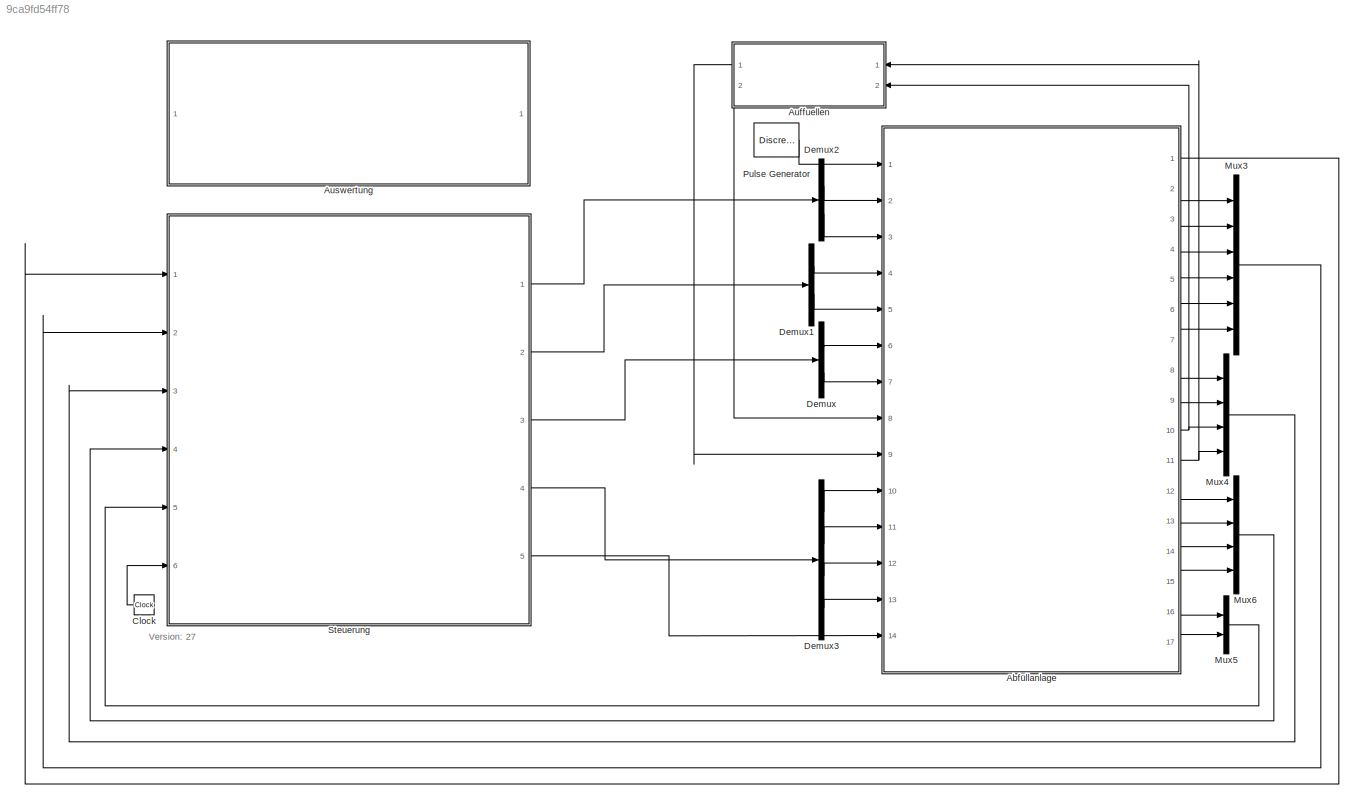
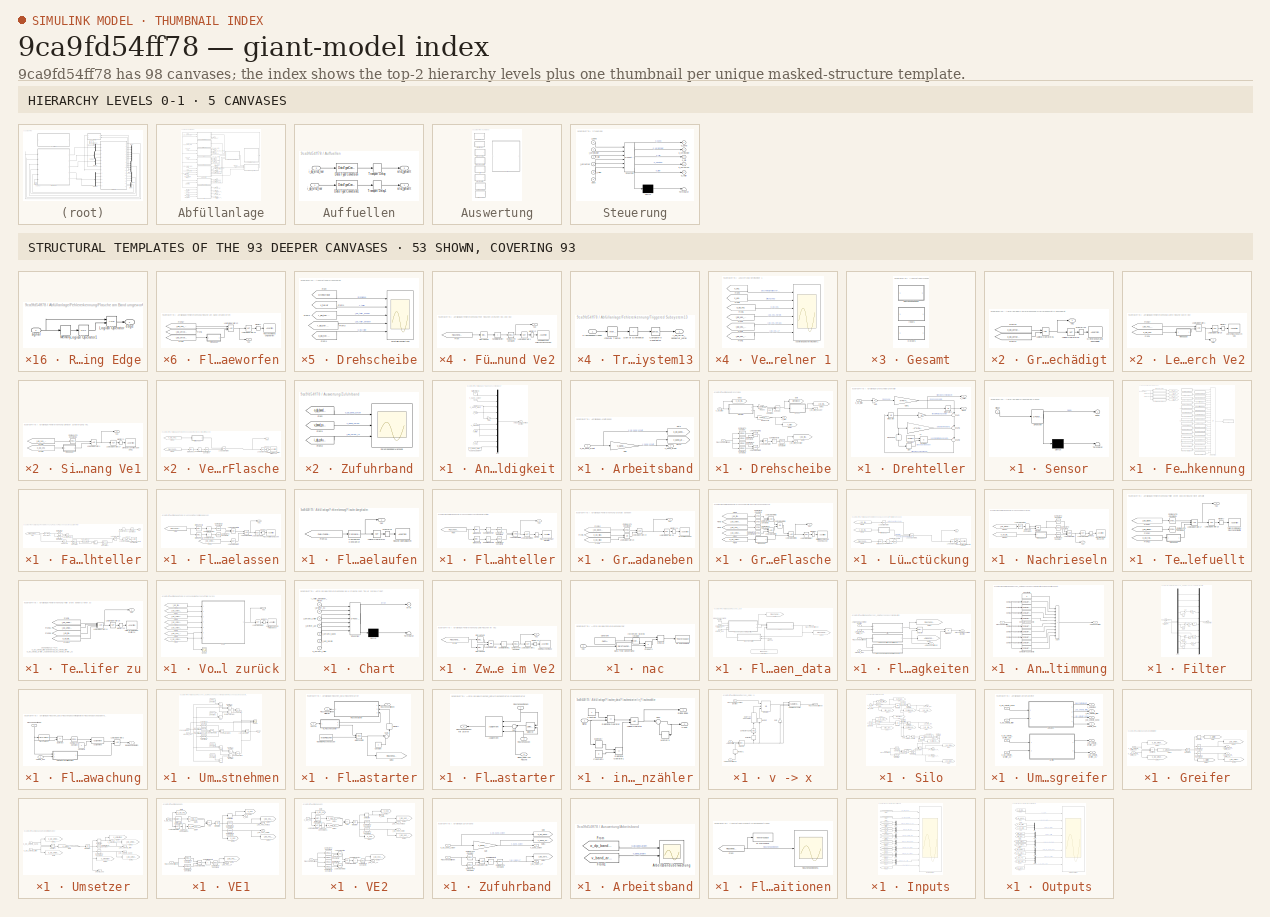
[diagram: thumbnail index - top-2 hierarchy levels (5 canvases) + 53 structural-template representatives of the remaining 93 canvases]
MODEL slx_9ca9fd54ff78
KIND model
CONFIG AbsTol = 10
CONFIG EnableMultiTasking = on
CONFIG FixedStep = 0.01
CONFIG MaxStep = 1
CONFIG MinStep = 0.005
CONFIG RelTol = 1e-3
CONFIG SampleTimeConstraint = Unconstrained
CONFIG SolverName = ode3
CONFIG StartTime = 0.0
CONFIG StopTime = 200
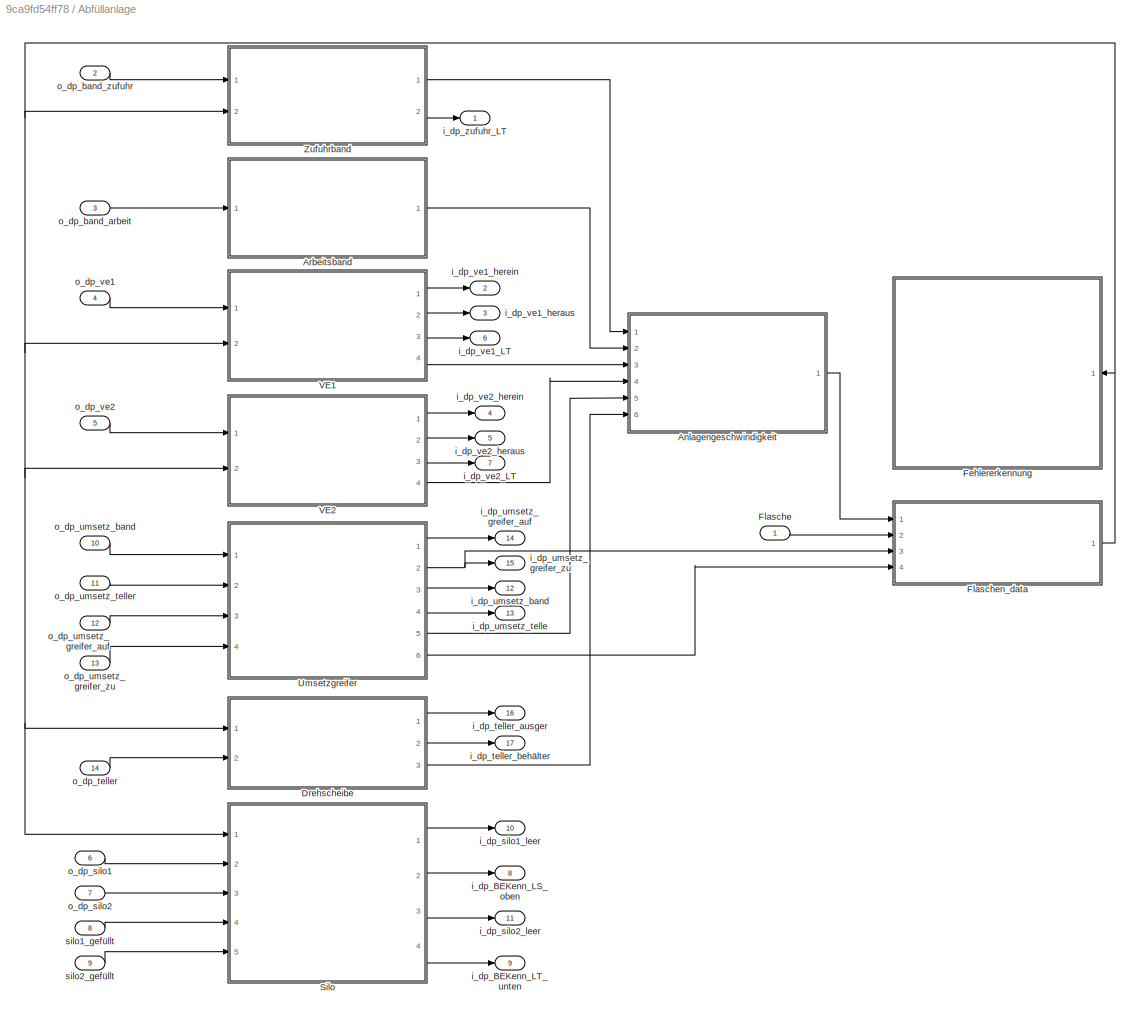
BLOCK [SubSystem] Abfüllanlage
  Ports = [14, 17]
  RequestExecContextInheritance = off
BLOCK [SubSystem] Abfüllanlage/Anlagengeschwindigkeit
  Ports = [6, 1]
  RequestExecContextInheritance = off
BLOCK [Outport] Abfüllanlage/Anlagengeschwindigkeit/Anlagengeschwindigkeiten
BLOCK [Gain] Abfüllanlage/Anlagengeschwindigkeit/Gain
  Gain = 3
  OutDataTypeStr = Inherit: Same as input
  ParamDataTypeStr = Inherit: Same as input
  SaturateOnIntegerOverflow = on
BLOCK [Mux] Abfüllanlage/Anlagengeschwindigkeit/Mux
  DisplayOption = bar
  Inputs = 10
  Ports = [10, 1]
BLOCK [Constant] Abfüllanlage/Anlagengeschwindigkeit/Wartestellung
  Value = 0
BLOCK [Constant] Abfüllanlage/Anlagengeschwindigkeit/v_band_abfuhr
  Value = v_band_abfuhr_set
BLOCK [Inport] Abfüllanlage/Anlagengeschwindigkeit/v_band_arbeit
  Port = 2
BLOCK [Inport] Abfüllanlage/Anlagengeschwindigkeit/v_band_zufuhr
BLOCK [Inport] Abfüllanlage/Anlagengeschwindigkeit/v_teller
  Port = 6
BLOCK [Inport] Abfüllanlage/Anlagengeschwindigkeit/v_umsetzer
  Port = 5
BLOCK [Inport] Abfüllanlage/Anlagengeschwindigkeit/v_ve1
  Port = 3
BLOCK [Inport] Abfüllanlage/Anlagengeschwindigkeit/v_ve2
  Port = 4
BLOCK [SubSystem] Abfüllanlage/Arbeitsband
  Ports = [1, 1]
  RequestExecContextInheritance = off
BLOCK [Gain] Abfüllanlage/Arbeitsband/Gain
  Gain = v_band_arbeit_set
  OutDataTypeStr = Inherit: Inherit via back propagation
  ParamDataTypeStr = Inherit: Same as input
  SaturateOnIntegerOverflow = on
BLOCK [Goto] Abfüllanlage/Arbeitsband/Goto
  GotoTag = o_dp_band_arbeit
  TagVisibility = global
BLOCK [Goto] Abfüllanlage/Arbeitsband/Goto1
  GotoTag = v_band_arbeit
  TagVisibility = global
BLOCK [Inport] Abfüllanlage/Arbeitsband/o_dp_band_arbeit
BLOCK [Outport] Abfüllanlage/Arbeitsband/v_band_arbeit
  OutDataTypeStr = double
BLOCK [SubSystem] Abfüllanlage/Drehscheibe
  Ports = [2, 3]
  RequestExecContextInheritance = off
BLOCK [Reference] Abfüllanlage/Drehscheibe/Cmpare To Constant4  REF=simulink/Logic and Bit
Operations/Compare
To Constant
  Ports = [1, 1]
  SourceBlock = simulink/Logic and Bit\nOperations/Compare\nTo Constant
  SourceProductBaseCode = SL
  SourceType = Compare To Constant
BLOCK [Reference] Abfüllanlage/Drehscheibe/Compare To Constant  REF=simulink/Logic and Bit
Operations/Compare
To Constant
  Ports = [1, 1]
  SourceBlock = simulink/Logic and Bit\nOperations/Compare\nTo Constant
  SourceProductBaseCode = SL
  SourceType = Compare To Constant
BLOCK [Reference] Abfüllanlage/Drehscheibe/Compare To Constant1  REF=simulink/Logic and Bit
Operations/Compare
To Constant
  Ports = [1, 1]
  SourceBlock = simulink/Logic and Bit\nOperations/Compare\nTo Constant
  SourceProductBaseCode = SL
  SourceType = Compare To Constant
BLOCK [Reference] Abfüllanlage/Drehscheibe/Compare To Constant2  REF=simulink/Logic and Bit
Operations/Compare
To Constant
  Ports = [1, 1]
  SourceBlock = simulink/Logic and Bit\nOperations/Compare\nTo Constant
  SourceProductBaseCode = SL
  SourceType = Compare To Constant
BLOCK [Reference] Abfüllanlage/Drehscheibe/Compare To Constant3  REF=simulink/Logic and Bit
Operations/Compare
To Constant
  Ports = [1, 1]
  SourceBlock = simulink/Logic and Bit\nOperations/Compare\nTo Constant
  SourceProductBaseCode = SL
  SourceType = Compare To Constant
BLOCK [Constant] Abfüllanlage/Drehscheibe/Constant
  Value = 360
BLOCK [SubSystem] Abfüllanlage/Drehscheibe/Drehteller
  Ports = [1, 2]
  RequestExecContextInheritance = off
BLOCK [Gain] Abfüllanlage/Drehscheibe/Drehteller/A
  Gain = -A/I
  OutDataTypeStr = Inherit: Same as input
  ParamDataTypeStr = Inherit: Same as input
  SaturateOnIntegerOverflow = on
BLOCK [Gain] Abfüllanlage/Drehscheibe/Drehteller/A1
  Gain = -K^2*PHI^2*igetr^2/Ra/I
  OutDataTypeStr = Inherit: Same as input
  ParamDataTypeStr = Inherit: Same as input
  SaturateOnIntegerOverflow = on
BLOCK [Constant] Abfüllanlage/Drehscheibe/Drehteller/Constant
  Value = -MRK/I
BLOCK [DeadZone] Abfüllanlage/Drehscheibe/Drehteller/Dead Zone
  NameLocation = right
BLOCK [Gain] Abfüllanlage/Drehscheibe/Drehteller/Gain
  Gain = U
  SaturateOnIntegerOverflow = on
BLOCK [Gain] Abfüllanlage/Drehscheibe/Drehteller/Gain1
  Gain = K*PHI*igetr/Ra/I
  OutDataTypeStr = Inherit: Same as input
  ParamDataTypeStr = Inherit: Same as input
  SaturateOnIntegerOverflow = on
BLOCK [Integrator] Abfüllanlage/Drehscheibe/Drehteller/Integrator
  Ports = [1, 1]
BLOCK [Integrator] Abfüllanlage/Drehscheibe/Drehteller/Integrator1
  Ports = [1, 1]
BLOCK [Product] Abfüllanlage/Drehscheibe/Drehteller/Product
  OutDataTypeStr = Inherit: Same as first input
  Ports = [2, 1]
  SaturateOnIntegerOverflow = on
BLOCK [Signum] Abfüllanlage/Drehscheibe/Drehteller/Sign
  ZeroCross = off
BLOCK [Sum] Abfüllanlage/Drehscheibe/Drehteller/Sum
  Inputs = ++|
  NameLocation = left
  Ports = [2, 1]
  SaturateOnIntegerOverflow = on
BLOCK [Sum] Abfüllanlage/Drehscheibe/Drehteller/Sum1
  Inputs = ++|
  NameLocation = left
  Ports = [2, 1]
  SaturateOnIntegerOverflow = on
BLOCK [Sum] Abfüllanlage/Drehscheibe/Drehteller/Sum2
  Inputs = ++|
  NameLocation = left
  Ports = [2, 1]
  SaturateOnIntegerOverflow = on
BLOCK [Outport] Abfüllanlage/Drehscheibe/Drehteller/alpha
  OutDataTypeStr = double
BLOCK [Inport] Abfüllanlage/Drehscheibe/Drehteller/o_dp_teller
BLOCK [Outport] Abfüllanlage/Drehscheibe/Drehteller/v_Teller'
  OutDataTypeStr = double
  Port = 2
BLOCK [Inport] Abfüllanlage/Drehscheibe/Flaschenpositionen
BLOCK [Goto] Abfüllanlage/Drehscheibe/Goto
  GotoTag = Drehwinkel
  TagVisibility = global
BLOCK [Goto] Abfüllanlage/Drehscheibe/Goto1
  GotoTag = v_teller
  TagVisibility = global
BLOCK [Goto] Abfüllanlage/Drehscheibe/Goto2
  GotoTag = i_dp_teller_ausger
  TagVisibility = global
BLOCK [Goto] Abfüllanlage/Drehscheibe/Goto3
  GotoTag = o_dp_teller
  TagVisibility = global
BLOCK [Goto] Abfüllanlage/Drehscheibe/Goto4
  GotoTag = i_dp_teller_behaelter
  TagVisibility = global
BLOCK [Logic] Abfüllanlage/Drehscheibe/Logical Operator
  AllPortsSameDT = off
  Operator = OR
  OutDataTypeStr = boolean
  Ports = [2, 1]
BLOCK [Logic] Abfüllanlage/Drehscheibe/Logical Operator1
  AllPortsSameDT = off
  OutDataTypeStr = boolean
  Ports = [2, 1]
BLOCK [Logic] Abfüllanlage/Drehscheibe/Logical Operator2
  AllPortsSameDT = off
  OutDataTypeStr = boolean
  Ports = [2, 1]
BLOCK [Gain] Abfüllanlage/Drehscheibe/Rad zu °
  Gain = 180/pi
  OutDataTypeStr = Inherit: Same as input
  ParamDataTypeStr = Inherit: Same as input
  SaturateOnIntegerOverflow = on
BLOCK [Gain] Abfüllanlage/Drehscheibe/Rad//s zu %//s
  Gain = 100/(2*pi)
  OutDataTypeStr = Inherit: Same as input
  ParamDataTypeStr = Inherit: Same as input
  SaturateOnIntegerOverflow = on
BLOCK [SubSystem] Abfüllanlage/Drehscheibe/Sensor
  ErrorFcn = Stateflow.Translate.translate
  PermitHierarchicalResolution = ExplicitOnly
  Ports = [1, 1]
  RequestExecContextInheritance = off
  SFBlockType = Chart
  TreatAsAtomicUnit = on
BLOCK [Demux] Abfüllanlage/Drehscheibe/Sensor/ Demux 
  Outputs = 1
  Ports = [1, 1]
BLOCK [S-Function] Abfüllanlage/Drehscheibe/Sensor/ SFunction 
  EnableBusSupport = on
  FunctionName = sf_sfun
  PortCounts = [1 2]
  Ports = [1, 2]
  SFcnIsStateOwnerBlock = off
  SFunctionDeploymentMode = off
  Tag = Stateflow S-Function 1
BLOCK [Terminator] Abfüllanlage/Drehscheibe/Sensor/ Terminator 
BLOCK [Outport] Abfüllanlage/Drehscheibe/Sensor/beep
BLOCK [Inport] Abfüllanlage/Drehscheibe/Sensor/winkel
BLOCK [Sum] Abfüllanlage/Drehscheibe/Sum of Elements
  IconShape = rectangular
  Inputs = +
  Ports = [1, 1]
BLOCK [Outport] Abfüllanlage/Drehscheibe/i_dp_teller_ausger
  OutDataTypeStr = boolean
BLOCK [Outport] Abfüllanlage/Drehscheibe/i_dp_teller_behälter
  OutDataTypeStr = boolean
  Port = 2
BLOCK [Inport] Abfüllanlage/Drehscheibe/o_dp_teller
  Port = 2
BLOCK [Math] Abfüllanlage/Drehscheibe/phi < 360°
  Operator = mod
  Ports = [2, 1]
  SignedPower = on
BLOCK [Outport] Abfüllanlage/Drehscheibe/v_teller
  OutDataTypeStr = double
  Port = 3
BLOCK [SubSystem] Abfüllanlage/Fehlererkennung
  Ports = [1]
  RequestExecContextInheritance = off
BLOCK [SubSystem] Abfüllanlage/Fehlererkennung/Falscher Flaschenabstand auf Drehteller
  Ports = [0, 1]
  RequestExecContextInheritance = off
BLOCK [Reference] Abfüllanlage/Fehlererkennung/Falscher Flaschenabstand auf Drehteller/CompareTo Constant10  REF=simulink/Logic and Bit
Operations/Compare
To Constant
  Ports = [1, 1]
  SourceBlock = simulink/Logic and Bit\nOperations/Compare\nTo Constant
  SourceProductBaseCode = SL
  SourceType = Compare To Constant
BLOCK [Reference] Abfüllanlage/Fehlererkennung/Falscher Flaschenabstand auf Drehteller/CompareTo Constant16  REF=simulink/Logic and Bit
Operations/Compare
To Constant
  Ports = [1, 1]
  SourceBlock = simulink/Logic and Bit\nOperations/Compare\nTo Constant
  SourceProductBaseCode = SL
  SourceType = Compare To Constant
BLOCK [Reference] Abfüllanlage/Fehlererkennung/Falscher Flaschenabstand auf Drehteller/CompareTo Constant9  REF=simulink/Logic and Bit
Operations/Compare
To Constant
  Ports = [1, 1]
  SourceBlock = simulink/Logic and Bit\nOperations/Compare\nTo Constant
  SourceProductBaseCode = SL
  SourceType = Compare To Constant
BLOCK [DataTypeConversion] Abfüllanlage/Fehlererkennung/Falscher Flaschenabstand auf Drehteller/Data Type Conversion
  NameLocation = top
  OutDataTypeStr = double
  RndMeth = Floor
  SaturateOnIntegerOverflow = off
BLOCK [DataTypeConversion] Abfüllanlage/Fehlererkennung/Falscher Flaschenabstand auf Drehteller/Data Type Conversion1
  OutDataTypeStr = boolean
  RndMeth = Floor
  SaturateOnIntegerOverflow = off
BLOCK [Assertion] Abfüllanlage/Fehlererkennung/Falscher Flaschenabstand auf Drehteller/Falscher Flaschenabstand auf Drehteller
BLOCK [From] Abfüllanlage/Fehlererkennung/Falscher Flaschenabstand auf Drehteller/From
  CloseFcn = tagdialog Close
  GotoTag = Flaschenpositionen
  TagVisibility = global
BLOCK [Reference] Abfüllanlage/Fehlererkennung/Falscher Flaschenabstand auf Drehteller/Interval Test9  REF=simulink/Logic and Bit
Operations/Interval Test
  Ports = [1, 1]
  SourceBlock = simulink/Logic and Bit\nOperations/Interval Test
  SourceProductBaseCode = SL
  SourceType = Interval Test
BLOCK [Logic] Abfüllanlage/Fehlererkennung/Falscher Flaschenabstand auf Drehteller/Logical Operator11
  AllPortsSameDT = off
  Operator = OR
  OutDataTypeStr = boolean
  Ports = [2, 1]
BLOCK [Logic] Abfüllanlage/Fehlererkennung/Falscher Flaschenabstand auf Drehteller/Logical Operator12
  AllPortsSameDT = off
  OutDataTypeStr = boolean
  Ports = [2, 1]
BLOCK [Logic] Abfüllanlage/Fehlererkennung/Falscher Flaschenabstand auf Drehteller/Logical Operator13
  AllPortsSameDT = off
  Operator = NOT
  OutDataTypeStr = boolean
  Ports = [1, 1]
BLOCK [MATLABFcn] Abfüllanlage/Fehlererkennung/Falscher Flaschenabstand auf Drehteller/MATLAB Fcn
  MATLABFcn = circshift(u, 1)-u
  Ports = [1, 1]
BLOCK [MATLABFcn] Abfüllanlage/Fehlererkennung/Falscher Flaschenabstand auf Drehteller/MATLAB Fcn1
  MATLABFcn = circshift(u, 1)
  Ports = [1, 1]
BLOCK [Memory] Abfüllanlage/Fehlererkennung/Falscher Flaschenabstand auf Drehteller/Memory7
  InitialCondition = 1
BLOCK [Product] Abfüllanlage/Fehlererkennung/Falscher Flaschenabstand auf Drehteller/Product
  Ports = [2, 1]
  RndMeth = Zero
BLOCK [Sum] Abfüllanlage/Fehlererkennung/Falscher Flaschenabstand auf Drehteller/Sum of Elements12
  IconShape = rectangular
  Inputs = +
  Ports = [1, 1]
BLOCK [Outport] Abfüllanlage/Fehlererkennung/Falscher Flaschenabstand auf Drehteller/nac
BLOCK [SubSystem] Abfüllanlage/Fehlererkennung/Flasche am Band umgeworfen
  Ports = [0, 1]
  RequestExecContextInheritance = off
BLOCK [Assertion] Abfüllanlage/Fehlererkennung/Flasche am Band umgeworfen/Flasche am Band umgeworfen
BLOCK [From] Abfüllanlage/Fehlererkennung/Flasche am Band umgeworfen/From1
  CloseFcn = tagdialog Close
  GotoTag = i_dp_umsetz_greifer_zu
  TagVisibility = global
BLOCK [From] Abfüllanlage/Fehlererkennung/Flasche am Band umgeworfen/From17
  CloseFcn = tagdialog Close
  GotoTag = i_dp_ve2_LT_vorne
  TagVisibility = global
BLOCK [From] Abfüllanlage/Fehlererkennung/Flasche am Band umgeworfen/From2
  CloseFcn = tagdialog Close
  GotoTag = i_dp_umsetz_band
  TagVisibility = global
BLOCK [Logic] Abfüllanlage/Fehlererkennung/Flasche am Band umgeworfen/Logical Operator12
  AllPortsSameDT = off
  Inputs = 3
  OutDataTypeStr = boolean
  Ports = [3, 1]
BLOCK [Logic] Abfüllanlage/Fehlererkennung/Flasche am Band umgeworfen/Logical Operator15
  AllPortsSameDT = off
  Operator = NOT
  OutDataTypeStr = boolean
  Ports = [1, 1]
BLOCK [Memory] Abfüllanlage/Fehlererkennung/Flasche am Band umgeworfen/Memory
  InheritSampleTime = on
  InitialCondition = 1
BLOCK [SubSystem] Abfüllanlage/Fehlererkennung/Flasche am Band umgeworfen/Rising Edge
  Ports = [1, 1]
  RequestExecContextInheritance = off
BLOCK [Logic] Abfüllanlage/Fehlererkennung/Flasche am Band umgeworfen/Rising Edge/Logical Operator
  AllPortsSameDT = off
  OutDataTypeStr = boolean
  Ports = [2, 1]
BLOCK [Logic] Abfüllanlage/Fehlererkennung/Flasche am Band umgeworfen/Rising Edge/Logical Operator1
  AllPortsSameDT = off
  Operator = NOT
  OutDataTypeStr = boolean
  Ports = [1, 1]
BLOCK [Memory] Abfüllanlage/Fehlererkennung/Flasche am Band umgeworfen/Rising Edge/Memory
BLOCK [Outport] Abfüllanlage/Fehlererkennung/Flasche am Band umgeworfen/Rising Edge/edge
BLOCK [Inport] Abfüllanlage/Fehlererkennung/Flasche am Band umgeworfen/Rising Edge/signal
BLOCK [Outport] Abfüllanlage/Fehlererkennung/Flasche am Band umgeworfen/nac
BLOCK [SubSystem] Abfüllanlage/Fehlererkennung/Flasche am Teller umgeworfen
  Ports = [0, 1]
  RequestExecContextInheritance = off
BLOCK [Assertion] Abfüllanlage/Fehlererkennung/Flasche am Teller umgeworfen/Flasche am Teller umgeworfen
BLOCK [From] Abfüllanlage/Fehlererkennung/Flasche am Teller umgeworfen/From1
  CloseFcn = tagdialog Close
  GotoTag = i_dp_umsetz_greifer_zu
  TagVisibility = global
BLOCK [From] Abfüllanlage/Fehlererkennung/Flasche am Teller umgeworfen/From19
  CloseFcn = tagdialog Close
  GotoTag = i_dp_teller_behaelter_hinten
  TagVisibility = global
BLOCK [From] Abfüllanlage/Fehlererkennung/Flasche am Teller umgeworfen/From3
  CloseFcn = tagdialog Close
  GotoTag = i_dp_umsetz_teller
  TagVisibility = global
BLOCK [Logic] Abfüllanlage/Fehlererkennung/Flasche am Teller umgeworfen/Logical Operator1
  AllPortsSameDT = off
  Inputs = 3
  OutDataTypeStr = boolean
  Ports = [3, 1]
BLOCK [Logic] Abfüllanlage/Fehlererkennung/Flasche am Teller umgeworfen/Logical Operator2
  AllPortsSameDT = off
  Operator = NOT
  OutDataTypeStr = boolean
  Ports = [1, 1]
BLOCK [Memory] Abfüllanlage/Fehlererkennung/Flasche am Teller umgeworfen/Memory1
  InheritSampleTime = on
  InitialCondition = 1
BLOCK [SubSystem] Abfüllanlage/Fehlererkennung/Flasche am Teller umgeworfen/Rising Edge
  Ports = [1, 1]
  RequestExecContextInheritance = off
BLOCK [Logic] Abfüllanlage/Fehlererkennung/Flasche am Teller umgeworfen/Rising Edge/Logical Operator
  AllPortsSameDT = off
  OutDataTypeStr = boolean
  Ports = [2, 1]
BLOCK [Logic] Abfüllanlage/Fehlererkennung/Flasche am Teller umgeworfen/Rising Edge/Logical Operator1
  AllPortsSameDT = off
  Operator = NOT
  OutDataTypeStr = boolean
  Ports = [1, 1]
BLOCK [Memory] Abfüllanlage/Fehlererkennung/Flasche am Teller umgeworfen/Rising Edge/Memory
BLOCK [Outport] Abfüllanlage/Fehlererkennung/Flasche am Teller umgeworfen/Rising Edge/edge
BLOCK [Inport] Abfüllanlage/Fehlererkennung/Flasche am Teller umgeworfen/Rising Edge/signal
BLOCK [Outport] Abfüllanlage/Fehlererkennung/Flasche am Teller umgeworfen/nac
BLOCK [SubSystem] Abfüllanlage/Fehlererkennung/Flasche fallen gelassen
  Ports = [0, 1]
  RequestExecContextInheritance = off
BLOCK [Reference] Abfüllanlage/Fehlererkennung/Flasche fallen gelassen/CompareTo Constant5  REF=simulink/Logic and Bit
Operations/Compare
To Constant
  Ports = [1, 1]
  SourceBlock = simulink/Logic and Bit\nOperations/Compare\nTo Constant
  SourceProductBaseCode = SL
  SourceType = Compare To Constant
BLOCK [Reference] Abfüllanlage/Fehlererkennung/Flasche fallen gelassen/CompareTo Constant6  REF=simulink/Logic and Bit
Operations/Compare
To Constant
  Ports = [1, 1]
  SourceBlock = simulink/Logic and Bit\nOperations/Compare\nTo Constant
  SourceProductBaseCode = SL
  SourceType = Compare To Constant
BLOCK [Assertion] Abfüllanlage/Fehlererkennung/Flasche fallen gelassen/Flasche fallen gelassen
BLOCK [From] Abfüllanlage/Fehlererkennung/Flasche fallen gelassen/From
  CloseFcn = tagdialog Close
  GotoTag = Flaschenpositionen
  TagVisibility = global
BLOCK [From] Abfüllanlage/Fehlererkennung/Flasche fallen gelassen/From1
  CloseFcn = tagdialog Close
  GotoTag = i_dp_umsetz_greifer_zu
  TagVisibility = global
BLOCK [Reference] Abfüllanlage/Fehlererkennung/Flasche fallen gelassen/Interval Test5  REF=simulink/Logic and Bit
Operations/Interval Test
  Ports = [1, 1]
  SourceBlock = simulink/Logic and Bit\nOperations/Interval Test
  SourceProductBaseCode = SL
  SourceType = Interval Test
BLOCK [Reference] Abfüllanlage/Fehlererkennung/Flasche fallen gelassen/Interval Test6  REF=simulink/Logic and Bit
Operations/Interval Test
  Ports = [1, 1]
  SourceBlock = simulink/Logic and Bit\nOperations/Interval Test
  SourceProductBaseCode = SL
  SourceType = Interval Test
BLOCK [Logic] Abfüllanlage/Fehlererkennung/Flasche fallen gelassen/Logical Operator5
  AllPortsSameDT = off
  Operator = NOT
  OutDataTypeStr = boolean
  Ports = [1, 1]
BLOCK [Logic] Abfüllanlage/Fehlererkennung/Flasche fallen gelassen/Logical Operator6
  AllPortsSameDT = off
  OutDataTypeStr = boolean
  Ports = [2, 1]
BLOCK [Logic] Abfüllanlage/Fehlererkennung/Flasche fallen gelassen/Logical Operator7
  AllPortsSameDT = off
  Operator = NOT
  OutDataTypeStr = boolean
  Ports = [1, 1]
BLOCK [Logic] Abfüllanlage/Fehlererkennung/Flasche fallen gelassen/Logical Operator8
  AllPortsSameDT = off
  Operator = OR
  OutDataTypeStr = boolean
  Ports = [2, 1]
BLOCK [Memory] Abfüllanlage/Fehlererkennung/Flasche fallen gelassen/Memory1
  InitialCondition = 1
BLOCK [Sum] Abfüllanlage/Fehlererkennung/Flasche fallen gelassen/Sum of Elements5
  IconShape = rectangular
  Inputs = +
  Ports = [1, 1]
BLOCK [Sum] Abfüllanlage/Fehlererkennung/Flasche fallen gelassen/Sum of Elements6
  IconShape = rectangular
  Inputs = +
  Ports = [1, 1]
BLOCK [Outport] Abfüllanlage/Fehlererkennung/Flasche fallen gelassen/nac
BLOCK [SubSystem] Abfüllanlage/Fehlererkennung/Flasche trifft Greifer am Band
  Ports = [0, 1]
  RequestExecContextInheritance = off
BLOCK [Assertion] Abfüllanlage/Fehlererkennung/Flasche trifft Greifer am Band/Flasche triff Greifer am Band
BLOCK [From] Abfüllanlage/Fehlererkennung/Flasche trifft Greifer am Band/From1
  CloseFcn = tagdialog Close
  GotoTag = i_dp_umsetz_greifer_zu
  TagVisibility = global
BLOCK [From] Abfüllanlage/Fehlererkennung/Flasche trifft Greifer am Band/From17
  CloseFcn = tagdialog Close
  GotoTag = i_dp_ve2_LT_vorne
  TagVisibility = global
BLOCK [From] Abfüllanlage/Fehlererkennung/Flasche trifft Greifer am Band/From2
  CloseFcn = tagdialog Close
  GotoTag = i_dp_umsetz_band
  TagVisibility = global
BLOCK [Logic] Abfüllanlage/Fehlererkennung/Flasche trifft Greifer am Band/Logical Operator12
  AllPortsSameDT = off
  Inputs = 3
  OutDataTypeStr = boolean
  Ports = [3, 1]
BLOCK [Logic] Abfüllanlage/Fehlererkennung/Flasche trifft Greifer am Band/Logical Operator15
  AllPortsSameDT = off
  Operator = NOT
  OutDataTypeStr = boolean
  Ports = [1, 1]
BLOCK [Memory] Abfüllanlage/Fehlererkennung/Flasche trifft Greifer am Band/Memory
  InheritSampleTime = on
  InitialCondition = 1
BLOCK [SubSystem] Abfüllanlage/Fehlererkennung/Flasche trifft Greifer am Band/Rising Edge
  Ports = [1, 1]
  RequestExecContextInheritance = off
BLOCK [Logic] Abfüllanlage/Fehlererkennung/Flasche trifft Greifer am Band/Rising Edge/Logical Operator
  AllPortsSameDT = off
  OutDataTypeStr = boolean
  Ports = [2, 1]
BLOCK [Logic] Abfüllanlage/Fehlererkennung/Flasche trifft Greifer am Band/Rising Edge/Logical Operator1
  AllPortsSameDT = off
  Operator = NOT
  OutDataTypeStr = boolean
  Ports = [1, 1]
BLOCK [Memory] Abfüllanlage/Fehlererkennung/Flasche trifft Greifer am Band/Rising Edge/Memory
BLOCK [Outport] Abfüllanlage/Fehlererkennung/Flasche trifft Greifer am Band/Rising Edge/edge
BLOCK [Inport] Abfüllanlage/Fehlererkennung/Flasche trifft Greifer am Band/Rising Edge/signal
BLOCK [Outport] Abfüllanlage/Fehlererkennung/Flasche trifft Greifer am Band/nac
BLOCK [SubSystem] Abfüllanlage/Fehlererkennung/Flasche trifft Greifer am Teller
  Ports = [0, 1]
  RequestExecContextInheritance = off
BLOCK [Assertion] Abfüllanlage/Fehlererkennung/Flasche trifft Greifer am Teller/Flasche triff Greifer am Teller
BLOCK [From] Abfüllanlage/Fehlererkennung/Flasche trifft Greifer am Teller/From1
  CloseFcn = tagdialog Close
  GotoTag = i_dp_umsetz_greifer_zu
  TagVisibility = global
BLOCK [From] Abfüllanlage/Fehlererkennung/Flasche trifft Greifer am Teller/From19
  CloseFcn = tagdialog Close
  GotoTag = i_dp_teller_behaelter_hinten
  TagVisibility = global
BLOCK [From] Abfüllanlage/Fehlererkennung/Flasche trifft Greifer am Teller/From3
  CloseFcn = tagdialog Close
  GotoTag = i_dp_umsetz_teller
  TagVisibility = global
BLOCK [Logic] Abfüllanlage/Fehlererkennung/Flasche trifft Greifer am Teller/Logical Operator12
  AllPortsSameDT = off
  Inputs = 3
  OutDataTypeStr = boolean
  Ports = [3, 1]
BLOCK [Logic] Abfüllanlage/Fehlererkennung/Flasche trifft Greifer am Teller/Logical Operator15
  AllPortsSameDT = off
  Operator = NOT
  OutDataTypeStr = boolean
  Ports = [1, 1]
BLOCK [Memory] Abfüllanlage/Fehlererkennung/Flasche trifft Greifer am Teller/Memory
  InheritSampleTime = on
  InitialCondition = 1
BLOCK [SubSystem] Abfüllanlage/Fehlererkennung/Flasche trifft Greifer am Teller/Rising Edge
  Ports = [1, 1]
  RequestExecContextInheritance = off
BLOCK [Logic] Abfüllanlage/Fehlererkennung/Flasche trifft Greifer am Teller/Rising Edge/Logical Operator
  AllPortsSameDT = off
  OutDataTypeStr = boolean
  Ports = [2, 1]
BLOCK [Logic] Abfüllanlage/Fehlererkennung/Flasche trifft Greifer am Teller/Rising Edge/Logical Operator1
  AllPortsSameDT = off
  Operator = NOT
  OutDataTypeStr = boolean
  Ports = [1, 1]
BLOCK [Memory] Abfüllanlage/Fehlererkennung/Flasche trifft Greifer am Teller/Rising Edge/Memory
BLOCK [Outport] Abfüllanlage/Fehlererkennung/Flasche trifft Greifer am Teller/Rising Edge/edge
BLOCK [Inport] Abfüllanlage/Fehlererkennung/Flasche trifft Greifer am Teller/Rising Edge/signal
BLOCK [Outport] Abfüllanlage/Fehlererkennung/Flasche trifft Greifer am Teller/nac
BLOCK [SubSystem] Abfüllanlage/Fehlererkennung/Flasche übergelaufen
  Ports = [0, 1]
  RequestExecContextInheritance = off
BLOCK [Reference] Abfüllanlage/Fehlererkennung/Flasche übergelaufen/CompareTo Constant14  REF=simulink/Logic and Bit
Operations/Compare
To Constant
  Ports = [1, 1]
  SourceBlock = simulink/Logic and Bit\nOperations/Compare\nTo Constant
  SourceProductBaseCode = SL
  SourceType = Compare To Constant
BLOCK [Assertion] Abfüllanlage/Fehlererkennung/Flasche übergelaufen/Flasche übergelaufen
BLOCK [From] Abfüllanlage/Fehlererkennung/Flasche übergelaufen/From16
  CloseFcn = tagdialog Close
  GotoTag = Fuellmenge_Flasche
  TagVisibility = global
BLOCK [Logic] Abfüllanlage/Fehlererkennung/Flasche übergelaufen/Logical Operator21
  AllPortsSameDT = off
  Operator = NOT
  OutDataTypeStr = boolean
  Ports = [1, 1]
BLOCK [Memory] Abfüllanlage/Fehlererkennung/Flasche übergelaufen/Memory8
  InitialCondition = 1
BLOCK [Outport] Abfüllanlage/Fehlererkennung/Flasche übergelaufen/nac
BLOCK [Inport] Abfüllanlage/Fehlererkennung/Flaschenpositionen
BLOCK [SubSystem] Abfüllanlage/Fehlererkennung/Flaschenstapel auf Drehteller
  Ports = [0, 1]
  RequestExecContextInheritance = off
BLOCK [Reference] Abfüllanlage/Fehlererkennung/Flaschenstapel auf Drehteller/CompareTo Constant7  REF=simulink/Logic and Bit
Operations/Compare
To Constant
  Ports = [1, 1]
  SourceBlock = simulink/Logic and Bit\nOperations/Compare\nTo Constant
  SourceProductBaseCode = SL
  SourceType = Compare To Constant
BLOCK [Reference] Abfüllanlage/Fehlererkennung/Flaschenstapel auf Drehteller/CompareTo Constant8  REF=simulink/Logic and Bit
Operations/Compare
To Constant
  Ports = [1, 1]
  SourceBlock = simulink/Logic and Bit\nOperations/Compare\nTo Constant
  SourceProductBaseCode = SL
  SourceType = Compare To Constant
BLOCK [Assertion] Abfüllanlage/Fehlererkennung/Flaschenstapel auf Drehteller/Flaschenstapel auf Drehteller
BLOCK [From] Abfüllanlage/Fehlererkennung/Flaschenstapel auf Drehteller/From
  CloseFcn = tagdialog Close
  GotoTag = Flaschenpositionen
  TagVisibility = global
BLOCK [Reference] Abfüllanlage/Fehlererkennung/Flaschenstapel auf Drehteller/Interval Test7  REF=simulink/Logic and Bit
Operations/Interval Test
  Ports = [1, 1]
  SourceBlock = simulink/Logic and Bit\nOperations/Interval Test
  SourceProductBaseCode = SL
  SourceType = Interval Test
BLOCK [Reference] Abfüllanlage/Fehlererkennung/Flaschenstapel auf Drehteller/Interval Test8  REF=simulink/Logic and Bit
Operations/Interval Test
  Ports = [1, 1]
  SourceBlock = simulink/Logic and Bit\nOperations/Interval Test
  SourceProductBaseCode = SL
  SourceType = Interval Test
BLOCK [Logic] Abfüllanlage/Fehlererkennung/Flaschenstapel auf Drehteller/Logical Operator10
  AllPortsSameDT = off
  Operator = NOT
  OutDataTypeStr = boolean
  Ports = [1, 1]
BLOCK [Logic] Abfüllanlage/Fehlererkennung/Flaschenstapel auf Drehteller/Logical Operator9
  AllPortsSameDT = off
  OutDataTypeStr = boolean
  Ports = [2, 1]
BLOCK [Memory] Abfüllanlage/Fehlererkennung/Flaschenstapel auf Drehteller/Memory
  InitialCondition = 1
BLOCK [Sum] Abfüllanlage/Fehlererkennung/Flaschenstapel auf Drehteller/Sum of Elements7
  IconShape = rectangular
  Inputs = +
  Ports = [1, 1]
BLOCK [Sum] Abfüllanlage/Fehlererkennung/Flaschenstapel auf Drehteller/Sum of Elements8
  IconShape = rectangular
  Inputs = +
  Ports = [1, 1]
BLOCK [Outport] Abfüllanlage/Fehlererkennung/Flaschenstapel auf Drehteller/nac
BLOCK [SubSystem] Abfüllanlage/Fehlererkennung/Fünf Flaschen zwischen Ve1 und Ve2
  Ports = [0, 1]
  RequestExecContextInheritance = off
BLOCK [Reference] Abfüllanlage/Fehlererkennung/Fünf Flaschen zwischen Ve1 und Ve2/CompareTo Constant4  REF=simulink/Logic and Bit
Operations/Compare
To Constant
  Ports = [1, 1]
  SourceBlock = simulink/Logic and Bit\nOperations/Compare\nTo Constant
  SourceProductBaseCode = SL
  SourceType = Compare To Constant
BLOCK [From] Abfüllanlage/Fehlererkennung/Fünf Flaschen zwischen Ve1 und Ve2/From
  CloseFcn = tagdialog Close
  GotoTag = Flaschenpositionen
  TagVisibility = global
BLOCK [Assertion] Abfüllanlage/Fehlererkennung/Fünf Flaschen zwischen Ve1 und Ve2/Fuenf Flaschen zwischen VE1 und VE2
BLOCK [Reference] Abfüllanlage/Fehlererkennung/Fünf Flaschen zwischen Ve1 und Ve2/Interval Test4  REF=simulink/Logic and Bit
Operations/Interval Test
  Ports = [1, 1]
  SourceBlock = simulink/Logic and Bit\nOperations/Interval Test
  SourceProductBaseCode = SL
  SourceType = Interval Test
BLOCK [Logic] Abfüllanlage/Fehlererkennung/Fünf Flaschen zwischen Ve1 und Ve2/Logical Operator4
  AllPortsSameDT = off
  Operator = NOT
  OutDataTypeStr = boolean
  Ports = [1, 1]
BLOCK [Memory] Abfüllanlage/Fehlererkennung/Fünf Flaschen zwischen Ve1 und Ve2/Memory2
  InitialCondition = 1
BLOCK [Sum] Abfüllanlage/Fehlererkennung/Fünf Flaschen zwischen Ve1 und Ve2/Sum of Elements4
  IconShape = rectangular
  Inputs = +
  Ports = [1, 1]
BLOCK [Outport] Abfüllanlage/Fehlererkennung/Fünf Flaschen zwischen Ve1 und Ve2/nac
BLOCK [Goto] Abfüllanlage/Fehlererkennung/Goto
  GotoTag = i_dp_ve2_LT_vorne
  TagVisibility = global
BLOCK [Goto] Abfüllanlage/Fehlererkennung/Goto1
  GotoTag = i_dp_teller_behaelter_hinten
  TagVisibility = global
BLOCK [Goto] Abfüllanlage/Fehlererkennung/Goto2
  GotoTag = i_dp_ve2_LT_hinten
  TagVisibility = global
BLOCK [Goto] Abfüllanlage/Fehlererkennung/Goto3
  GotoTag = i_dp_teller_behaelter_vorne
  TagVisibility = global
BLOCK [SubSystem] Abfüllanlage/Fehlererkennung/Granulat daneben
  Ports = [0, 1]
  RequestExecContextInheritance = off
BLOCK [Reference] Abfüllanlage/Fehlererkennung/Granulat daneben/CompareTo Constant13  REF=simulink/Logic and Bit
Operations/Compare
To Constant
  Ports = [1, 1]
  SourceBlock = simulink/Logic and Bit\nOperations/Compare\nTo Constant
  SourceProductBaseCode = SL
  SourceType = Compare To Constant
BLOCK [From] Abfüllanlage/Fehlererkennung/Granulat daneben/From12
  CloseFcn = tagdialog Close
  GotoTag = i_dp_BEKenn_LT_unten
  TagVisibility = global
BLOCK [From] Abfüllanlage/Fehlererkennung/Granulat daneben/From5
  CloseFcn = tagdialog Close
  GotoTag = o_dp_Silo1
  TagVisibility = global
BLOCK [From] Abfüllanlage/Fehlererkennung/Granulat daneben/From6
  CloseFcn = tagdialog Close
  GotoTag = o_dp_Silo2
  TagVisibility = global
BLOCK [Assertion] Abfüllanlage/Fehlererkennung/Granulat daneben/Granulat daneben
BLOCK [Logic] Abfüllanlage/Fehlererkennung/Granulat daneben/Logical Operator18
  AllPortsSameDT = off
  Operator = NOT
  OutDataTypeStr = boolean
  Ports = [1, 1]
BLOCK [Logic] Abfüllanlage/Fehlererkennung/Granulat daneben/Logical Operator19
  AllPortsSameDT = off
  OutDataTypeStr = boolean
  Ports = [2, 1]
BLOCK [Logic] Abfüllanlage/Fehlererkennung/Granulat daneben/Logical Operator20
  AllPortsSameDT = off
  Operator = OR
  OutDataTypeStr = boolean
  Ports = [2, 1]
BLOCK [Memory] Abfüllanlage/Fehlererkennung/Granulat daneben/Memory11
  InitialCondition = 1
BLOCK [Outport] Abfüllanlage/Fehlererkennung/Granulat daneben/nac
BLOCK [SubSystem] Abfüllanlage/Fehlererkennung/Greifer geschlossen ohne Flasche
  Ports = [0, 1]
  RequestExecContextInheritance = off
BLOCK [Reference] Abfüllanlage/Fehlererkennung/Greifer geschlossen ohne Flasche/CompareTo Constant1  REF=simulink/Logic and Bit
Operations/Compare
To Constant
  Ports = [1, 1]
  SourceBlock = simulink/Logic and Bit\nOperations/Compare\nTo Constant
  SourceProductBaseCode = SL
  SourceType = Compare To Constant
BLOCK [Reference] Abfüllanlage/Fehlererkennung/Greifer geschlossen ohne Flasche/CompareTo Constant12  REF=simulink/Logic and Bit
Operations/Compare
To Constant
  Ports = [1, 1]
  SourceBlock = simulink/Logic and Bit\nOperations/Compare\nTo Constant
  SourceProductBaseCode = SL
  SourceType = Compare To Constant
BLOCK [Reference] Abfüllanlage/Fehlererkennung/Greifer geschlossen ohne Flasche/CompareTo Constant2  REF=simulink/Logic and Bit
Operations/Compare
To Constant
  Ports = [1, 1]
  SourceBlock = simulink/Logic and Bit\nOperations/Compare\nTo Constant
  SourceProductBaseCode = SL
  SourceType = Compare To Constant
BLOCK [Reference] Abfüllanlage/Fehlererkennung/Greifer geschlossen ohne Flasche/CompareTo Constant3  REF=simulink/Logic and Bit
Operations/Compare
To Constant
  Ports = [1, 1]
  SourceBlock = simulink/Logic and Bit\nOperations/Compare\nTo Constant
  SourceProductBaseCode = SL
  SourceType = Compare To Constant
BLOCK [From] Abfüllanlage/Fehlererkennung/Greifer geschlossen ohne Flasche/From1
  CloseFcn = tagdialog Close
  GotoTag = i_dp_ve2_LT
  TagVisibility = global
BLOCK [From] Abfüllanlage/Fehlererkennung/Greifer geschlossen ohne Flasche/From2
  CloseFcn = tagdialog Close
  GotoTag = i_dp_teller_behaelter
  TagVisibility = global
BLOCK [From] Abfüllanlage/Fehlererkennung/Greifer geschlossen ohne Flasche/From3
  CloseFcn = tagdialog Close
  GotoTag = i_dp_umsetz_teller
  TagVisibility = global
BLOCK [From] Abfüllanlage/Fehlererkennung/Greifer geschlossen ohne Flasche/From4
  CloseFcn = tagdialog Close
  GotoTag = o_dp_umsetz_greifer_zu
  TagVisibility = global
BLOCK [From] Abfüllanlage/Fehlererkennung/Greifer geschlossen ohne Flasche/From7
  CloseFcn = tagdialog Close
  GotoTag = i_dp_umsetz_band
  TagVisibility = global
BLOCK [Assertion] Abfüllanlage/Fehlererkennung/Greifer geschlossen ohne Flasche/Greifer geschlossen ohne Flasche
BLOCK [Logic] Abfüllanlage/Fehlererkennung/Greifer geschlossen ohne Flasche/Logical Operator1
  AllPortsSameDT = off
  OutDataTypeStr = boolean
  Ports = [2, 1]
BLOCK [Logic] Abfüllanlage/Fehlererkennung/Greifer geschlossen ohne Flasche/Logical Operator17
  AllPortsSameDT = off
  Operator = NOT
  OutDataTypeStr = boolean
  Ports = [1, 1]
BLOCK [Logic] Abfüllanlage/Fehlererkennung/Greifer geschlossen ohne Flasche/Logical Operator2
  AllPortsSameDT = off
  OutDataTypeStr = boolean
  Ports = [2, 1]
BLOCK [Logic] Abfüllanlage/Fehlererkennung/Greifer geschlossen ohne Flasche/Logical Operator3
  AllPortsSameDT = off
  OutDataTypeStr = boolean
  Ports = [2, 1]
BLOCK [Logic] Abfüllanlage/Fehlererkennung/Greifer geschlossen ohne Flasche/Logical Operator4
  AllPortsSameDT = off
  Operator = OR
  OutDataTypeStr = boolean
  Ports = [2, 1]
BLOCK [Memory] Abfüllanlage/Fehlererkennung/Greifer geschlossen ohne Flasche/Memory1
  InheritSampleTime = on
  InitialCondition = 1
BLOCK [SubSystem] Abfüllanlage/Fehlererkennung/Greifer geschlossen ohne Flasche/Rising Edge
  Ports = [1, 1]
  RequestExecContextInheritance = off
BLOCK [Logic] Abfüllanlage/Fehlererkennung/Greifer geschlossen ohne Flasche/Rising Edge/Logical Operator
  AllPortsSameDT = off
  OutDataTypeStr = boolean
  Ports = [2, 1]
BLOCK [Logic] Abfüllanlage/Fehlererkennung/Greifer geschlossen ohne Flasche/Rising Edge/Logical Operator1
  AllPortsSameDT = off
  Operator = NOT
  OutDataTypeStr = boolean
  Ports = [1, 1]
BLOCK [Memory] Abfüllanlage/Fehlererkennung/Greifer geschlossen ohne Flasche/Rising Edge/Memory
BLOCK [Outport] Abfüllanlage/Fehlererkennung/Greifer geschlossen ohne Flasche/Rising Edge/edge
BLOCK [Inport] Abfüllanlage/Fehlererkennung/Greifer geschlossen ohne Flasche/Rising Edge/signal
BLOCK [Outport] Abfüllanlage/Fehlererkennung/Greifer geschlossen ohne Flasche/nac
BLOCK [SubSystem] Abfüllanlage/Fehlererkennung/Greiferpneumatik beschädigt
  Ports = [0, 1]
  RequestExecContextInheritance = off
BLOCK [From] Abfüllanlage/Fehlererkennung/Greiferpneumatik beschädigt/From10
  CloseFcn = tagdialog Close
  GotoTag = o_dp_umsetz_greifer_auf
  TagVisibility = global
BLOCK [From] Abfüllanlage/Fehlererkennung/Greiferpneumatik beschädigt/From11
  CloseFcn = tagdialog Close
  GotoTag = o_dp_umsetz_greifer_zu
  TagVisibility = global
BLOCK [Assertion] Abfüllanlage/Fehlererkennung/Greiferpneumatik beschädigt/Greiferpneumatik beschädigt
BLOCK [Logic] Abfüllanlage/Fehlererkennung/Greiferpneumatik beschädigt/Logical Operator25
  AllPortsSameDT = off
  Operator = NOT
  OutDataTypeStr = boolean
  Ports = [1, 1]
BLOCK [Logic] Abfüllanlage/Fehlererkennung/Greiferpneumatik beschädigt/Logical Operator26
  AllPortsSameDT = off
  OutDataTypeStr = boolean
  Ports = [2, 1]
BLOCK [Memory] Abfüllanlage/Fehlererkennung/Greiferpneumatik beschädigt/Memory10
  InitialCondition = 1
BLOCK [Outport] Abfüllanlage/Fehlererkennung/Greiferpneumatik beschädigt/nac
BLOCK [SubSystem] Abfüllanlage/Fehlererkennung/Leere Flasche durch Ve2
  Ports = [0, 1]
  RequestExecContextInheritance = off
BLOCK [From] Abfüllanlage/Fehlererkennung/Leere Flasche durch Ve2/From17
  CloseFcn = tagdialog Close
  GotoTag = i_dp_ve2_LT_vorne
  TagVisibility = global
BLOCK [From] Abfüllanlage/Fehlererkennung/Leere Flasche durch Ve2/From4
  CloseFcn = tagdialog Close
  GotoTag = o_dp_ve2
  TagVisibility = global
BLOCK [Assertion] Abfüllanlage/Fehlererkennung/Leere Flasche durch Ve2/Leere Flasche durch VE2
BLOCK [Logic] Abfüllanlage/Fehlererkennung/Leere Flasche durch Ve2/Logical Operator1
  AllPortsSameDT = off
  OutDataTypeStr = boolean
  Ports = [2, 1]
BLOCK [Logic] Abfüllanlage/Fehlererkennung/Leere Flasche durch Ve2/Logical Operator15
  AllPortsSameDT = off
  Operator = NOT
  OutDataTypeStr = boolean
  Ports = [1, 1]
BLOCK [Memory] Abfüllanlage/Fehlererkennung/Leere Flasche durch Ve2/Memory
  InheritSampleTime = on
  InitialCondition = 1
BLOCK [SubSystem] Abfüllanlage/Fehlererkennung/Leere Flasche durch Ve2/Rising Edge
  Ports = [1, 1]
  RequestExecContextInheritance = off
BLOCK [Logic] Abfüllanlage/Fehlererkennung/Leere Flasche durch Ve2/Rising Edge/Logical Operator
  AllPortsSameDT = off
  OutDataTypeStr = boolean
  Ports = [2, 1]
BLOCK [Logic] Abfüllanlage/Fehlererkennung/Leere Flasche durch Ve2/Rising Edge/Logical Operator1
  AllPortsSameDT = off
  Operator = NOT
  OutDataTypeStr = boolean
  Ports = [1, 1]
BLOCK [Memory] Abfüllanlage/Fehlererkennung/Leere Flasche durch Ve2/Rising Edge/Memory
BLOCK [Outport] Abfüllanlage/Fehlererkennung/Leere Flasche durch Ve2/Rising Edge/edge
BLOCK [Inport] Abfüllanlage/Fehlererkennung/Leere Flasche durch Ve2/Rising Edge/signal
BLOCK [Outport] Abfüllanlage/Fehlererkennung/Leere Flasche durch Ve2/nac
BLOCK [SubSystem] Abfüllanlage/Fehlererkennung/Leere Flasche zurueck
  Ports = [0, 1]
  RequestExecContextInheritance = off
BLOCK [SubSystem] Abfüllanlage/Fehlererkennung/Leere Flasche zurueck/Falling Edge
  Ports = [1, 1]
  RequestExecContextInheritance = off
BLOCK [Logic] Abfüllanlage/Fehlererkennung/Leere Flasche zurueck/Falling Edge/Logical Operator
  AllPortsSameDT = off
  OutDataTypeStr = boolean
  Ports = [2, 1]
BLOCK [Logic] Abfüllanlage/Fehlererkennung/Leere Flasche zurueck/Falling Edge/Logical Operator2
  AllPortsSameDT = off
  Operator = NOT
  OutDataTypeStr = boolean
  Ports = [1, 1]
BLOCK [Memory] Abfüllanlage/Fehlererkennung/Leere Flasche zurueck/Falling Edge/Memory
BLOCK [Outport] Abfüllanlage/Fehlererkennung/Leere Flasche zurueck/Falling Edge/edge
BLOCK [Inport] Abfüllanlage/Fehlererkennung/Leere Flasche zurueck/Falling Edge/signal
BLOCK [From] Abfüllanlage/Fehlererkennung/Leere Flasche zurueck/From1
  CloseFcn = tagdialog Close
  GotoTag = i_dp_umsetz_greifer_zu
  TagVisibility = global
BLOCK [From] Abfüllanlage/Fehlererkennung/Leere Flasche zurueck/From20
  CloseFcn = tagdialog Close
  GotoTag = i_dp_teller_behaelter_vorne
  TagVisibility = global
BLOCK [From] Abfüllanlage/Fehlererkennung/Leere Flasche zurueck/From3
  CloseFcn = tagdialog Close
  GotoTag = i_dp_umsetz_teller
  TagVisibility = global
BLOCK [Assertion] Abfüllanlage/Fehlererkennung/Leere Flasche zurueck/Leere Flasche zurueck
BLOCK [Logic] Abfüllanlage/Fehlererkennung/Leere Flasche zurueck/Logical Operator12
  AllPortsSameDT = off
  Inputs = 3
  OutDataTypeStr = boolean
  Ports = [3, 1]
BLOCK [Logic] Abfüllanlage/Fehlererkennung/Leere Flasche zurueck/Logical Operator15
  AllPortsSameDT = off
  Operator = NOT
  OutDataTypeStr = boolean
  Ports = [1, 1]
BLOCK [Memory] Abfüllanlage/Fehlererkennung/Leere Flasche zurueck/Memory
  InheritSampleTime = on
  InitialCondition = 1
BLOCK [Outport] Abfüllanlage/Fehlererkennung/Leere Flasche zurueck/nac
BLOCK [Logic] Abfüllanlage/Fehlererkennung/Logical Operator22
  AllPortsSameDT = off
  Inputs = 30
  Operator = OR
  OutDataTypeStr = boolean
  Ports = [30, 1]
BLOCK [SubSystem] Abfüllanlage/Fehlererkennung/Lückenhafte Teller Bestückung
  Ports = [0, 1]
  RequestExecContextInheritance = off
BLOCK [Reference] Abfüllanlage/Fehlererkennung/Lückenhafte Teller Bestückung/Compare To Zero  REF=simulink/Logic and Bit
Operations/Compare
To Zero
  Ports = [1, 1]
  SourceBlock = simulink/Logic and Bit\nOperations/Compare\nTo Zero
  SourceProductBaseCode = SL
  SourceType = Compare To Zero
BLOCK [From] Abfüllanlage/Fehlererkennung/Lückenhafte Teller Bestückung/From1
  CloseFcn = tagdialog Close
  GotoTag = o_dp_teller
  TagVisibility = global
BLOCK [From] Abfüllanlage/Fehlererkennung/Lückenhafte Teller Bestückung/From2
  CloseFcn = tagdialog Close
  GotoTag = Flaschenpositionen
  TagVisibility = global
BLOCK [From] Abfüllanlage/Fehlererkennung/Lückenhafte Teller Bestückung/From3
  CloseFcn = tagdialog Close
  GotoTag = i_dp_teller_behaelter_vorne
  TagVisibility = global
BLOCK [Reference] Abfüllanlage/Fehlererkennung/Lückenhafte Teller Bestückung/Interval Test  REF=simulink/Logic and Bit
Operations/Interval Test
  Ports = [1, 1]
  SourceBlock = simulink/Logic and Bit\nOperations/Interval Test
  SourceProductBaseCode = SL
  SourceType = Interval Test
BLOCK [Logic] Abfüllanlage/Fehlererkennung/Lückenhafte Teller Bestückung/Logical Operator
  AllPortsSameDT = off
  Operator = NOT
  OutDataTypeStr = boolean
  Ports = [1, 1]
BLOCK [Logic] Abfüllanlage/Fehlererkennung/Lückenhafte Teller Bestückung/Logical Operator1
  AllPortsSameDT = off
  Inputs = 3
  OutDataTypeStr = boolean
  Ports = [3, 1]
BLOCK [Logic] Abfüllanlage/Fehlererkennung/Lückenhafte Teller Bestückung/Logical Operator2
  AllPortsSameDT = off
  Operator = NOT
  OutDataTypeStr = boolean
  Ports = [1, 1]
BLOCK [Assertion] Abfüllanlage/Fehlererkennung/Lückenhafte Teller Bestückung/Lückehafte Tellerbestückung
BLOCK [Memory] Abfüllanlage/Fehlererkennung/Lückenhafte Teller Bestückung/Memory2
  InheritSampleTime = on
  InitialCondition = 1
BLOCK [Sum] Abfüllanlage/Fehlererkennung/Lückenhafte Teller Bestückung/Sum of Elements
  IconShape = rectangular
  Inputs = +
  Ports = [1, 1]
BLOCK [Outport] Abfüllanlage/Fehlererkennung/Lückenhafte Teller Bestückung/nac
BLOCK [SubSystem] Abfüllanlage/Fehlererkennung/Lückenhafte Teller Bestückung/rising edge
  Ports = [1, 1]
  RequestExecContextInheritance = off
BLOCK [Inport] Abfüllanlage/Fehlererkennung/Lückenhafte Teller Bestückung/rising edge/In1
BLOCK [Logic] Abfüllanlage/Fehlererkennung/Lückenhafte Teller Bestückung/rising edge/Logical Operator
  AllPortsSameDT = off
  OutDataTypeStr = boolean
  Ports = [2, 1]
BLOCK [Logic] Abfüllanlage/Fehlererkennung/Lückenhafte Teller Bestückung/rising edge/Logical Operator1
  AllPortsSameDT = off
  Operator = NOT
  OutDataTypeStr = boolean
  Ports = [1, 1]
BLOCK [Memory] Abfüllanlage/Fehlererkennung/Lückenhafte Teller Bestückung/rising edge/Memory
BLOCK [Outport] Abfüllanlage/Fehlererkennung/Lückenhafte Teller Bestückung/rising edge/Out1
BLOCK [SubSystem] Abfüllanlage/Fehlererkennung/Nachrieseln
  Ports = [0, 1]
  RequestExecContextInheritance = off
BLOCK [Reference] Abfüllanlage/Fehlererkennung/Nachrieseln/Compare To Constant  REF=simulink/Logic and Bit
Operations/Compare
To Constant
  Ports = [1, 1]
  SourceBlock = simulink/Logic and Bit\nOperations/Compare\nTo Constant
  SourceProductBaseCode = SL
  SourceType = Compare To Constant
BLOCK [Reference] Abfüllanlage/Fehlererkennung/Nachrieseln/Compare To Constant1  REF=simulink/Logic and Bit
Operations/Compare
To Constant
  Ports = [1, 1]
  SourceBlock = simulink/Logic and Bit\nOperations/Compare\nTo Constant
  SourceProductBaseCode = SL
  SourceType = Compare To Constant
BLOCK [Reference] Abfüllanlage/Fehlererkennung/Nachrieseln/Compare To Constant2  REF=simulink/Logic and Bit
Operations/Compare
To Constant
  Ports = [1, 1]
  SourceBlock = simulink/Logic and Bit\nOperations/Compare\nTo Constant
  SourceProductBaseCode = SL
  SourceType = Compare To Constant
BLOCK [DataTypeConversion] Abfüllanlage/Fehlererkennung/Nachrieseln/Data Type Conversion
  RndMeth = Floor
  SaturateOnIntegerOverflow = off
BLOCK [From] Abfüllanlage/Fehlererkennung/Nachrieseln/From12
  CloseFcn = tagdialog Close
  GotoTag = i_dp_BEKenn_LS_oben
  TagVisibility = global
BLOCK [From] Abfüllanlage/Fehlererkennung/Nachrieseln/From13
  CloseFcn = tagdialog Close
  GotoTag = o_dp_teller
  TagVisibility = global
BLOCK [Integrator] Abfüllanlage/Fehlererkennung/Nachrieseln/Integrator
  ExternalReset = rising
  Ports = [2, 1]
BLOCK [Logic] Abfüllanlage/Fehlererkennung/Nachrieseln/Logical Operator
  AllPortsSameDT = off
  Inputs = 3
  OutDataTypeStr = boolean
  Ports = [3, 1]
BLOCK [Logic] Abfüllanlage/Fehlererkennung/Nachrieseln/Logical Operator1
  AllPortsSameDT = off
  Operator = NOT
  OutDataTypeStr = boolean
  Ports = [1, 1]
BLOCK [Logic] Abfüllanlage/Fehlererkennung/Nachrieseln/Logical Operator3
  AllPortsSameDT = off
  Operator = NOT
  OutDataTypeStr = boolean
  Ports = [1, 1]
BLOCK [Memory] Abfüllanlage/Fehlererkennung/Nachrieseln/Memory2
  InheritSampleTime = on
  InitialCondition = 1
BLOCK [Assertion] Abfüllanlage/Fehlererkennung/Nachrieseln/Nachrieselzeit missachtet
BLOCK [SubSystem] Abfüllanlage/Fehlererkennung/Nachrieseln/Rising Edge1
  Ports = [1, 1]
  RequestExecContextInheritance = off
BLOCK [Logic] Abfüllanlage/Fehlererkennung/Nachrieseln/Rising Edge1/Logical Operator
  AllPortsSameDT = off
  OutDataTypeStr = boolean
  Ports = [2, 1]
BLOCK [Logic] Abfüllanlage/Fehlererkennung/Nachrieseln/Rising Edge1/Logical Operator1
  AllPortsSameDT = off
  Operator = NOT
  OutDataTypeStr = boolean
  Ports = [1, 1]
BLOCK [Memory] Abfüllanlage/Fehlererkennung/Nachrieseln/Rising Edge1/Memory
BLOCK [Outport] Abfüllanlage/Fehlererkennung/Nachrieseln/Rising Edge1/edge
BLOCK [Inport] Abfüllanlage/Fehlererkennung/Nachrieseln/Rising Edge1/signal
BLOCK [Outport] Abfüllanlage/Fehlererkennung/Nachrieseln/nac
BLOCK [SubSystem] Abfüllanlage/Fehlererkennung/Sinnloser Schaltvorgang Ve1
  Ports = [0, 1]
  RequestExecContextInheritance = off
BLOCK [Reference] Abfüllanlage/Fehlererkennung/Sinnloser Schaltvorgang Ve1/CompareTo Constant12  REF=simulink/Logic and Bit
Operations/Compare
To Constant
  Ports = [1, 1]
  SourceBlock = simulink/Logic and Bit\nOperations/Compare\nTo Constant
  SourceProductBaseCode = SL
  SourceType = Compare To Constant
BLOCK [From] Abfüllanlage/Fehlererkennung/Sinnloser Schaltvorgang Ve1/From4
  CloseFcn = tagdialog Close
  GotoTag = o_dp_ve1
  TagVisibility = global
BLOCK [From] Abfüllanlage/Fehlererkennung/Sinnloser Schaltvorgang Ve1/From7
  CloseFcn = tagdialog Close
  GotoTag = i_dp_ve1_LT
  TagVisibility = global
BLOCK [Logic] Abfüllanlage/Fehlererkennung/Sinnloser Schaltvorgang Ve1/Logical Operator1
  AllPortsSameDT = off
  OutDataTypeStr = boolean
  Ports = [2, 1]
BLOCK [Logic] Abfüllanlage/Fehlererkennung/Sinnloser Schaltvorgang Ve1/Logical Operator17
  AllPortsSameDT = off
  Operator = NOT
  OutDataTypeStr = boolean
  Ports = [1, 1]
BLOCK [Memory] Abfüllanlage/Fehlererkennung/Sinnloser Schaltvorgang Ve1/Memory1
  InheritSampleTime = on
  InitialCondition = 1
BLOCK [SubSystem] Abfüllanlage/Fehlererkennung/Sinnloser Schaltvorgang Ve1/Rising Edge
  Ports = [1, 1]
  RequestExecContextInheritance = off
BLOCK [Logic] Abfüllanlage/Fehlererkennung/Sinnloser Schaltvorgang Ve1/Rising Edge/Logical Operator
  AllPortsSameDT = off
  OutDataTypeStr = boolean
  Ports = [2, 1]
BLOCK [Logic] Abfüllanlage/Fehlererkennung/Sinnloser Schaltvorgang Ve1/Rising Edge/Logical Operator1
  AllPortsSameDT = off
  Operator = NOT
  OutDataTypeStr = boolean
  Ports = [1, 1]
BLOCK [Memory] Abfüllanlage/Fehlererkennung/Sinnloser Schaltvorgang Ve1/Rising Edge/Memory
BLOCK [Outport] Abfüllanlage/Fehlererkennung/Sinnloser Schaltvorgang Ve1/Rising Edge/edge
BLOCK [Inport] Abfüllanlage/Fehlererkennung/Sinnloser Schaltvorgang Ve1/Rising Edge/signal
BLOCK [Assertion] Abfüllanlage/Fehlererkennung/Sinnloser Schaltvorgang Ve1/Sinnloser Schaltvorgang VE1
BLOCK [Outport] Abfüllanlage/Fehlererkennung/Sinnloser Schaltvorgang Ve1/nac
BLOCK [SubSystem] Abfüllanlage/Fehlererkennung/Sinnloser Schaltvorgang Ve2
  Ports = [0, 1]
  RequestExecContextInheritance = off
BLOCK [Reference] Abfüllanlage/Fehlererkennung/Sinnloser Schaltvorgang Ve2/CompareTo Constant12  REF=simulink/Logic and Bit
Operations/Compare
To Constant
  Ports = [1, 1]
  SourceBlock = simulink/Logic and Bit\nOperations/Compare\nTo Constant
  SourceProductBaseCode = SL
  SourceType = Compare To Constant
BLOCK [From] Abfüllanlage/Fehlererkennung/Sinnloser Schaltvorgang Ve2/From4
  CloseFcn = tagdialog Close
  GotoTag = o_dp_ve2
  TagVisibility = global
BLOCK [From] Abfüllanlage/Fehlererkennung/Sinnloser Schaltvorgang Ve2/From7
  CloseFcn = tagdialog Close
  GotoTag = i_dp_ve2_LT
  TagVisibility = global
BLOCK [Logic] Abfüllanlage/Fehlererkennung/Sinnloser Schaltvorgang Ve2/Logical Operator1
  AllPortsSameDT = off
  OutDataTypeStr = boolean
  Ports = [2, 1]
BLOCK [Logic] Abfüllanlage/Fehlererkennung/Sinnloser Schaltvorgang Ve2/Logical Operator17
  AllPortsSameDT = off
  Operator = NOT
  OutDataTypeStr = boolean
  Ports = [1, 1]
BLOCK [Memory] Abfüllanlage/Fehlererkennung/Sinnloser Schaltvorgang Ve2/Memory1
  InheritSampleTime = on
  InitialCondition = 1
BLOCK [SubSystem] Abfüllanlage/Fehlererkennung/Sinnloser Schaltvorgang Ve2/Rising Edge
  Ports = [1, 1]
  RequestExecContextInheritance = off
BLOCK [Logic] Abfüllanlage/Fehlererkennung/Sinnloser Schaltvorgang Ve2/Rising Edge/Logical Operator
  AllPortsSameDT = off
  OutDataTypeStr = boolean
  Ports = [2, 1]
BLOCK [Logic] Abfüllanlage/Fehlererkennung/Sinnloser Schaltvorgang Ve2/Rising Edge/Logical Operator1
  AllPortsSameDT = off
  Operator = NOT
  OutDataTypeStr = boolean
  Ports = [1, 1]
BLOCK [Memory] Abfüllanlage/Fehlererkennung/Sinnloser Schaltvorgang Ve2/Rising Edge/Memory
BLOCK [Outport] Abfüllanlage/Fehlererkennung/Sinnloser Schaltvorgang Ve2/Rising Edge/edge
BLOCK [Inport] Abfüllanlage/Fehlererkennung/Sinnloser Schaltvorgang Ve2/Rising Edge/signal
BLOCK [Assertion] Abfüllanlage/Fehlererkennung/Sinnloser Schaltvorgang Ve2/Sinnloser Schaltvorgang VE2
BLOCK [Outport] Abfüllanlage/Fehlererkennung/Sinnloser Schaltvorgang Ve2/nac2
BLOCK [SubSystem] Abfüllanlage/Fehlererkennung/Teller dreht obwohl Flasche nicht gefuellt
  Ports = [0, 1]
  RequestExecContextInheritance = off
BLOCK [Reference] Abfüllanlage/Fehlererkennung/Teller dreht obwohl Flasche nicht gefuellt/CompareTo Constant11  REF=simulink/Logic and Bit
Operations/Compare
To Constant
  Ports = [1, 1]
  SourceBlock = simulink/Logic and Bit\nOperations/Compare\nTo Constant
  SourceProductBaseCode = SL
  SourceType = Compare To Constant
BLOCK [Reference] Abfüllanlage/Fehlererkennung/Teller dreht obwohl Flasche nicht gefuellt/CompareTo Constant12  REF=simulink/Logic and Bit
Operations/Compare
To Constant
  Ports = [1, 1]
  SourceBlock = simulink/Logic and Bit\nOperations/Compare\nTo Constant
  SourceProductBaseCode = SL
  SourceType = Compare To Constant
BLOCK [From] Abfüllanlage/Fehlererkennung/Teller dreht obwohl Flasche nicht gefuellt/From12
  CloseFcn = tagdialog Close
  GotoTag = i_dp_BEKenn_LT_unten
  TagVisibility = global
BLOCK [From] Abfüllanlage/Fehlererkennung/Teller dreht obwohl Flasche nicht gefuellt/From13
  CloseFcn = tagdialog Close
  GotoTag = o_dp_teller
  TagVisibility = global
BLOCK [From] Abfüllanlage/Fehlererkennung/Teller dreht obwohl Flasche nicht gefuellt/From14
  CloseFcn = tagdialog Close
  GotoTag = i_dp_BEKenn_LS_oben
  TagVisibility = global
BLOCK [Logic] Abfüllanlage/Fehlererkennung/Teller dreht obwohl Flasche nicht gefuellt/Logical Operator15
  AllPortsSameDT = off
  Operator = NOT
  OutDataTypeStr = boolean
  Ports = [1, 1]
BLOCK [Logic] Abfüllanlage/Fehlererkennung/Teller dreht obwohl Flasche nicht gefuellt/Logical Operator17
  AllPortsSameDT = off
  Inputs = 3
  OutDataTypeStr = boolean
  Ports = [3, 1]
BLOCK [Memory] Abfüllanlage/Fehlererkennung/Teller dreht obwohl Flasche nicht gefuellt/Memory
  InheritSampleTime = on
  InitialCondition = 1
BLOCK [SubSystem] Abfüllanlage/Fehlererkennung/Teller dreht obwohl Flasche nicht gefuellt/Rising Edge
  Ports = [1, 1]
  RequestExecContextInheritance = off
BLOCK [Logic] Abfüllanlage/Fehlererkennung/Teller dreht obwohl Flasche nicht gefuellt/Rising Edge/Logical Operator
  AllPortsSameDT = off
  OutDataTypeStr = boolean
  Ports = [2, 1]
BLOCK [Logic] Abfüllanlage/Fehlererkennung/Teller dreht obwohl Flasche nicht gefuellt/Rising Edge/Logical Operator1
  AllPortsSameDT = off
  Operator = NOT
  OutDataTypeStr = boolean
  Ports = [1, 1]
BLOCK [Memory] Abfüllanlage/Fehlererkennung/Teller dreht obwohl Flasche nicht gefuellt/Rising Edge/Memory
BLOCK [Outport] Abfüllanlage/Fehlererkennung/Teller dreht obwohl Flasche nicht gefuellt/Rising Edge/edge
BLOCK [Inport] Abfüllanlage/Fehlererkennung/Teller dreht obwohl Flasche nicht gefuellt/Rising Edge/signal
BLOCK [Assertion] Abfüllanlage/Fehlererkennung/Teller dreht obwohl Flasche nicht gefuellt/Teller dreht obwohl Flasche nicht gefüllt
BLOCK [Outport] Abfüllanlage/Fehlererkennung/Teller dreht obwohl Flasche nicht gefuellt/nac
BLOCK [SubSystem] Abfüllanlage/Fehlererkennung/Teller dreht obwohl Greifer zu
  Ports = [0, 1]
  RequestExecContextInheritance = off
BLOCK [From] Abfüllanlage/Fehlererkennung/Teller dreht obwohl Greifer zu/From11
  CloseFcn = tagdialog Close
  GotoTag = i_dp_umsetz_greifer_zu
  TagVisibility = global
BLOCK [From] Abfüllanlage/Fehlererkennung/Teller dreht obwohl Greifer zu/From13
  CloseFcn = tagdialog Close
  GotoTag = o_dp_teller
  TagVisibility = global
BLOCK [From] Abfüllanlage/Fehlererkennung/Teller dreht obwohl Greifer zu/From15
  CloseFcn = tagdialog Close
  GotoTag = i_dp_teller_behaelter
  TagVisibility = global
BLOCK [From] Abfüllanlage/Fehlererkennung/Teller dreht obwohl Greifer zu/From9
  CloseFcn = tagdialog Close
  GotoTag = i_dp_umsetz_teller
  TagVisibility = global
BLOCK [Logic] Abfüllanlage/Fehlererkennung/Teller dreht obwohl Greifer zu/Logical Operator14
  AllPortsSameDT = off
  Inputs = 4
  OutDataTypeStr = boolean
  Ports = [4, 1]
BLOCK [Logic] Abfüllanlage/Fehlererkennung/Teller dreht obwohl Greifer zu/Logical Operator15
  AllPortsSameDT = off
  Operator = NOT
  OutDataTypeStr = boolean
  Ports = [1, 1]
BLOCK [Memory] Abfüllanlage/Fehlererkennung/Teller dreht obwohl Greifer zu/Memory12
  InitialCondition = 1
BLOCK [Assertion] Abfüllanlage/Fehlererkennung/Teller dreht obwohl Greifer zu/Teller dreht obwohl Greifer zu
BLOCK [Outport] Abfüllanlage/Fehlererkennung/Teller dreht obwohl Greifer zu/nac
BLOCK [SubSystem] Abfüllanlage/Fehlererkennung/Teller dreht volle Flasche durch
  Ports = [0, 1]
  RequestExecContextInheritance = off
BLOCK [From] Abfüllanlage/Fehlererkennung/Teller dreht volle Flasche durch/From13
  CloseFcn = tagdialog Close
  GotoTag = o_dp_teller
  TagVisibility = global
BLOCK [From] Abfüllanlage/Fehlererkennung/Teller dreht volle Flasche durch/From19
  CloseFcn = tagdialog Close
  GotoTag = i_dp_teller_behaelter_hinten
  TagVisibility = global
BLOCK [Logic] Abfüllanlage/Fehlererkennung/Teller dreht volle Flasche durch/Logical Operator1
  AllPortsSameDT = off
  Operator = NOT
  OutDataTypeStr = boolean
  Ports = [1, 1]
BLOCK [Logic] Abfüllanlage/Fehlererkennung/Teller dreht volle Flasche durch/Logical Operator2
  AllPortsSameDT = off
  OutDataTypeStr = boolean
  Ports = [2, 1]
BLOCK [Memory] Abfüllanlage/Fehlererkennung/Teller dreht volle Flasche durch/Memory1
  InheritSampleTime = on
  InitialCondition = 1
BLOCK [SubSystem] Abfüllanlage/Fehlererkennung/Teller dreht volle Flasche durch/Rising Edge
  Ports = [1, 1]
  RequestExecContextInheritance = off
BLOCK [Logic] Abfüllanlage/Fehlererkennung/Teller dreht volle Flasche durch/Rising Edge/Logical Operator
  AllPortsSameDT = off
  OutDataTypeStr = boolean
  Ports = [2, 1]
BLOCK [Logic] Abfüllanlage/Fehlererkennung/Teller dreht volle Flasche durch/Rising Edge/Logical Operator1
  AllPortsSameDT = off
  Operator = NOT
  OutDataTypeStr = boolean
  Ports = [1, 1]
BLOCK [Memory] Abfüllanlage/Fehlererkennung/Teller dreht volle Flasche durch/Rising Edge/Memory
BLOCK [Outport] Abfüllanlage/Fehlererkennung/Teller dreht volle Flasche durch/Rising Edge/edge
BLOCK [Inport] Abfüllanlage/Fehlererkennung/Teller dreht volle Flasche durch/Rising Edge/signal
BLOCK [Assertion] Abfüllanlage/Fehlererkennung/Teller dreht volle Flasche durch/Teller dreht volle Flasche durch
BLOCK [Outport] Abfüllanlage/Fehlererkennung/Teller dreht volle Flasche durch/nac1
BLOCK [SubSystem] Abfüllanlage/Fehlererkennung/Triggered Subsystem13
  Ports = [1, 1]
  RequestExecContextInheritance = off
  TreatAsAtomicUnit = on
BLOCK [Reference] Abfüllanlage/Fehlererkennung/Triggered Subsystem13/CompareTo Constant11  REF=simulink/Logic and Bit
Operations/Compare
To Constant
  Ports = [1, 1]
  SourceBlock = simulink/Logic and Bit\nOperations/Compare\nTo Constant
  SourceProductBaseCode = SL
  SourceType = Compare To Constant
BLOCK [Inport] Abfüllanlage/Fehlererkennung/Triggered Subsystem13/Flaschenpositionen
BLOCK [Reference] Abfüllanlage/Fehlererkennung/Triggered Subsystem13/Interval Test10  REF=simulink/Logic and Bit
Operations/Interval Test
  Ports = [1, 1]
  SourceBlock = simulink/Logic and Bit\nOperations/Interval Test
  SourceProductBaseCode = SL
  SourceType = Interval Test
BLOCK [Sum] Abfüllanlage/Fehlererkennung/Triggered Subsystem13/Sum of Elements9
  IconShape = rectangular
  Inputs = +
  Ports = [1, 1]
BLOCK [Outport] Abfüllanlage/Fehlererkennung/Triggered Subsystem13/i_dp_teller_behaelter_vorne
BLOCK [SubSystem] Abfüllanlage/Fehlererkennung/Triggered Subsystem14
  Ports = [1, 1]
  RequestExecContextInheritance = off
  TreatAsAtomicUnit = on
BLOCK [Reference] Abfüllanlage/Fehlererkennung/Triggered Subsystem14/CompareTo Constant11  REF=simulink/Logic and Bit
Operations/Compare
To Constant
  Ports = [1, 1]
  SourceBlock = simulink/Logic and Bit\nOperations/Compare\nTo Constant
  SourceProductBaseCode = SL
  SourceType = Compare To Constant
BLOCK [Inport] Abfüllanlage/Fehlererkennung/Triggered Subsystem14/Flaschenpositionen
BLOCK [Reference] Abfüllanlage/Fehlererkennung/Triggered Subsystem14/Interval Test10  REF=simulink/Logic and Bit
Operations/Interval Test
  Ports = [1, 1]
  SourceBlock = simulink/Logic and Bit\nOperations/Interval Test
  SourceProductBaseCode = SL
  SourceType = Interval Test
BLOCK [Sum] Abfüllanlage/Fehlererkennung/Triggered Subsystem14/Sum of Elements9
  IconShape = rectangular
  Inputs = +
  Ports = [1, 1]
BLOCK [Outport] Abfüllanlage/Fehlererkennung/Triggered Subsystem14/i_dp_ve2_LT_vorne
BLOCK [SubSystem] Abfüllanlage/Fehlererkennung/Triggered Subsystem15
  Ports = [1, 1]
  RequestExecContextInheritance = off
  TreatAsAtomicUnit = on
BLOCK [Reference] Abfüllanlage/Fehlererkennung/Triggered Subsystem15/CompareTo Constant11  REF=simulink/Logic and Bit
Operations/Compare
To Constant
  Ports = [1, 1]
  SourceBlock = simulink/Logic and Bit\nOperations/Compare\nTo Constant
  SourceProductBaseCode = SL
  SourceType = Compare To Constant
BLOCK [Inport] Abfüllanlage/Fehlererkennung/Triggered Subsystem15/Flaschenpositionen
BLOCK [Reference] Abfüllanlage/Fehlererkennung/Triggered Subsystem15/Interval Test10  REF=simulink/Logic and Bit
Operations/Interval Test
  Ports = [1, 1]
  SourceBlock = simulink/Logic and Bit\nOperations/Interval Test
  SourceProductBaseCode = SL
  SourceType = Interval Test
BLOCK [Sum] Abfüllanlage/Fehlererkennung/Triggered Subsystem15/Sum of Elements9
  IconShape = rectangular
  Inputs = +
  Ports = [1, 1]
BLOCK [Outport] Abfüllanlage/Fehlererkennung/Triggered Subsystem15/i_dp_teller_behaelter_hinten
BLOCK [SubSystem] Abfüllanlage/Fehlererkennung/Triggered Subsystem16
  Ports = [1, 1]
  RequestExecContextInheritance = off
  TreatAsAtomicUnit = on
BLOCK [Reference] Abfüllanlage/Fehlererkennung/Triggered Subsystem16/CompareTo Constant11  REF=simulink/Logic and Bit
Operations/Compare
To Constant
  Ports = [1, 1]
  SourceBlock = simulink/Logic and Bit\nOperations/Compare\nTo Constant
  SourceProductBaseCode = SL
  SourceType = Compare To Constant
BLOCK [Inport] Abfüllanlage/Fehlererkennung/Triggered Subsystem16/Flaschenpositionen
BLOCK [Reference] Abfüllanlage/Fehlererkennung/Triggered Subsystem16/Interval Test10  REF=simulink/Logic and Bit
Operations/Interval Test
  Ports = [1, 1]
  SourceBlock = simulink/Logic and Bit\nOperations/Interval Test
  SourceProductBaseCode = SL
  SourceType = Interval Test
BLOCK [Sum] Abfüllanlage/Fehlererkennung/Triggered Subsystem16/Sum of Elements9
  IconShape = rectangular
  Inputs = +
  Ports = [1, 1]
BLOCK [Outport] Abfüllanlage/Fehlererkennung/Triggered Subsystem16/i_dp_ve2_LT_hinten
BLOCK [SubSystem] Abfüllanlage/Fehlererkennung/Umsetzerpneumatik beschädigt
  Ports = [0, 1]
  RequestExecContextInheritance = off
BLOCK [From] Abfüllanlage/Fehlererkennung/Umsetzerpneumatik beschädigt/From3
  CloseFcn = tagdialog Close
  GotoTag = o_dp_umsetz_teller
  TagVisibility = global
BLOCK [From] Abfüllanlage/Fehlererkennung/Umsetzerpneumatik beschädigt/From8
  CloseFcn = tagdialog Close
  GotoTag = o_dp_umsetz_band
  TagVisibility = global
BLOCK [Logic] Abfüllanlage/Fehlererkennung/Umsetzerpneumatik beschädigt/Logical Operator23
  AllPortsSameDT = off
  Operator = NOT
  OutDataTypeStr = boolean
  Ports = [1, 1]
BLOCK [Logic] Abfüllanlage/Fehlererkennung/Umsetzerpneumatik beschädigt/Logical Operator24
  AllPortsSameDT = off
  OutDataTypeStr = boolean
  Ports = [2, 1]
BLOCK [Memory] Abfüllanlage/Fehlererkennung/Umsetzerpneumatik beschädigt/Memory9
  InitialCondition = 1
BLOCK [Assertion] Abfüllanlage/Fehlererkennung/Umsetzerpneumatik beschädigt/Umsetzerpneumatik beschädigt
BLOCK [Outport] Abfüllanlage/Fehlererkennung/Umsetzerpneumatik beschädigt/nac
BLOCK [SubSystem] Abfüllanlage/Fehlererkennung/Vereinzeler1 schließt mit Flasche
  Ports = [0, 1]
  RequestExecContextInheritance = off
BLOCK [Reference] Abfüllanlage/Fehlererkennung/Vereinzeler1 schließt mit Flasche/Compare To Constant  REF=simulink/Logic and Bit
Operations/Compare
To Constant
  Ports = [1, 1]
  SourceBlock = simulink/Logic and Bit\nOperations/Compare\nTo Constant
  SourceProductBaseCode = SL
  SourceType = Compare To Constant
BLOCK [From] Abfüllanlage/Fehlererkennung/Vereinzeler1 schließt mit Flasche/From1
  CloseFcn = tagdialog Close
  GotoTag = o_dp_ve1
  TagVisibility = global
BLOCK [From] Abfüllanlage/Fehlererkennung/Vereinzeler1 schließt mit Flasche/From2
  CloseFcn = tagdialog Close
  GotoTag = Flaschenpositionen
  TagVisibility = global
BLOCK [Reference] Abfüllanlage/Fehlererkennung/Vereinzeler1 schließt mit Flasche/Interval Test  REF=simulink/Logic and Bit
Operations/Interval Test
  Ports = [1, 1]
  SourceBlock = simulink/Logic and Bit\nOperations/Interval Test
  SourceProductBaseCode = SL
  SourceType = Interval Test
BLOCK [Logic] Abfüllanlage/Fehlererkennung/Vereinzeler1 schließt mit Flasche/Logical Operator
  AllPortsSameDT = off
  OutDataTypeStr = boolean
  Ports = [2, 1]
BLOCK [Logic] Abfüllanlage/Fehlererkennung/Vereinzeler1 schließt mit Flasche/Logical Operator2
  AllPortsSameDT = off
  Operator = NOT
  OutDataTypeStr = boolean
  Ports = [1, 1]
BLOCK [Memory] Abfüllanlage/Fehlererkennung/Vereinzeler1 schließt mit Flasche/Memory2
  InheritSampleTime = on
  InitialCondition = 1
BLOCK [Sum] Abfüllanlage/Fehlererkennung/Vereinzeler1 schließt mit Flasche/Sum of Elements
  IconShape = rectangular
  Inputs = +
  Ports = [1, 1]
BLOCK [Assertion] Abfüllanlage/Fehlererkennung/Vereinzeler1 schließt mit Flasche/Vereinzeler1 schließt mit Flasche
BLOCK [SubSystem] Abfüllanlage/Fehlererkennung/Vereinzeler1 schließt mit Flasche/falling edge
  Ports = [1, 1]
  RequestExecContextInheritance = off
BLOCK [Inport] Abfüllanlage/Fehlererkennung/Vereinzeler1 schließt mit Flasche/falling edge/In1
BLOCK [Logic] Abfüllanlage/Fehlererkennung/Vereinzeler1 schließt mit Flasche/falling edge/Logical Operator
  AllPortsSameDT = off
  OutDataTypeStr = boolean
  Ports = [2, 1]
BLOCK [Logic] Abfüllanlage/Fehlererkennung/Vereinzeler1 schließt mit Flasche/falling edge/Logical Operator1
  AllPortsSameDT = off
  Operator = NOT
  OutDataTypeStr = boolean
  Ports = [1, 1]
BLOCK [Memory] Abfüllanlage/Fehlererkennung/Vereinzeler1 schließt mit Flasche/falling edge/Memory
BLOCK [Outport] Abfüllanlage/Fehlererkennung/Vereinzeler1 schließt mit Flasche/falling edge/Out1
BLOCK [Outport] Abfüllanlage/Fehlererkennung/Vereinzeler1 schließt mit Flasche/nac
BLOCK [SubSystem] Abfüllanlage/Fehlererkennung/Vereinzeler2 schließt mit Flasche1
  Ports = [0, 1]
  RequestExecContextInheritance = off
BLOCK [Reference] Abfüllanlage/Fehlererkennung/Vereinzeler2 schließt mit Flasche1/Compare To Constant  REF=simulink/Logic and Bit
Operations/Compare
To Constant
  Ports = [1, 1]
  SourceBlock = simulink/Logic and Bit\nOperations/Compare\nTo Constant
  SourceProductBaseCode = SL
  SourceType = Compare To Constant
BLOCK [From] Abfüllanlage/Fehlererkennung/Vereinzeler2 schließt mit Flasche1/From1
  CloseFcn = tagdialog Close
  GotoTag = o_dp_ve2
  TagVisibility = global
BLOCK [From] Abfüllanlage/Fehlererkennung/Vereinzeler2 schließt mit Flasche1/From2
  CloseFcn = tagdialog Close
  GotoTag = Flaschenpositionen
  TagVisibility = global
BLOCK [Reference] Abfüllanlage/Fehlererkennung/Vereinzeler2 schließt mit Flasche1/Interval Test  REF=simulink/Logic and Bit
Operations/Interval Test
  Ports = [1, 1]
  SourceBlock = simulink/Logic and Bit\nOperations/Interval Test
  SourceProductBaseCode = SL
  SourceType = Interval Test
BLOCK [Logic] Abfüllanlage/Fehlererkennung/Vereinzeler2 schließt mit Flasche1/Logical Operator
  AllPortsSameDT = off
  OutDataTypeStr = boolean
  Ports = [2, 1]
BLOCK [Logic] Abfüllanlage/Fehlererkennung/Vereinzeler2 schließt mit Flasche1/Logical Operator2
  AllPortsSameDT = off
  Operator = NOT
  OutDataTypeStr = boolean
  Ports = [1, 1]
BLOCK [Memory] Abfüllanlage/Fehlererkennung/Vereinzeler2 schließt mit Flasche1/Memory2
  InheritSampleTime = on
  InitialCondition = 1
BLOCK [Sum] Abfüllanlage/Fehlererkennung/Vereinzeler2 schließt mit Flasche1/Sum of Elements
  IconShape = rectangular
  Inputs = +
  Ports = [1, 1]
BLOCK [Assertion] Abfüllanlage/Fehlererkennung/Vereinzeler2 schließt mit Flasche1/Vereinzeler2 schließt mit Flasche
BLOCK [SubSystem] Abfüllanlage/Fehlererkennung/Vereinzeler2 schließt mit Flasche1/falling edge
  Ports = [1, 1]
  RequestExecContextInheritance = off
BLOCK [Inport] Abfüllanlage/Fehlererkennung/Vereinzeler2 schließt mit Flasche1/falling edge/In1
BLOCK [Logic] Abfüllanlage/Fehlererkennung/Vereinzeler2 schließt mit Flasche1/falling edge/Logical Operator
  AllPortsSameDT = off
  OutDataTypeStr = boolean
  Ports = [2, 1]
BLOCK [Logic] Abfüllanlage/Fehlererkennung/Vereinzeler2 schließt mit Flasche1/falling edge/Logical Operator1
  AllPortsSameDT = off
  Operator = NOT
  OutDataTypeStr = boolean
  Ports = [1, 1]
BLOCK [Memory] Abfüllanlage/Fehlererkennung/Vereinzeler2 schließt mit Flasche1/falling edge/Memory
BLOCK [Outport] Abfüllanlage/Fehlererkennung/Vereinzeler2 schließt mit Flasche1/falling edge/Out1
BLOCK [Outport] Abfüllanlage/Fehlererkennung/Vereinzeler2 schließt mit Flasche1/nac
BLOCK [SubSystem] Abfüllanlage/Fehlererkennung/Volle Flasche zum Teller zurück
  Ports = [0, 1]
  RequestExecContextInheritance = off
BLOCK [SubSystem] Abfüllanlage/Fehlererkennung/Volle Flasche zum Teller zurück/Chart
  ErrorFcn = Stateflow.Translate.translate
  PermitHierarchicalResolution = ExplicitOnly
  Ports = [7, 1]
  RequestExecContextInheritance = off
  SFBlockType = Chart
  TreatAsAtomicUnit = on
BLOCK [Demux] Abfüllanlage/Fehlererkennung/Volle Flasche zum Teller zurück/Chart/ Demux 
  Outputs = 1
  Ports = [1, 1]
BLOCK [S-Function] Abfüllanlage/Fehlererkennung/Volle Flasche zum Teller zurück/Chart/ SFunction 
  EnableBusSupport = on
  FunctionName = sf_sfun
  PortCounts = [7 2]
  Ports = [7, 2]
  SFcnIsStateOwnerBlock = off
  SFunctionDeploymentMode = off
  Tag = Stateflow S-Function 2
BLOCK [Terminator] Abfüllanlage/Fehlererkennung/Volle Flasche zum Teller zurück/Chart/ Terminator 
BLOCK [Inport] Abfüllanlage/Fehlererkennung/Volle Flasche zum Teller zurück/Chart/I_teller_behaelter_hinten
BLOCK [Outport] Abfüllanlage/Fehlererkennung/Volle Flasche zum Teller zurück/Chart/error
BLOCK [Inport] Abfüllanlage/Fehlererkennung/Volle Flasche zum Teller zurück/Chart/i_greifer_auf
  Port = 4
BLOCK [Inport] Abfüllanlage/Fehlererkennung/Volle Flasche zum Teller zurück/Chart/i_greifer_zu
  Port = 2
BLOCK [Inport] Abfüllanlage/Fehlererkennung/Volle Flasche zum Teller zurück/Chart/i_umsetz_band
  Port = 5
BLOCK [Inport] Abfüllanlage/Fehlererkennung/Volle Flasche zum Teller zurück/Chart/i_umsetz_teller
  Port = 3
BLOCK [Inport] Abfüllanlage/Fehlererkennung/Volle Flasche zum Teller zurück/Chart/i_ve2_herein
  Port = 6
BLOCK [Inport] Abfüllanlage/Fehlererkennung/Volle Flasche zum Teller zurück/Chart/o_umsetz_teller
  Port = 7
BLOCK [From] Abfüllanlage/Fehlererkennung/Volle Flasche zum Teller zurück/From1
  CloseFcn = tagdialog Close
  GotoTag = i_dp_umsetz_greifer_zu
  TagVisibility = global
BLOCK [From] Abfüllanlage/Fehlererkennung/Volle Flasche zum Teller zurück/From2
  CloseFcn = tagdialog Close
  GotoTag = i_dp_teller_behaelter_hinten
  TagVisibility = global
BLOCK [From] Abfüllanlage/Fehlererkennung/Volle Flasche zum Teller zurück/From3
  CloseFcn = tagdialog Close
  GotoTag = i_dp_umsetz_greifer_auf
  TagVisibility = global
BLOCK [From] Abfüllanlage/Fehlererkennung/Volle Flasche zum Teller zurück/From4
  CloseFcn = tagdialog Close
  GotoTag = o_dp_umsetz_teller
  TagVisibility = global
BLOCK [From] Abfüllanlage/Fehlererkennung/Volle Flasche zum Teller zurück/From5
  CloseFcn = tagdialog Close
  GotoTag = i_dp_umsetz_teller
  TagVisibility = global
BLOCK [From] Abfüllanlage/Fehlererkennung/Volle Flasche zum Teller zurück/From6
  CloseFcn = tagdialog Close
  GotoTag = i_dp_ve2_herein
  TagVisibility = global
BLOCK [From] Abfüllanlage/Fehlererkennung/Volle Flasche zum Teller zurück/From8
  CloseFcn = tagdialog Close
  GotoTag = i_dp_umsetz_band
  TagVisibility = global
BLOCK [Logic] Abfüllanlage/Fehlererkennung/Volle Flasche zum Teller zurück/Logical Operator2
  AllPortsSameDT = off
  Operator = NOT
  OutDataTypeStr = boolean
  Ports = [1, 1]
BLOCK [Memory] Abfüllanlage/Fehlererkennung/Volle Flasche zum Teller zurück/Memory2
  InheritSampleTime = on
  InitialCondition = 1
BLOCK [Scope] Abfüllanlage/Fehlererkennung/Volle Flasche zum Teller zurück/Scope
  Floating = off
  NumInputPorts = 1
  Ports = [1]
  ScopeSpecificationString = C++SS(StrPVP('Location','[111, 431, 435, 670]'),StrPVP('Open','off'),MxPVP('AxesTitles',54,'struct(''axes1'',''%<SignalLabel>'')'),MxPVP('ScopeGraphics',57,'struct(''FigureColor'',''[0.5 0.5 0.5]'',''AxesColor'',''[0 0 0]'',''AxesTickColor'',''[1 1 1]'',''LineColors'',''[1 1 0;1 0 1;0 1 1;1 0 0;0 1 0;0 0 1]'',''LineStyles'',''-|-|-|-|-|-'',''LineWidths'',''[0.5 0.5 0.5 0.5 0.5 0.5]'',''MarkerStyle...<+224ch>
BLOCK [Assertion] Abfüllanlage/Fehlererkennung/Volle Flasche zum Teller zurück/Volle Flasche zum Teller zurueck
BLOCK [Outport] Abfüllanlage/Fehlererkennung/Volle Flasche zum Teller zurück/nac
BLOCK [SubSystem] Abfüllanlage/Fehlererkennung/Volle Flasche zurueck
  Ports = [0, 1]
  RequestExecContextInheritance = off
BLOCK [SubSystem] Abfüllanlage/Fehlererkennung/Volle Flasche zurueck/Falling Edge
  Ports = [1, 1]
  RequestExecContextInheritance = off
BLOCK [Logic] Abfüllanlage/Fehlererkennung/Volle Flasche zurueck/Falling Edge/Logical Operator
  AllPortsSameDT = off
  OutDataTypeStr = boolean
  Ports = [2, 1]
BLOCK [Logic] Abfüllanlage/Fehlererkennung/Volle Flasche zurueck/Falling Edge/Logical Operator2
  AllPortsSameDT = off
  Operator = NOT
  OutDataTypeStr = boolean
  Ports = [1, 1]
BLOCK [Memory] Abfüllanlage/Fehlererkennung/Volle Flasche zurueck/Falling Edge/Memory
BLOCK [Outport] Abfüllanlage/Fehlererkennung/Volle Flasche zurueck/Falling Edge/edge
BLOCK [Inport] Abfüllanlage/Fehlererkennung/Volle Flasche zurueck/Falling Edge/signal
BLOCK [From] Abfüllanlage/Fehlererkennung/Volle Flasche zurueck/From1
  CloseFcn = tagdialog Close
  GotoTag = i_dp_umsetz_greifer_zu
  TagVisibility = global
BLOCK [From] Abfüllanlage/Fehlererkennung/Volle Flasche zurueck/From18
  CloseFcn = tagdialog Close
  GotoTag = i_dp_ve2_LT_hinten
  TagVisibility = global
BLOCK [From] Abfüllanlage/Fehlererkennung/Volle Flasche zurueck/From2
  CloseFcn = tagdialog Close
  GotoTag = i_dp_umsetz_band
  TagVisibility = global
BLOCK [Logic] Abfüllanlage/Fehlererkennung/Volle Flasche zurueck/Logical Operator1
  AllPortsSameDT = off
  Inputs = 3
  OutDataTypeStr = boolean
  Ports = [3, 1]
BLOCK [Logic] Abfüllanlage/Fehlererkennung/Volle Flasche zurueck/Logical Operator15
  AllPortsSameDT = off
  Operator = NOT
  OutDataTypeStr = boolean
  Ports = [1, 1]
BLOCK [Memory] Abfüllanlage/Fehlererkennung/Volle Flasche zurueck/Memory
  InheritSampleTime = on
  InitialCondition = 1
BLOCK [Assertion] Abfüllanlage/Fehlererkennung/Volle Flasche zurueck/Volle Flasche zurueck
BLOCK [Outport] Abfüllanlage/Fehlererkennung/Volle Flasche zurueck/nac
BLOCK [SubSystem] Abfüllanlage/Fehlererkennung/Zwei Flaschen im Umsetzer1
  Ports = [0, 1]
  RequestExecContextInheritance = off
BLOCK [Reference] Abfüllanlage/Fehlererkennung/Zwei Flaschen im Umsetzer1/CompareTo Constant2  REF=simulink/Logic and Bit
Operations/Compare
To Constant
  Ports = [1, 1]
  SourceBlock = simulink/Logic and Bit\nOperations/Compare\nTo Constant
  SourceProductBaseCode = SL
  SourceType = Compare To Constant
BLOCK [From] Abfüllanlage/Fehlererkennung/Zwei Flaschen im Umsetzer1/From
  CloseFcn = tagdialog Close
  GotoTag = Flaschenpositionen
  TagVisibility = global
BLOCK [Reference] Abfüllanlage/Fehlererkennung/Zwei Flaschen im Umsetzer1/Interval Test2  REF=simulink/Logic and Bit
Operations/Interval Test
  Ports = [1, 1]
  SourceBlock = simulink/Logic and Bit\nOperations/Interval Test
  SourceProductBaseCode = SL
  SourceType = Interval Test
BLOCK [Logic] Abfüllanlage/Fehlererkennung/Zwei Flaschen im Umsetzer1/Logical Operator2
  AllPortsSameDT = off
  Operator = NOT
  OutDataTypeStr = boolean
  Ports = [1, 1]
BLOCK [Memory] Abfüllanlage/Fehlererkennung/Zwei Flaschen im Umsetzer1/Memory4
  InitialCondition = 1
BLOCK [Sum] Abfüllanlage/Fehlererkennung/Zwei Flaschen im Umsetzer1/Sum of Elements2
  IconShape = rectangular
  Inputs = +
  Ports = [1, 1]
BLOCK [Assertion] Abfüllanlage/Fehlererkennung/Zwei Flaschen im Umsetzer1/Zwei Flaschen im Umsetzer1
BLOCK [Outport] Abfüllanlage/Fehlererkennung/Zwei Flaschen im Umsetzer1/nac
BLOCK [SubSystem] Abfüllanlage/Fehlererkennung/Zwei Flaschen im Umsetzer2
  Ports = [0, 1]
  RequestExecContextInheritance = off
BLOCK [Reference] Abfüllanlage/Fehlererkennung/Zwei Flaschen im Umsetzer2/CompareTo Constant3  REF=simulink/Logic and Bit
Operations/Compare
To Constant
  Ports = [1, 1]
  SourceBlock = simulink/Logic and Bit\nOperations/Compare\nTo Constant
  SourceProductBaseCode = SL
  SourceType = Compare To Constant
BLOCK [From] Abfüllanlage/Fehlererkennung/Zwei Flaschen im Umsetzer2/From
  CloseFcn = tagdialog Close
  GotoTag = Flaschenpositionen
  TagVisibility = global
BLOCK [Reference] Abfüllanlage/Fehlererkennung/Zwei Flaschen im Umsetzer2/Interval Test3  REF=simulink/Logic and Bit
Operations/Interval Test
  Ports = [1, 1]
  SourceBlock = simulink/Logic and Bit\nOperations/Interval Test
  SourceProductBaseCode = SL
  SourceType = Interval Test
BLOCK [Logic] Abfüllanlage/Fehlererkennung/Zwei Flaschen im Umsetzer2/Logical Operator3
  AllPortsSameDT = off
  Operator = NOT
  OutDataTypeStr = boolean
  Ports = [1, 1]
BLOCK [Memory] Abfüllanlage/Fehlererkennung/Zwei Flaschen im Umsetzer2/Memory3
  InitialCondition = 1
BLOCK [Sum] Abfüllanlage/Fehlererkennung/Zwei Flaschen im Umsetzer2/Sum of Elements3
  IconShape = rectangular
  Inputs = +
  Ports = [1, 1]
BLOCK [Assertion] Abfüllanlage/Fehlererkennung/Zwei Flaschen im Umsetzer2/Zwei Flaschen im Umsetzer2
BLOCK [Outport] Abfüllanlage/Fehlererkennung/Zwei Flaschen im Umsetzer2/nac
BLOCK [SubSystem] Abfüllanlage/Fehlererkennung/Zwei Flaschen im Ve1
  Ports = [0, 1]
  RequestExecContextInheritance = off
BLOCK [Reference] Abfüllanlage/Fehlererkennung/Zwei Flaschen im Ve1/CompareTo Constant  REF=simulink/Logic and Bit
Operations/Compare
To Constant
  Ports = [1, 1]
  SourceBlock = simulink/Logic and Bit\nOperations/Compare\nTo Constant
  SourceProductBaseCode = SL
  SourceType = Compare To Constant
BLOCK [From] Abfüllanlage/Fehlererkennung/Zwei Flaschen im Ve1/From
  CloseFcn = tagdialog Close
  GotoTag = Flaschenpositionen
  TagVisibility = global
BLOCK [Reference] Abfüllanlage/Fehlererkennung/Zwei Flaschen im Ve1/Interval Test  REF=simulink/Logic and Bit
Operations/Interval Test
  Ports = [1, 1]
  SourceBlock = simulink/Logic and Bit\nOperations/Interval Test
  SourceProductBaseCode = SL
  SourceType = Interval Test
BLOCK [Logic] Abfüllanlage/Fehlererkennung/Zwei Flaschen im Ve1/Logical Operator
  AllPortsSameDT = off
  Operator = NOT
  OutDataTypeStr = boolean
  Ports = [1, 1]
BLOCK [Memory] Abfüllanlage/Fehlererkennung/Zwei Flaschen im Ve1/Memory6
  InitialCondition = 1
BLOCK [Sum] Abfüllanlage/Fehlererkennung/Zwei Flaschen im Ve1/Sum of Elements
  IconShape = rectangular
  Inputs = +
  Ports = [1, 1]
BLOCK [Assertion] Abfüllanlage/Fehlererkennung/Zwei Flaschen im Ve1/Zwei Flaschen im Ve1
BLOCK [Outport] Abfüllanlage/Fehlererkennung/Zwei Flaschen im Ve1/nac
BLOCK [SubSystem] Abfüllanlage/Fehlererkennung/Zwei Flaschen im Ve2
  Ports = [0, 1]
  RequestExecContextInheritance = off
BLOCK [Reference] Abfüllanlage/Fehlererkennung/Zwei Flaschen im Ve2/CompareTo Constant1  REF=simulink/Logic and Bit
Operations/Compare
To Constant
  Ports = [1, 1]
  SourceBlock = simulink/Logic and Bit\nOperations/Compare\nTo Constant
  SourceProductBaseCode = SL
  SourceType = Compare To Constant
BLOCK [From] Abfüllanlage/Fehlererkennung/Zwei Flaschen im Ve2/From
  CloseFcn = tagdialog Close
  GotoTag = Flaschenpositionen
  TagVisibility = global
BLOCK [Reference] Abfüllanlage/Fehlererkennung/Zwei Flaschen im Ve2/Interval Test1  REF=simulink/Logic and Bit
Operations/Interval Test
  Ports = [1, 1]
  SourceBlock = simulink/Logic and Bit\nOperations/Interval Test
  SourceProductBaseCode = SL
  SourceType = Interval Test
BLOCK [Reference] Abfüllanlage/Fehlererkennung/Zwei Flaschen im Ve2/Interval Test2  REF=simulink/Logic and Bit
Operations/Interval Test
  Ports = [1, 1]
  SourceBlock = simulink/Logic and Bit\nOperations/Interval Test
  SourceProductBaseCode = SL
  SourceType = Interval Test
BLOCK [Logic] Abfüllanlage/Fehlererkennung/Zwei Flaschen im Ve2/Logical Operator
  AllPortsSameDT = off
  Operator = OR
  OutDataTypeStr = boolean
  Ports = [2, 1]
BLOCK [Logic] Abfüllanlage/Fehlererkennung/Zwei Flaschen im Ve2/Logical Operator1
  AllPortsSameDT = off
  Operator = NOT
  OutDataTypeStr = boolean
  Ports = [1, 1]
BLOCK [Memory] Abfüllanlage/Fehlererkennung/Zwei Flaschen im Ve2/Memory5
  InitialCondition = 1
BLOCK [Sum] Abfüllanlage/Fehlererkennung/Zwei Flaschen im Ve2/Sum of Elements1
  IconShape = rectangular
  Inputs = +
  Ports = [1, 1]
BLOCK [Assertion] Abfüllanlage/Fehlererkennung/Zwei Flaschen im Ve2/Zwei Flaschen im Ve2
BLOCK [Outport] Abfüllanlage/Fehlererkennung/Zwei Flaschen im Ve2/nac
BLOCK [SubSystem] Abfüllanlage/Fehlererkennung/nac
  Ports = [1]
  RequestExecContextInheritance = off
BLOCK [Constant] Abfüllanlage/Fehlererkennung/nac/Constant
  Value = numA
BLOCK [DataTypeConversion] Abfüllanlage/Fehlererkennung/nac/Data Type Conversion2
  OutDataTypeStr = double
  RndMeth = Floor
  SaturateOnIntegerOverflow = off
BLOCK [Reference] Abfüllanlage/Fehlererkennung/nac/Increment Stored Integer  REF=simulink/Additional Math
& Discrete/Additional Math:
Increment - Decrement/Increment
Stored Integer
  Ports = [1, 1]
  SourceBlock = simulink/Additional Math\n& Discrete/Additional Math:\nIncrement - Decrement/Increment\nStored Integer
  SourceProductBaseCode = SL
  SourceType = Stored Integer Value Increment
BLOCK [MinMax] Abfüllanlage/Fehlererkennung/nac/MinMax
  Function = max
  Inputs = 2
  Ports = [2, 1]
BLOCK [Product] Abfüllanlage/Fehlererkennung/nac/Product1
  Ports = [2, 1]
  RndMeth = Zero
BLOCK [ToWorkspace] Abfüllanlage/Fehlererkennung/nac/To Workspace
  MaxDataPoints = 1
  Ports = [1]
  SampleTime = -1
  VariableName = numA
BLOCK [Inport] Abfüllanlage/Fehlererkennung/nac/nac
BLOCK [Inport] Abfüllanlage/Flasche
BLOCK [SubSystem] Abfüllanlage/Flaschen_data
  Ports = [4, 1]
  RequestExecContextInheritance = off
BLOCK [Inport] Abfüllanlage/Flaschen_data/Anlagengeschwindigkeiten
BLOCK [Constant] Abfüllanlage/Flaschen_data/Constant
  NameLocation = right
  Value = [0.01 101 201 205 305 405 505 605 610 inf]
BLOCK [Inport] Abfüllanlage/Flaschen_data/Flasche
  Port = 2
BLOCK [SubSystem] Abfüllanlage/Flaschen_data/Flaschengeschwindigkeiten
  Ports = [4, 2]
  RequestExecContextInheritance = off
BLOCK [Inport] Abfüllanlage/Flaschen_data/Flaschengeschwindigkeiten/Anlagengeschwindigkeiten
BLOCK [Outport] Abfüllanlage/Flaschen_data/Flaschengeschwindigkeiten/Anlagenpositionen
  Port = 2
BLOCK [SubSystem] Abfüllanlage/Flaschen_data/Flaschengeschwindigkeiten/Anlagenpositionsbestimmung
  Ports = [1, 1]
  RequestExecContextInheritance = off
BLOCK [Sum] Abfüllanlage/Flaschen_data/Flaschengeschwindigkeiten/Anlagenpositionsbestimmung/Add4
  IconShape = rectangular
  Inputs = ++++++++++
  Ports = [10, 1]
BLOCK [Outport] Abfüllanlage/Flaschen_data/Flaschengeschwindigkeiten/Anlagenpositionsbestimmung/Anlagenposition
BLOCK [Reference] Abfüllanlage/Flaschen_data/Flaschengeschwindigkeiten/Anlagenpositionsbestimmung/Compare To Constant2  REF=simulink/Logic and Bit
Operations/Compare
To Constant
  Ports = [1, 1]
  SourceBlock = simulink/Logic and Bit\nOperations/Compare\nTo Constant
  SourceProductBaseCode = SL
  SourceType = Compare To Constant
BLOCK [Reference] Abfüllanlage/Flaschen_data/Flaschengeschwindigkeiten/Anlagenpositionsbestimmung/Compare To Constant3  REF=simulink/Logic and Bit
Operations/Compare
To Constant
  Ports = [1, 1]
  SourceBlock = simulink/Logic and Bit\nOperations/Compare\nTo Constant
  SourceProductBaseCode = SL
  SourceType = Compare To Constant
BLOCK [Reference] Abfüllanlage/Flaschen_data/Flaschengeschwindigkeiten/Anlagenpositionsbestimmung/Compare To Constant4  REF=simulink/Logic and Bit
Operations/Compare
To Constant
  Ports = [1, 1]
  SourceBlock = simulink/Logic and Bit\nOperations/Compare\nTo Constant
  SourceProductBaseCode = SL
  SourceType = Compare To Constant
BLOCK [Reference] Abfüllanlage/Flaschen_data/Flaschengeschwindigkeiten/Anlagenpositionsbestimmung/Compare To Constant5  REF=simulink/Logic and Bit
Operations/Compare
To Constant
  Ports = [1, 1]
  SourceBlock = simulink/Logic and Bit\nOperations/Compare\nTo Constant
  SourceProductBaseCode = SL
  SourceType = Compare To Constant
BLOCK [Reference] Abfüllanlage/Flaschen_data/Flaschengeschwindigkeiten/Anlagenpositionsbestimmung/Compare To Constant6  REF=simulink/Logic and Bit
Operations/Compare
To Constant
  Ports = [1, 1]
  SourceBlock = simulink/Logic and Bit\nOperations/Compare\nTo Constant
  SourceProductBaseCode = SL
  SourceType = Compare To Constant
BLOCK [Reference] Abfüllanlage/Flaschen_data/Flaschengeschwindigkeiten/Anlagenpositionsbestimmung/Compare To Constant7  REF=simulink/Logic and Bit
Operations/Compare
To Constant
  Ports = [1, 1]
  SourceBlock = simulink/Logic and Bit\nOperations/Compare\nTo Constant
  SourceProductBaseCode = SL
  SourceType = Compare To Constant
BLOCK [Reference] Abfüllanlage/Flaschen_data/Flaschengeschwindigkeiten/Anlagenpositionsbestimmung/Compare To Constant8  REF=simulink/Logic and Bit
Operations/Compare
To Constant
  Ports = [1, 1]
  SourceBlock = simulink/Logic and Bit\nOperations/Compare\nTo Constant
  SourceProductBaseCode = SL
  SourceType = Compare To Constant
BLOCK [Reference] Abfüllanlage/Flaschen_data/Flaschengeschwindigkeiten/Anlagenpositionsbestimmung/CompareTo Constant  REF=simulink/Logic and Bit
Operations/Compare
To Constant
  Ports = [1, 1]
  SourceBlock = simulink/Logic and Bit\nOperations/Compare\nTo Constant
  SourceProductBaseCode = SL
  SourceType = Compare To Constant
BLOCK [Reference] Abfüllanlage/Flaschen_data/Flaschengeschwindigkeiten/Anlagenpositionsbestimmung/CompareTo Constant1  REF=simulink/Logic and Bit
Operations/Compare
To Constant
  Ports = [1, 1]
  SourceBlock = simulink/Logic and Bit\nOperations/Compare\nTo Constant
  SourceProductBaseCode = SL
  SourceType = Compare To Constant
BLOCK [Constant] Abfüllanlage/Flaschen_data/Flaschengeschwindigkeiten/Anlagenpositionsbestimmung/Constant9
BLOCK [Inport] Abfüllanlage/Flaschen_data/Flaschengeschwindigkeiten/Anlagenpositionsbestimmung/Flaschenposition
BLOCK [SubSystem] Abfüllanlage/Flaschen_data/Flaschengeschwindigkeiten/Filter
  Ports = [2, 1]
  RequestExecContextInheritance = off
BLOCK [Abs] Abfüllanlage/Flaschen_data/Flaschengeschwindigkeiten/Filter/Abs
BLOCK [Abs] Abfüllanlage/Flaschen_data/Flaschengeschwindigkeiten/Filter/Abs1
BLOCK [Abs] Abfüllanlage/Flaschen_data/Flaschengeschwindigkeiten/Filter/Abs2
BLOCK [Abs] Abfüllanlage/Flaschen_data/Flaschengeschwindigkeiten/Filter/Abs3
BLOCK [Inport] Abfüllanlage/Flaschen_data/Flaschengeschwindigkeiten/Filter/Anlagengeschwindigkeiten
BLOCK [Demux] Abfüllanlage/Flaschen_data/Flaschengeschwindigkeiten/Filter/Demux
  DisplayOption = none
  Outputs = 10
  Ports = [1, 10]
BLOCK [Outport] Abfüllanlage/Flaschen_data/Flaschengeschwindigkeiten/Filter/Flaschenanlagengeschwindigkeiten
BLOCK [Gain] Abfüllanlage/Flaschen_data/Flaschengeschwindigkeiten/Filter/Gain
  Gain = 0.5
  OutDataTypeStr = Inherit: Same as input
  ParamDataTypeStr = Inherit: Same as input
  SaturateOnIntegerOverflow = on
BLOCK [Gain] Abfüllanlage/Flaschen_data/Flaschengeschwindigkeiten/Filter/Gain1
  Gain = 0.5
  OutDataTypeStr = Inherit: Same as input
  ParamDataTypeStr = Inherit: Same as input
  SaturateOnIntegerOverflow = on
BLOCK [Gain] Abfüllanlage/Flaschen_data/Flaschengeschwindigkeiten/Filter/Gain2
  Gain = 0.5
  OutDataTypeStr = Inherit: Same as input
  ParamDataTypeStr = Inherit: Same as input
  SaturateOnIntegerOverflow = on
BLOCK [Gain] Abfüllanlage/Flaschen_data/Flaschengeschwindigkeiten/Filter/Gain3
  Gain = 0.5
  OutDataTypeStr = Inherit: Same as input
  ParamDataTypeStr = Inherit: Same as input
  SaturateOnIntegerOverflow = on
BLOCK [Mux] Abfüllanlage/Flaschen_data/Flaschengeschwindigkeiten/Filter/Mux
  DisplayOption = bar
  Inputs = 10
  Ports = [10, 1]
BLOCK [Product] Abfüllanlage/Flaschen_data/Flaschengeschwindigkeiten/Filter/Product
  OutDataTypeStr = double
  Ports = [2, 1]
  SaturateOnIntegerOverflow = on
BLOCK [Product] Abfüllanlage/Flaschen_data/Flaschengeschwindigkeiten/Filter/Product1
  OutDataTypeStr = double
  Ports = [2, 1]
  SaturateOnIntegerOverflow = on
BLOCK [Sum] Abfüllanlage/Flaschen_data/Flaschengeschwindigkeiten/Filter/Sum
  Inputs = |++
  Ports = [2, 1]
  SaturateOnIntegerOverflow = on
BLOCK [Sum] Abfüllanlage/Flaschen_data/Flaschengeschwindigkeiten/Filter/Sum1
  Inputs = |++
  Ports = [2, 1]
  SaturateOnIntegerOverflow = on
BLOCK [Sum] Abfüllanlage/Flaschen_data/Flaschengeschwindigkeiten/Filter/Sum2
  Inputs = |-+
  Ports = [2, 1]
  SaturateOnIntegerOverflow = on
BLOCK [Sum] Abfüllanlage/Flaschen_data/Flaschengeschwindigkeiten/Filter/Sum3
  Inputs = |++
  Ports = [2, 1]
  SaturateOnIntegerOverflow = on
BLOCK [Inport] Abfüllanlage/Flaschen_data/Flaschengeschwindigkeiten/Filter/i_dp_umsetz_greifer_zu
  Port = 2
BLOCK [SubSystem] Abfüllanlage/Flaschen_data/Flaschengeschwindigkeiten/Flaschenabstandsüberwachung
  Ports = [2, 1]
  RequestExecContextInheritance = off
BLOCK [Assignment] Abfüllanlage/Flaschen_data/Flaschengeschwindigkeiten/Flaschenabstandsüberwachung/Assignment
  IndexOptions = Index vector (dialog)
  Indices = 1
  OutputSizes = [1]
  Ports = [2, 1]
BLOCK [Outport] Abfüllanlage/Flaschen_data/Flaschengeschwindigkeiten/Flaschenabstandsüberwachung/Bewegung möglich
BLOCK [Reference] Abfüllanlage/Flaschen_data/Flaschengeschwindigkeiten/Flaschenabstandsüberwachung/Compare To Constant  REF=simulink/Logic and Bit
Operations/Compare
To Constant
  Ports = [1, 1]
  SourceBlock = simulink/Logic and Bit\nOperations/Compare\nTo Constant
  SourceProductBaseCode = SL
  SourceType = Compare To Constant
BLOCK [Constant] Abfüllanlage/Flaschen_data/Flaschengeschwindigkeiten/Flaschenabstandsüberwachung/Constant1
  OutDataTypeStr = boolean
BLOCK [Inport] Abfüllanlage/Flaschen_data/Flaschengeschwindigkeiten/Flaschenabstandsüberwachung/Flaschenpostionen
  NameLocation = right
BLOCK [Logic] Abfüllanlage/Flaschen_data/Flaschengeschwindigkeiten/Flaschenabstandsüberwachung/Logical Operator2
  AllPortsSameDT = off
  OutDataTypeStr = boolean
  Ports = [2, 1]
BLOCK [MATLABFcn] Abfüllanlage/Flaschen_data/Flaschengeschwindigkeiten/Flaschenabstandsüberwachung/MATLAB Fcn
  MATLABFcn = circshift(u, 1)
  Ports = [1, 1]
BLOCK [Sum] Abfüllanlage/Flaschen_data/Flaschengeschwindigkeiten/Flaschenabstandsüberwachung/Subtract
  IconShape = rectangular
  Inputs = +-
  Ports = [2, 1]
BLOCK [SubSystem] Abfüllanlage/Flaschen_data/Flaschengeschwindigkeiten/Flaschenabstandsüberwachung/Umsetzer darf mitnehmen
  Ports = [2, 1]
  RequestExecContextInheritance = off
  TreatAsAtomicUnit = on
BLOCK [Sum] Abfüllanlage/Flaschen_data/Flaschengeschwindigkeiten/Flaschenabstandsüberwachung/Umsetzer darf mitnehmen/Add
  IconShape = rectangular
  Ports = [2, 1]
BLOCK [Sum] Abfüllanlage/Flaschen_data/Flaschengeschwindigkeiten/Flaschenabstandsüberwachung/Umsetzer darf mitnehmen/Add1
  IconShape = rectangular
  Ports = [2, 1]
BLOCK [Sum] Abfüllanlage/Flaschen_data/Flaschengeschwindigkeiten/Flaschenabstandsüberwachung/Umsetzer darf mitnehmen/Add2
  IconShape = rectangular
  Inputs = +-
  Ports = [2, 1]
BLOCK [Sum] Abfüllanlage/Flaschen_data/Flaschengeschwindigkeiten/Flaschenabstandsüberwachung/Umsetzer darf mitnehmen/Add3
  IconShape = rectangular
  Inputs = +-
  Ports = [2, 1]
BLOCK [Reference] Abfüllanlage/Flaschen_data/Flaschengeschwindigkeiten/Flaschenabstandsüberwachung/Umsetzer darf mitnehmen/Compare To Constant1  REF=simulink/Logic and Bit
Operations/Compare
To Constant
  Ports = [1, 1]
  SourceBlock = simulink/Logic and Bit\nOperations/Compare\nTo Constant
  SourceProductBaseCode = SL
  SourceType = Compare To Constant
BLOCK [Reference] Abfüllanlage/Flaschen_data/Flaschengeschwindigkeiten/Flaschenabstandsüberwachung/Umsetzer darf mitnehmen/Compare To Constant2  REF=simulink/Logic and Bit
Operations/Compare
To Constant
  Ports = [1, 1]
  SourceBlock = simulink/Logic and Bit\nOperations/Compare\nTo Constant
  SourceProductBaseCode = SL
  SourceType = Compare To Constant
BLOCK [Reference] Abfüllanlage/Flaschen_data/Flaschengeschwindigkeiten/Flaschenabstandsüberwachung/Umsetzer darf mitnehmen/Compare To Constant3  REF=simulink/Logic and Bit
Operations/Compare
To Constant
  Ports = [1, 1]
  SourceBlock = simulink/Logic and Bit\nOperations/Compare\nTo Constant
  SourceProductBaseCode = SL
  SourceType = Compare To Constant
BLOCK [Reference] Abfüllanlage/Flaschen_data/Flaschengeschwindigkeiten/Flaschenabstandsüberwachung/Umsetzer darf mitnehmen/Compare To Constant4  REF=simulink/Logic and Bit
Operations/Compare
To Constant
  Ports = [1, 1]
  SourceBlock = simulink/Logic and Bit\nOperations/Compare\nTo Constant
  SourceProductBaseCode = SL
  SourceType = Compare To Constant
BLOCK [Constant] Abfüllanlage/Flaschen_data/Flaschengeschwindigkeiten/Flaschenabstandsüberwachung/Umsetzer darf mitnehmen/Constant
  Value = 305-1
BLOCK [Constant] Abfüllanlage/Flaschen_data/Flaschengeschwindigkeiten/Flaschenabstandsüberwachung/Umsetzer darf mitnehmen/Constant1
  Value = 305+1
BLOCK [Constant] Abfüllanlage/Flaschen_data/Flaschengeschwindigkeiten/Flaschenabstandsüberwachung/Umsetzer darf mitnehmen/Constant2
  Value = 605-1
BLOCK [Constant] Abfüllanlage/Flaschen_data/Flaschengeschwindigkeiten/Flaschenabstandsüberwachung/Umsetzer darf mitnehmen/Constant3
  Value = 605+1
BLOCK [Inport] Abfüllanlage/Flaschen_data/Flaschengeschwindigkeiten/Flaschenabstandsüberwachung/Umsetzer darf mitnehmen/Flaschenpositionen
BLOCK [Logic] Abfüllanlage/Flaschen_data/Flaschengeschwindigkeiten/Flaschenabstandsüberwachung/Umsetzer darf mitnehmen/Logical Operator
  AllPortsSameDT = off
  OutDataTypeStr = boolean
  Ports = [2, 1]
BLOCK [Logic] Abfüllanlage/Flaschen_data/Flaschengeschwindigkeiten/Flaschenabstandsüberwachung/Umsetzer darf mitnehmen/Logical Operator1
  AllPortsSameDT = off
  Inputs = 3
  Operator = OR
  OutDataTypeStr = boolean
  Ports = [3, 1]
BLOCK [Logic] Abfüllanlage/Flaschen_data/Flaschengeschwindigkeiten/Flaschenabstandsüberwachung/Umsetzer darf mitnehmen/Logical Operator2
  AllPortsSameDT = off
  Inputs = 3
  Operator = OR
  OutDataTypeStr = boolean
  Ports = [3, 1]
BLOCK [Logic] Abfüllanlage/Flaschen_data/Flaschengeschwindigkeiten/Flaschenabstandsüberwachung/Umsetzer darf mitnehmen/Logical Operator3
  AllPortsSameDT = off
  OutDataTypeStr = boolean
  Ports = [2, 1]
BLOCK [Logic] Abfüllanlage/Flaschen_data/Flaschengeschwindigkeiten/Flaschenabstandsüberwachung/Umsetzer darf mitnehmen/Logical Operator4
  AllPortsSameDT = off
  OutDataTypeStr = boolean
  Ports = [2, 1]
BLOCK [RelationalOperator] Abfüllanlage/Flaschen_data/Flaschengeschwindigkeiten/Flaschenabstandsüberwachung/Umsetzer darf mitnehmen/Relational Operator
  InputSameDT = off
  Operator = <
  OutDataTypeStr = boolean
  Ports = [2, 1]
BLOCK [RelationalOperator] Abfüllanlage/Flaschen_data/Flaschengeschwindigkeiten/Flaschenabstandsüberwachung/Umsetzer darf mitnehmen/Relational Operator1
  InputSameDT = off
  Operator = >
  OutDataTypeStr = boolean
  Ports = [2, 1]
BLOCK [RelationalOperator] Abfüllanlage/Flaschen_data/Flaschengeschwindigkeiten/Flaschenabstandsüberwachung/Umsetzer darf mitnehmen/Relational Operator2
  InputSameDT = off
  Operator = <
  OutDataTypeStr = boolean
  Ports = [2, 1]
BLOCK [RelationalOperator] Abfüllanlage/Flaschen_data/Flaschengeschwindigkeiten/Flaschenabstandsüberwachung/Umsetzer darf mitnehmen/Relational Operator3
  InputSameDT = off
  Operator = >
  OutDataTypeStr = boolean
  Ports = [2, 1]
BLOCK [Scope] Abfüllanlage/Flaschen_data/Flaschengeschwindigkeiten/Flaschenabstandsüberwachung/Umsetzer darf mitnehmen/Scope
  Floating = off
  NumInputPorts = 4
  Ports = [4]
  ScopeSpecificationString = C++SS(StrPVP('Location','[849, 56, 1673, 1001]'),StrPVP('Open','off'),MxPVP('AxesTitles',54,'struct(''axes1'',''%<SignalLabel>'',''axes2'',''%<SignalLabel>'',''axes3'',''%<SignalLabel>'',''axes4'',''%<SignalLabel>'')'),StrPVP('ShowLegends','off'),StrPVP('YMin','-5~-5~-5~-5'),StrPVP('YMax','5~5~5~5'),StrPVP('SaveName','ScopeData1'),StrPVP('DataFormat','StructureWithTime'),StrPVP('LimitDataPoints','...<+104ch>
BLOCK [Outport] Abfüllanlage/Flaschen_data/Flaschengeschwindigkeiten/Flaschenabstandsüberwachung/Umsetzer darf mitnehmen/darf
BLOCK [Inport] Abfüllanlage/Flaschen_data/Flaschengeschwindigkeiten/Flaschenabstandsüberwachung/Umsetzer darf mitnehmen/umsetzer_pos
  Port = 2
BLOCK [Inport] Abfüllanlage/Flaschen_data/Flaschengeschwindigkeiten/Flaschenabstandsüberwachung/umsetz_pos
  Port = 2
BLOCK [Outport] Abfüllanlage/Flaschen_data/Flaschengeschwindigkeiten/Flaschengeschwindigkeiten
BLOCK [Inport] Abfüllanlage/Flaschen_data/Flaschengeschwindigkeiten/Flaschenpositionen
  Port = 3
BLOCK [Goto] Abfüllanlage/Flaschen_data/Flaschengeschwindigkeiten/Goto1
  GotoTag = Flaschenanlagengeschwindigkeiten
  TagVisibility = global
BLOCK [Goto] Abfüllanlage/Flaschen_data/Flaschengeschwindigkeiten/Goto2
  GotoTag = Anlagenposition
  TagVisibility = global
BLOCK [Product] Abfüllanlage/Flaschen_data/Flaschengeschwindigkeiten/Product
  OutDataTypeStr = Inherit: Same as first input
  Ports = [2, 1]
  RndMeth = Zero
  SaturateOnIntegerOverflow = on
BLOCK [Selector] Abfüllanlage/Flaschen_data/Flaschengeschwindigkeiten/Selector
  IndexOptions = Index vector (port)
  Indices = [1 3]
  InputPortWidth = 10
  OutputSizes = 1
  Ports = [2, 1]
BLOCK [Inport] Abfüllanlage/Flaschen_data/Flaschengeschwindigkeiten/i_dp_umsetz_greifer_zu
  Port = 2
BLOCK [Inport] Abfüllanlage/Flaschen_data/Flaschengeschwindigkeiten/umsetz_pos
  Port = 4
BLOCK [Outport] Abfüllanlage/Flaschen_data/Flaschenpositionen
BLOCK [SubSystem] Abfüllanlage/Flaschen_data/Flaschenstarter
  Ports = [2, 1]
  RequestExecContextInheritance = off
BLOCK [Constant] Abfüllanlage/Flaschen_data/Flaschenstarter/Constant
  OutDataTypeStr = uint16
BLOCK [Inport] Abfüllanlage/Flaschen_data/Flaschenstarter/Flasche
  Port = 2
BLOCK [Inport] Abfüllanlage/Flaschen_data/Flaschenstarter/Flaschenpositionen
BLOCK [Outport] Abfüllanlage/Flaschen_data/Flaschenstarter/Flaschenpositionen mit Starter
BLOCK [SubSystem] Abfüllanlage/Flaschen_data/Flaschenstarter/Flaschenstarter
  Ports = [3, 1]
  RequestExecContextInheritance = off
BLOCK [Assignment] Abfüllanlage/Flaschen_data/Flaschenstarter/Flaschenstarter/Assignment
  IndexOptions = Index vector (port)
  Indices = 1
  OutputSizes = [1]
  Ports = [3, 1]
BLOCK [Inport] Abfüllanlage/Flaschen_data/Flaschenstarter/Flaschenstarter/Flaschenanzahl
  NameLocation = right
  Port = 2
BLOCK [Inport] Abfüllanlage/Flaschen_data/Flaschenstarter/Flaschenstarter/Flaschenpositionen
  NameLocation = right
BLOCK [Outport] Abfüllanlage/Flaschen_data/Flaschenstarter/Flaschenstarter/Flaschenpositionen mit Starter
BLOCK [Inport] Abfüllanlage/Flaschen_data/Flaschenstarter/Flaschenstarter/Rising_edge von Flasche
  Port = 3
BLOCK [Selector] Abfüllanlage/Flaschen_data/Flaschenstarter/Flaschenstarter/Selector
  IndexOptions = Index vector (port)
  Indices = [1 3]
  InputPortWidth = MaxFlaschen
  OutputSizes = 1
  Ports = [2, 1]
BLOCK [Sum] Abfüllanlage/Flaschen_data/Flaschenstarter/Flaschenstarter/Sum
  Inputs = |++
  OutDataTypeStr = double
  Ports = [2, 1]
  RndMeth = Zero
BLOCK [Goto] Abfüllanlage/Flaschen_data/Flaschenstarter/Goto2
  GotoTag = Flaschenanzahl
  TagVisibility = global
BLOCK [Math] Abfüllanlage/Flaschen_data/Flaschenstarter/Math Function
  Operator = mod
  Ports = [2, 1]
  SignedPower = on
BLOCK [Constant] Abfüllanlage/Flaschen_data/Flaschenstarter/Maximale Flaschenanzahl
  OutDataTypeStr = uint16
  Value = MaxFlaschen
BLOCK [Memory] Abfüllanlage/Flaschen_data/Flaschenstarter/Memory
  InitialCondition = 1
  NameLocation = right
BLOCK [Sum] Abfüllanlage/Flaschen_data/Flaschenstarter/Sum1
  Inputs = |++
  Ports = [2, 1]
  SaturateOnIntegerOverflow = on
BLOCK [SubSystem] Abfüllanlage/Flaschen_data/Flaschenstarter/in_Flaschenzähler
  Ports = [1, 2]
  RequestExecContextInheritance = off
BLOCK [Constant] Abfüllanlage/Flaschen_data/Flaschenstarter/in_Flaschenzähler/Constant
BLOCK [Constant] Abfüllanlage/Flaschen_data/Flaschenstarter/in_Flaschenzähler/Constant1
  Value = 0
BLOCK [Outport] Abfüllanlage/Flaschen_data/Flaschenstarter/in_Flaschenzähler/Count
  Port = 2
BLOCK [Logic] Abfüllanlage/Flaschen_data/Flaschenstarter/in_Flaschenzähler/Logical Operator
  AllPortsSameDT = off
  Ports = [2, 1]
BLOCK [Memory] Abfüllanlage/Flaschen_data/Flaschenstarter/in_Flaschenzähler/Memory
BLOCK [Memory] Abfüllanlage/Flaschen_data/Flaschenstarter/in_Flaschenzähler/Memory1
BLOCK [RelationalOperator] Abfüllanlage/Flaschen_data/Flaschenstarter/in_Flaschenzähler/Relational Operator
  InputSameDT = off
  Operator = ==
  Ports = [2, 1]
BLOCK [RelationalOperator] Abfüllanlage/Flaschen_data/Flaschenstarter/in_Flaschenzähler/Relational Operator1
  InputSameDT = off
  Operator = ==
  Ports = [2, 1]
BLOCK [Outport] Abfüllanlage/Flaschen_data/Flaschenstarter/in_Flaschenzähler/Rising Edge
BLOCK [Inport] Abfüllanlage/Flaschen_data/Flaschenstarter/in_Flaschenzähler/Signal
BLOCK [Sum] Abfüllanlage/Flaschen_data/Flaschenstarter/in_Flaschenzähler/Sum
  Inputs = |++
  OutDataTypeStr = uint16
  Ports = [2, 1]
  SaturateOnIntegerOverflow = on
BLOCK [Goto] Abfüllanlage/Flaschen_data/Goto
  GotoTag = Flaschengeschwindigkeiten
  TagVisibility = global
BLOCK [Goto] Abfüllanlage/Flaschen_data/Goto1
  GotoTag = Flaschenpositionen
  TagVisibility = global
BLOCK [Inport] Abfüllanlage/Flaschen_data/i_dp_umsetz_greifer_zu
  Port = 3
BLOCK [Inport] Abfüllanlage/Flaschen_data/umsetz_pos
  Port = 4
BLOCK [SubSystem] Abfüllanlage/Flaschen_data/v -> x
  Ports = [3, 1]
  RequestExecContextInheritance = off
BLOCK [Inport] Abfüllanlage/Flaschen_data/v -> x/Anlagenlimits
  Port = 3
BLOCK [Inport] Abfüllanlage/Flaschen_data/v -> x/Anlagenpositionen
  Port = 2
BLOCK [Reference] Abfüllanlage/Flaschen_data/v -> x/Compare To Zero  REF=simulink/Logic and Bit
Operations/Compare
To Zero
  NameLocation = right
  Ports = [1, 1]
  SourceBlock = simulink/Logic and Bit\nOperations/Compare\nTo Zero
  SourceProductBaseCode = SL
  SourceType = Compare To Zero
BLOCK [DataTypeConversion] Abfüllanlage/Flaschen_data/v -> x/Data Type Conversion
  NameLocation = left
  RndMeth = Floor
  SaturateOnIntegerOverflow = off
BLOCK [Derivative] Abfüllanlage/Flaschen_data/v -> x/Derivative
  NameLocation = right
BLOCK [Inport] Abfüllanlage/Flaschen_data/v -> x/Flaschengeschwindigkeiten
BLOCK [Outport] Abfüllanlage/Flaschen_data/v -> x/Flaschenpositionen
BLOCK [Gain] Abfüllanlage/Flaschen_data/v -> x/Gain
  Gain = 0
  NameLocation = right
BLOCK [Integrator] Abfüllanlage/Flaschen_data/v -> x/Integrator
  ExternalReset = rising
  InitialCondition = zeros(25,1)
  InitialConditionSource = external
  LowerSaturationLimit = [0 0 0]
  Ports = [3, 1]
  UpperSaturationLimit = Limits
BLOCK [Memory] Abfüllanlage/Flaschen_data/v -> x/Memory
  InitialCondition = ones(25,1)*100
  NameLocation = right
BLOCK [Memory] Abfüllanlage/Flaschen_data/v -> x/Memory1
  InitialCondition = ones(25,1)
  NameLocation = right
BLOCK [Reference] Abfüllanlage/Flaschen_data/v -> x/Saturation Dynamic  REF=simulink/Discontinuities/Saturation
Dynamic
  Ports = [3, 1]
  SourceBlock = simulink/Discontinuities/Saturation\nDynamic
  SourceProductBaseCode = SL
  SourceType = Saturation Dynamic
BLOCK [Selector] Abfüllanlage/Flaschen_data/v -> x/Selector
  IndexOptions = Index vector (port)
  Indices = [1 3]
  InputPortWidth = 10
  OutputSizes = 1
  Ports = [2, 1]
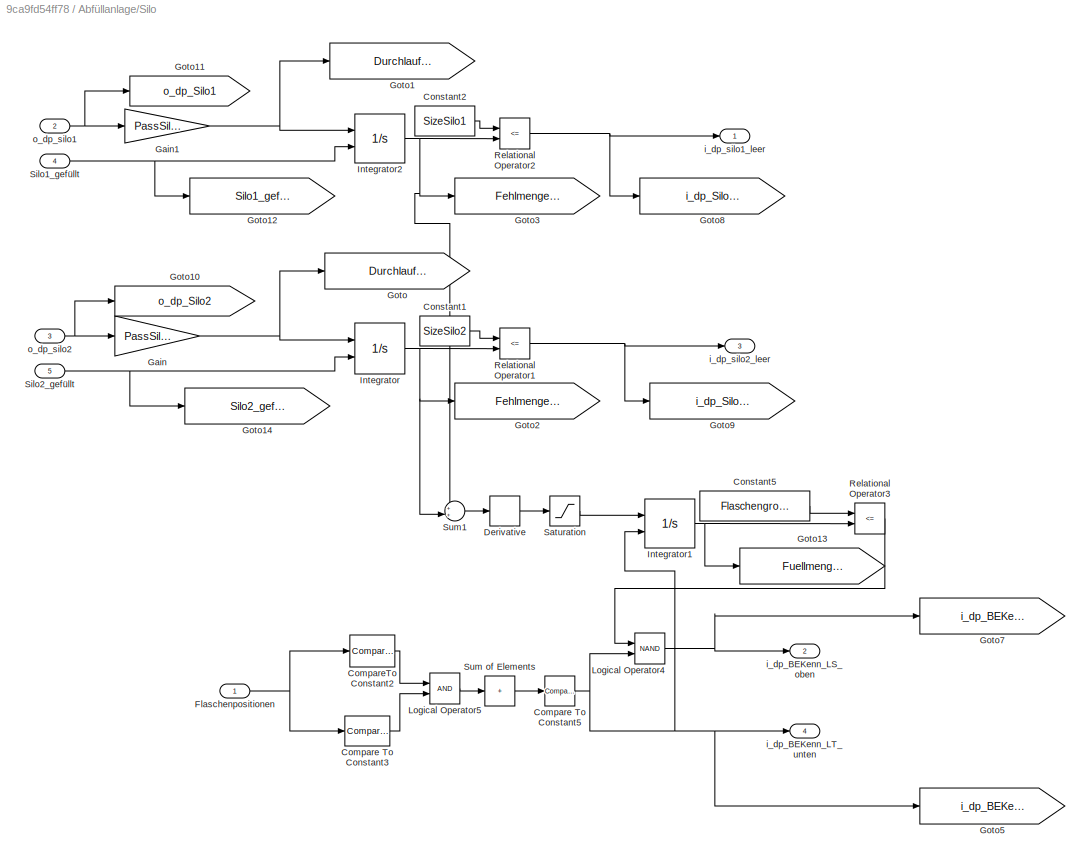
BLOCK [SubSystem] Abfüllanlage/Silo
  Ports = [5, 4]
  RequestExecContextInheritance = off
BLOCK [Reference] Abfüllanlage/Silo/Compare To Constant3  REF=simulink/Logic and Bit
Operations/Compare
To Constant
  Ports = [1, 1]
  SourceBlock = simulink/Logic and Bit\nOperations/Compare\nTo Constant
  SourceProductBaseCode = SL
  SourceType = Compare To Constant
BLOCK [Reference] Abfüllanlage/Silo/Compare To Constant5  REF=simulink/Logic and Bit
Operations/Compare
To Constant
  Ports = [1, 1]
  SourceBlock = simulink/Logic and Bit\nOperations/Compare\nTo Constant
  SourceProductBaseCode = SL
  SourceType = Compare To Constant
BLOCK [Reference] Abfüllanlage/Silo/CompareTo Constant2  REF=simulink/Logic and Bit
Operations/Compare
To Constant
  Ports = [1, 1]
  SourceBlock = simulink/Logic and Bit\nOperations/Compare\nTo Constant
  SourceProductBaseCode = SL
  SourceType = Compare To Constant
BLOCK [Constant] Abfüllanlage/Silo/Constant1
  Value = SizeSilo2
BLOCK [Constant] Abfüllanlage/Silo/Constant2
  Value = SizeSilo1
BLOCK [Constant] Abfüllanlage/Silo/Constant5
  Value = Flaschengroesse
BLOCK [Derivative] Abfüllanlage/Silo/Derivative
BLOCK [Inport] Abfüllanlage/Silo/Flaschenpositionen
BLOCK [Gain] Abfüllanlage/Silo/Gain
  Gain = PassSilo2
  OutDataTypeStr = Inherit: Same as input
  ParamDataTypeStr = Inherit: Same as input
  SaturateOnIntegerOverflow = on
BLOCK [Gain] Abfüllanlage/Silo/Gain1
  Gain = PassSilo1
  OutDataTypeStr = Inherit: Same as input
  ParamDataTypeStr = Inherit: Same as input
  SaturateOnIntegerOverflow = on
BLOCK [Goto] Abfüllanlage/Silo/Goto
  GotoTag = Durchlauf_Silo2
  TagVisibility = global
BLOCK [Goto] Abfüllanlage/Silo/Goto1
  GotoTag = Durchlauf_Silo1
  TagVisibility = global
BLOCK [Goto] Abfüllanlage/Silo/Goto10
  GotoTag = o_dp_Silo2
  TagVisibility = global
BLOCK [Goto] Abfüllanlage/Silo/Goto11
  GotoTag = o_dp_Silo1
  TagVisibility = global
BLOCK [Goto] Abfüllanlage/Silo/Goto12
  GotoTag = Silo1_gefuellt
  TagVisibility = global
BLOCK [Goto] Abfüllanlage/Silo/Goto13
  GotoTag = Fuellmenge_Flasche
  TagVisibility = global
BLOCK [Goto] Abfüllanlage/Silo/Goto14
  GotoTag = Silo2_gefuellt
  TagVisibility = global
BLOCK [Goto] Abfüllanlage/Silo/Goto2
  GotoTag = Fehlmenge_Silo2
  TagVisibility = global
BLOCK [Goto] Abfüllanlage/Silo/Goto3
  GotoTag = Fehlmenge_Silo1
  TagVisibility = global
BLOCK [Goto] Abfüllanlage/Silo/Goto5
  GotoTag = i_dp_BEKenn_LT_unten
  TagVisibility = global
BLOCK [Goto] Abfüllanlage/Silo/Goto7
  GotoTag = i_dp_BEKenn_LS_oben
  TagVisibility = global
BLOCK [Goto] Abfüllanlage/Silo/Goto8
  GotoTag = i_dp_Silo1_leer
  TagVisibility = global
BLOCK [Goto] Abfüllanlage/Silo/Goto9
  GotoTag = i_dp_Silo2_leer
  TagVisibility = global
BLOCK [Integrator] Abfüllanlage/Silo/Integrator
  ExternalReset = rising
  LimitOutput = on
  LowerSaturationLimit = 0
  Ports = [2, 1]
  UpperSaturationLimit = SizeSilo2
BLOCK [Integrator] Abfüllanlage/Silo/Integrator1
  ExternalReset = falling
  LimitOutput = on
  LowerSaturationLimit = 0
  Ports = [2, 1]
BLOCK [Integrator] Abfüllanlage/Silo/Integrator2
  ExternalReset = rising
  LimitOutput = on
  LowerSaturationLimit = 0
  Ports = [2, 1]
  UpperSaturationLimit = SizeSilo1
BLOCK [Logic] Abfüllanlage/Silo/Logical Operator4
  AllPortsSameDT = off
  Operator = NAND
  OutDataTypeStr = boolean
  Ports = [2, 1]
BLOCK [Logic] Abfüllanlage/Silo/Logical Operator5
  AllPortsSameDT = off
  OutDataTypeStr = boolean
  Ports = [2, 1]
BLOCK [RelationalOperator] Abfüllanlage/Silo/Relational Operator1
  InputSameDT = off
  Operator = <=
  Ports = [2, 1]
BLOCK [RelationalOperator] Abfüllanlage/Silo/Relational Operator2
  InputSameDT = off
  Operator = <=
  Ports = [2, 1]
BLOCK [RelationalOperator] Abfüllanlage/Silo/Relational Operator3
  InputSameDT = off
  Operator = <=
  Ports = [2, 1]
BLOCK [Saturate] Abfüllanlage/Silo/Saturation
  LowerLimit = 0
  UpperLimit = inf
BLOCK [Inport] Abfüllanlage/Silo/Silo1_gefüllt
  Port = 4
BLOCK [Inport] Abfüllanlage/Silo/Silo2_gefüllt
  Port = 5
BLOCK [Sum] Abfüllanlage/Silo/Sum of Elements
  IconShape = rectangular
  Inputs = +
  Ports = [1, 1]
BLOCK [Sum] Abfüllanlage/Silo/Sum1
  Inputs = ++|
  Ports = [2, 1]
  SaturateOnIntegerOverflow = on
BLOCK [Outport] Abfüllanlage/Silo/i_dp_BEKenn_LS_oben
  OutDataTypeStr = boolean
  Port = 2
BLOCK [Outport] Abfüllanlage/Silo/i_dp_BEKenn_LT_unten
  OutDataTypeStr = boolean
  Port = 4
BLOCK [Outport] Abfüllanlage/Silo/i_dp_silo1_leer
  OutDataTypeStr = boolean
BLOCK [Outport] Abfüllanlage/Silo/i_dp_silo2_leer
  OutDataTypeStr = boolean
  Port = 3
BLOCK [Inport] Abfüllanlage/Silo/o_dp_silo1
  Port = 2
BLOCK [Inport] Abfüllanlage/Silo/o_dp_silo2
  Port = 3
BLOCK [SubSystem] Abfüllanlage/Umsetzgreifer
  Ports = [4, 6]
  RequestExecContextInheritance = off
BLOCK [SubSystem] Abfüllanlage/Umsetzgreifer/Greifer
  Ports = [2, 2]
  RequestExecContextInheritance = off
BLOCK [Reference] Abfüllanlage/Umsetzgreifer/Greifer/Compare To Constant2  REF=simulink/Logic and Bit
Operations/Compare
To Constant
  Ports = [1, 1]
  SourceBlock = simulink/Logic and Bit\nOperations/Compare\nTo Constant
  SourceProductBaseCode = SL
  SourceType = Compare To Constant
BLOCK [Reference] Abfüllanlage/Umsetzgreifer/Greifer/Compare To Constant3  REF=simulink/Logic and Bit
Operations/Compare
To Constant
  Ports = [1, 1]
  SourceBlock = simulink/Logic and Bit\nOperations/Compare\nTo Constant
  SourceProductBaseCode = SL
  SourceType = Compare To Constant
BLOCK [Derivative] Abfüllanlage/Umsetzgreifer/Greifer/Derivative
BLOCK [Gain] Abfüllanlage/Umsetzgreifer/Greifer/Gain2
  Gain = v_umsetzer_greifer_set
BLOCK [Goto] Abfüllanlage/Umsetzgreifer/Greifer/Goto
  GotoTag = v_Greifer
  TagVisibility = global
BLOCK [Goto] Abfüllanlage/Umsetzgreifer/Greifer/Goto1
  GotoTag = s_Greifer
  TagVisibility = global
BLOCK [Goto] Abfüllanlage/Umsetzgreifer/Greifer/Goto2
  GotoTag = o_dp_umsetz_greifer_auf
  TagVisibility = global
BLOCK [Goto] Abfüllanlage/Umsetzgreifer/Greifer/Goto3
  GotoTag = o_dp_umsetz_greifer_zu
  TagVisibility = global
BLOCK [Goto] Abfüllanlage/Umsetzgreifer/Greifer/Goto4
  GotoTag = i_dp_umsetz_greifer_auf
  TagVisibility = global
BLOCK [Goto] Abfüllanlage/Umsetzgreifer/Greifer/Goto5
  GotoTag = i_dp_umsetz_greifer_zu
  TagVisibility = global
BLOCK [Integrator] Abfüllanlage/Umsetzgreifer/Greifer/Integrator1
  LimitOutput = on
  LowerSaturationLimit = 0
  Ports = [1, 1]
  UpperSaturationLimit = 100
BLOCK [Sum] Abfüllanlage/Umsetzgreifer/Greifer/Subtract1
  IconShape = rectangular
  Inputs = +-
  Ports = [2, 1]
BLOCK [Outport] Abfüllanlage/Umsetzgreifer/Greifer/i_dp_umsetz_greifer_auf
  OutDataTypeStr = boolean
BLOCK [Outport] Abfüllanlage/Umsetzgreifer/Greifer/i_dp_umsetz_greifer_zu
  OutDataTypeStr = boolean
  Port = 2
BLOCK [Inport] Abfüllanlage/Umsetzgreifer/Greifer/o_dp_umsetz_greifer_auf
BLOCK [Inport] Abfüllanlage/Umsetzgreifer/Greifer/o_dp_umsetz_greifer_zu
  Port = 2
BLOCK [SubSystem] Abfüllanlage/Umsetzgreifer/Umsetzer
  Ports = [2, 4]
  RequestExecContextInheritance = off
BLOCK [Reference] Abfüllanlage/Umsetzgreifer/Umsetzer/Compare To Constant  REF=simulink/Logic and Bit
Operations/Compare
To Constant
  Ports = [1, 1]
  SourceBlock = simulink/Logic and Bit\nOperations/Compare\nTo Constant
  SourceProductBaseCode = SL
  SourceType = Compare To Constant
BLOCK [Reference] Abfüllanlage/Umsetzgreifer/Umsetzer/Compare To Constant1  REF=simulink/Logic and Bit
Operations/Compare
To Constant
  Ports = [1, 1]
  SourceBlock = simulink/Logic and Bit\nOperations/Compare\nTo Constant
  SourceProductBaseCode = SL
  SourceType = Compare To Constant
BLOCK [Derivative] Abfüllanlage/Umsetzgreifer/Umsetzer/Derivative
BLOCK [Gain] Abfüllanlage/Umsetzgreifer/Umsetzer/Gain
  Gain = -v_umsetzer_set
BLOCK [Goto] Abfüllanlage/Umsetzgreifer/Umsetzer/Goto
  GotoTag = o_dp_umsetz_teller
  TagVisibility = global
BLOCK [Goto] Abfüllanlage/Umsetzgreifer/Umsetzer/Goto1
  GotoTag = o_dp_umsetz_band
  TagVisibility = global
BLOCK [Goto] Abfüllanlage/Umsetzgreifer/Umsetzer/Goto2
  GotoTag = i_dp_umsetz_band
  TagVisibility = global
BLOCK [Goto] Abfüllanlage/Umsetzgreifer/Umsetzer/Goto3
  GotoTag = i_dp_umsetz_teller
  TagVisibility = global
BLOCK [Goto] Abfüllanlage/Umsetzgreifer/Umsetzer/Goto4
  GotoTag = v_umsetzer
  TagVisibility = global
BLOCK [Goto] Abfüllanlage/Umsetzgreifer/Umsetzer/Goto5
  GotoTag = s_umsetzer
  TagVisibility = global
BLOCK [Integrator] Abfüllanlage/Umsetzgreifer/Umsetzer/Integrator
  InitialCondition = 100
  LimitOutput = on
  LowerSaturationLimit = 0
  Ports = [1, 1]
  UpperSaturationLimit = 101
BLOCK [Sum] Abfüllanlage/Umsetzgreifer/Umsetzer/Subtract
  IconShape = rectangular
  Inputs = +-
  Ports = [2, 1]
BLOCK [Outport] Abfüllanlage/Umsetzgreifer/Umsetzer/i_dp_umsetz_band
  OutDataTypeStr = boolean
  Port = 3
BLOCK [Outport] Abfüllanlage/Umsetzgreifer/Umsetzer/i_dp_umsetz_teller
  OutDataTypeStr = boolean
  Port = 2
BLOCK [Inport] Abfüllanlage/Umsetzgreifer/Umsetzer/o_dp_umsetz_band
BLOCK [Inport] Abfüllanlage/Umsetzgreifer/Umsetzer/o_dp_umsetz_teller
  Port = 2
BLOCK [Outport] Abfüllanlage/Umsetzgreifer/Umsetzer/umsetz_pos
  OutDataTypeStr = double
  Port = 4
BLOCK [Outport] Abfüllanlage/Umsetzgreifer/Umsetzer/v_umsetzer
  OutDataTypeStr = double
BLOCK [Outport] Abfüllanlage/Umsetzgreifer/i_dp_umsetz_band
  OutDataTypeStr = boolean
  Port = 3
BLOCK [Outport] Abfüllanlage/Umsetzgreifer/i_dp_umsetz_greifer_auf
  OutDataTypeStr = boolean
BLOCK [Outport] Abfüllanlage/Umsetzgreifer/i_dp_umsetz_greifer_zu
  OutDataTypeStr = boolean
  Port = 2
BLOCK [Outport] Abfüllanlage/Umsetzgreifer/i_dp_umsetz_teller
  OutDataTypeStr = boolean
  Port = 4
BLOCK [Inport] Abfüllanlage/Umsetzgreifer/o_dp_umsetz_band
BLOCK [Inport] Abfüllanlage/Umsetzgreifer/o_dp_umsetz_greifer_auf
  Port = 3
BLOCK [Inport] Abfüllanlage/Umsetzgreifer/o_dp_umsetz_greifer_zu
  Port = 4
BLOCK [Inport] Abfüllanlage/Umsetzgreifer/o_dp_umsetz_teller
  Port = 2
BLOCK [Outport] Abfüllanlage/Umsetzgreifer/umsetz_pos
  OutDataTypeStr = double
  Port = 6
BLOCK [Outport] Abfüllanlage/Umsetzgreifer/v_umsetzer
  OutDataTypeStr = double
  Port = 5
BLOCK [SubSystem] Abfüllanlage/VE1
  Ports = [2, 4]
  RequestExecContextInheritance = off
BLOCK [Sum] Abfüllanlage/VE1/Add
  IconShape = rectangular
  Inputs = +-
  Ports = [2, 1]
BLOCK [Reference] Abfüllanlage/VE1/Compare To Constant  REF=simulink/Logic and Bit
Operations/Compare
To Constant
  Ports = [1, 1]
  SourceBlock = simulink/Logic and Bit\nOperations/Compare\nTo Constant
  SourceProductBaseCode = SL
  SourceType = Compare To Constant
BLOCK [Reference] Abfüllanlage/VE1/Compare To Constant1  REF=simulink/Logic and Bit
Operations/Compare
To Constant
  Ports = [1, 1]
  SourceBlock = simulink/Logic and Bit\nOperations/Compare\nTo Constant
  SourceProductBaseCode = SL
  SourceType = Compare To Constant
BLOCK [Reference] Abfüllanlage/VE1/Compare To Constant2  REF=simulink/Logic and Bit
Operations/Compare
To Constant
  Ports = [1, 1]
  SourceBlock = simulink/Logic and Bit\nOperations/Compare\nTo Constant
  SourceProductBaseCode = SL
  SourceType = Compare To Constant
BLOCK [Reference] Abfüllanlage/VE1/Compare To Constant3  REF=simulink/Logic and Bit
Operations/Compare
To Constant
  Ports = [1, 1]
  SourceBlock = simulink/Logic and Bit\nOperations/Compare\nTo Constant
  SourceProductBaseCode = SL
  SourceType = Compare To Constant
BLOCK [Reference] Abfüllanlage/VE1/Compare To Constant4  REF=simulink/Logic and Bit
Operations/Compare
To Constant
  Ports = [1, 1]
  SourceBlock = simulink/Logic and Bit\nOperations/Compare\nTo Constant
  SourceProductBaseCode = SL
  SourceType = Compare To Constant
BLOCK [DataTypeConversion] Abfüllanlage/VE1/Data Type Conversion
  OutDataTypeStr = double
  RndMeth = Floor
  SaturateOnIntegerOverflow = off
BLOCK [DataTypeConversion] Abfüllanlage/VE1/Data Type Conversion1
  OutDataTypeStr = double
  RndMeth = Floor
  SaturateOnIntegerOverflow = off
BLOCK [Derivative] Abfüllanlage/VE1/Derivative
BLOCK [Inport] Abfüllanlage/VE1/Flaschenpositionen
  Port = 2
BLOCK [Gain] Abfüllanlage/VE1/Gain1
  Gain = v_ve1_set
BLOCK [Gain] Abfüllanlage/VE1/Gain4
  Gain = v_ve1_set
BLOCK [Goto] Abfüllanlage/VE1/Goto
  GotoTag = o_dp_ve1
  TagVisibility = global
BLOCK [Goto] Abfüllanlage/VE1/Goto1
  GotoTag = v_ve1
  TagVisibility = global
BLOCK [Goto] Abfüllanlage/VE1/Goto2
  GotoTag = s_ve1
  TagVisibility = global
BLOCK [Goto] Abfüllanlage/VE1/Goto3
  GotoTag = i_dp_ve1_herein
  TagVisibility = global
BLOCK [Goto] Abfüllanlage/VE1/Goto4
  GotoTag = i_dp_ve1_heraus
  TagVisibility = global
BLOCK [Goto] Abfüllanlage/VE1/Goto5
  GotoTag = i_dp_ve1_LT
  TagVisibility = global
BLOCK [Integrator] Abfüllanlage/VE1/Integrator
  LimitOutput = on
  LowerSaturationLimit = 0
  Ports = [1, 1]
  UpperSaturationLimit = 100
BLOCK [Logic] Abfüllanlage/VE1/Logical Operator
  AllPortsSameDT = off
  Operator = NOT
  OutDataTypeStr = boolean
  Ports = [1, 1]
BLOCK [Logic] Abfüllanlage/VE1/Logical Operator2
  AllPortsSameDT = off
  OutDataTypeStr = boolean
  Ports = [2, 1]
BLOCK [Sum] Abfüllanlage/VE1/Sum of Elements
  IconShape = rectangular
  Inputs = +
  Ports = [1, 1]
BLOCK [Outport] Abfüllanlage/VE1/i_dp_ve1_LT
  OutDataTypeStr = boolean
  Port = 3
BLOCK [Outport] Abfüllanlage/VE1/i_dp_ve1_heraus
  Port = 2
BLOCK [Outport] Abfüllanlage/VE1/i_dp_ve1_herein
BLOCK [Inport] Abfüllanlage/VE1/o_dp_ve1
BLOCK [Outport] Abfüllanlage/VE1/v_ve1
  Port = 4
BLOCK [SubSystem] Abfüllanlage/VE2
  Ports = [2, 4]
  RequestExecContextInheritance = off
BLOCK [Sum] Abfüllanlage/VE2/Add
  IconShape = rectangular
  Inputs = +-
  Ports = [2, 1]
BLOCK [Reference] Abfüllanlage/VE2/Compare To Constant2  REF=simulink/Logic and Bit
Operations/Compare
To Constant
  Ports = [1, 1]
  SourceBlock = simulink/Logic and Bit\nOperations/Compare\nTo Constant
  SourceProductBaseCode = SL
  SourceType = Compare To Constant
BLOCK [Reference] Abfüllanlage/VE2/Compare To Constant3  REF=simulink/Logic and Bit
Operations/Compare
To Constant
  Ports = [1, 1]
  SourceBlock = simulink/Logic and Bit\nOperations/Compare\nTo Constant
  SourceProductBaseCode = SL
  SourceType = Compare To Constant
BLOCK [Reference] Abfüllanlage/VE2/Compare To Constant5  REF=simulink/Logic and Bit
Operations/Compare
To Constant
  Ports = [1, 1]
  SourceBlock = simulink/Logic and Bit\nOperations/Compare\nTo Constant
  SourceProductBaseCode = SL
  SourceType = Compare To Constant
BLOCK [Reference] Abfüllanlage/VE2/Compare To Constant7  REF=simulink/Logic and Bit
Operations/Compare
To Constant
  Ports = [1, 1]
  SourceBlock = simulink/Logic and Bit\nOperations/Compare\nTo Constant
  SourceProductBaseCode = SL
  SourceType = Compare To Constant
BLOCK [Reference] Abfüllanlage/VE2/Compare To Constant9  REF=simulink/Logic and Bit
Operations/Compare
To Constant
  Ports = [1, 1]
  SourceBlock = simulink/Logic and Bit\nOperations/Compare\nTo Constant
  SourceProductBaseCode = SL
  SourceType = Compare To Constant
BLOCK [Reference] Abfüllanlage/VE2/CompareTo Constant6  REF=simulink/Logic and Bit
Operations/Compare
To Constant
  Ports = [1, 1]
  SourceBlock = simulink/Logic and Bit\nOperations/Compare\nTo Constant
  SourceProductBaseCode = SL
  SourceType = Compare To Constant
BLOCK [Reference] Abfüllanlage/VE2/CompareTo Constant8  REF=simulink/Logic and Bit
Operations/Compare
To Constant
  Ports = [1, 1]
  SourceBlock = simulink/Logic and Bit\nOperations/Compare\nTo Constant
  SourceProductBaseCode = SL
  SourceType = Compare To Constant
BLOCK [DataTypeConversion] Abfüllanlage/VE2/Data Type Conversion
  OutDataTypeStr = double
  RndMeth = Floor
  SaturateOnIntegerOverflow = off
BLOCK [DataTypeConversion] Abfüllanlage/VE2/Data Type Conversion1
  OutDataTypeStr = double
  RndMeth = Floor
  SaturateOnIntegerOverflow = off
BLOCK [Derivative] Abfüllanlage/VE2/Derivative
BLOCK [Inport] Abfüllanlage/VE2/Flaschenpositionen
  Port = 2
BLOCK [Gain] Abfüllanlage/VE2/Gain1
  Gain = v_ve2_set
BLOCK [Gain] Abfüllanlage/VE2/Gain4
  Gain = v_ve2_set
BLOCK [Goto] Abfüllanlage/VE2/Goto
  GotoTag = o_dp_ve2
  TagVisibility = global
BLOCK [Goto] Abfüllanlage/VE2/Goto1
  GotoTag = v_ve2
  TagVisibility = global
BLOCK [Goto] Abfüllanlage/VE2/Goto2
  GotoTag = s_ve2
  TagVisibility = global
BLOCK [Goto] Abfüllanlage/VE2/Goto3
  GotoTag = i_dp_ve2_herein
  TagVisibility = global
BLOCK [Goto] Abfüllanlage/VE2/Goto4
  GotoTag = i_dp_ve2_heraus
  TagVisibility = global
BLOCK [Goto] Abfüllanlage/VE2/Goto5
  GotoTag = i_dp_ve2_LT
  TagVisibility = global
BLOCK [Integrator] Abfüllanlage/VE2/Integrator
  LimitOutput = on
  LowerSaturationLimit = 0
  Ports = [1, 1]
  UpperSaturationLimit = 100
BLOCK [Logic] Abfüllanlage/VE2/Logical Operator
  AllPortsSameDT = off
  Operator = NOT
  OutDataTypeStr = boolean
  Ports = [1, 1]
BLOCK [Logic] Abfüllanlage/VE2/Logical Operator3
  AllPortsSameDT = off
  OutDataTypeStr = boolean
  Ports = [2, 1]
BLOCK [Logic] Abfüllanlage/VE2/Logical Operator4
  AllPortsSameDT = off
  Operator = OR
  OutDataTypeStr = boolean
  Ports = [2, 1]
BLOCK [Logic] Abfüllanlage/VE2/Logical Opertor1
  AllPortsSameDT = off
  OutDataTypeStr = boolean
  Ports = [2, 1]
BLOCK [Sum] Abfüllanlage/VE2/Sum of Elements1
  IconShape = rectangular
  Inputs = +
  Ports = [1, 1]
BLOCK [Outport] Abfüllanlage/VE2/i_dp_ve2_LT
  OutDataTypeStr = boolean
  Port = 3
BLOCK [Outport] Abfüllanlage/VE2/i_dp_ve2_heraus
  OutDataTypeStr = boolean
  Port = 2
BLOCK [Outport] Abfüllanlage/VE2/i_dp_ve2_herein
  OutDataTypeStr = boolean
BLOCK [Inport] Abfüllanlage/VE2/o_dp_ve2
BLOCK [Outport] Abfüllanlage/VE2/v_ve2
  Port = 4
BLOCK [SubSystem] Abfüllanlage/Zufuhrband
  Ports = [2, 2]
  RequestExecContextInheritance = off
BLOCK [Reference] Abfüllanlage/Zufuhrband/Compare To Constant  REF=simulink/Logic and Bit
Operations/Compare
To Constant
  Ports = [1, 1]
  SourceBlock = simulink/Logic and Bit\nOperations/Compare\nTo Constant
  SourceProductBaseCode = SL
  SourceType = Compare To Constant
BLOCK [Reference] Abfüllanlage/Zufuhrband/Compare To Constant1  REF=simulink/Logic and Bit
Operations/Compare
To Constant
  Ports = [1, 1]
  SourceBlock = simulink/Logic and Bit\nOperations/Compare\nTo Constant
  SourceProductBaseCode = SL
  SourceType = Compare To Constant
BLOCK [Reference] Abfüllanlage/Zufuhrband/Compare To Constant2  REF=simulink/Logic and Bit
Operations/Compare
To Constant
  Ports = [1, 1]
  SourceBlock = simulink/Logic and Bit\nOperations/Compare\nTo Constant
  SourceProductBaseCode = SL
  SourceType = Compare To Constant
BLOCK [Inport] Abfüllanlage/Zufuhrband/Flaschenpositionen
  Port = 2
BLOCK [Gain] Abfüllanlage/Zufuhrband/Gain
  Gain = v_band_zufuhr_set
  OutDataTypeStr = Inherit: Same as input
  ParamDataTypeStr = Inherit: Same as input
  SaturateOnIntegerOverflow = on
BLOCK [Goto] Abfüllanlage/Zufuhrband/Goto
  GotoTag = o_dp_band_zufuhr
  TagVisibility = global
BLOCK [Goto] Abfüllanlage/Zufuhrband/Goto1
  GotoTag = v_band_zufuhr
  TagVisibility = global
BLOCK [Goto] Abfüllanlage/Zufuhrband/Goto2
  GotoTag = i_dp_zufuhr_LT
  TagVisibility = global
BLOCK [Logic] Abfüllanlage/Zufuhrband/Logical Operator
  AllPortsSameDT = off
  OutDataTypeStr = boolean
  Ports = [2, 1]
BLOCK [Sum] Abfüllanlage/Zufuhrband/Sum of Elements
  IconShape = rectangular
  Inputs = +
  Ports = [1, 1]
BLOCK [Outport] Abfüllanlage/Zufuhrband/i_dp_zufuhr_LT
  OutDataTypeStr = boolean
  Port = 2
BLOCK [Inport] Abfüllanlage/Zufuhrband/o_dp_band_zufuhr
BLOCK [Outport] Abfüllanlage/Zufuhrband/v_band_zufuhr
  OutDataTypeStr = double
BLOCK [Outport] Abfüllanlage/i_dp_BEKenn_LS_oben
  OutDataTypeStr = boolean
  Port = 8
BLOCK [Outport] Abfüllanlage/i_dp_BEKenn_LT_unten
  OutDataTypeStr = boolean
  Port = 9
BLOCK [Outport] Abfüllanlage/i_dp_silo1_leer
  OutDataTypeStr = boolean
  Port = 10
BLOCK [Outport] Abfüllanlage/i_dp_silo2_leer
  OutDataTypeStr = boolean
  Port = 11
BLOCK [Outport] Abfüllanlage/i_dp_teller_ausger
  OutDataTypeStr = boolean
  Port = 16
BLOCK [Outport] Abfüllanlage/i_dp_teller_behälter
  OutDataTypeStr = boolean
  Port = 17
BLOCK [Outport] Abfüllanlage/i_dp_umsetz_band
  OutDataTypeStr = boolean
  Port = 12
BLOCK [Outport] Abfüllanlage/i_dp_umsetz_greifer_auf
  OutDataTypeStr = boolean
  Port = 14
BLOCK [Outport] Abfüllanlage/i_dp_umsetz_greifer_zu
  OutDataTypeStr = boolean
  Port = 15
BLOCK [Outport] Abfüllanlage/i_dp_umsetz_telle
  OutDataTypeStr = boolean
  Port = 13
BLOCK [Outport] Abfüllanlage/i_dp_ve1_LT
  OutDataTypeStr = boolean
  Port = 6
BLOCK [Outport] Abfüllanlage/i_dp_ve1_heraus
  OutDataTypeStr = boolean
  Port = 3
BLOCK [Outport] Abfüllanlage/i_dp_ve1_herein
  OutDataTypeStr = boolean
  Port = 2
BLOCK [Outport] Abfüllanlage/i_dp_ve2_LT
  OutDataTypeStr = boolean
  Port = 7
BLOCK [Outport] Abfüllanlage/i_dp_ve2_heraus
  OutDataTypeStr = boolean
  Port = 5
BLOCK [Outport] Abfüllanlage/i_dp_ve2_herein
  OutDataTypeStr = boolean
  Port = 4
BLOCK [Outport] Abfüllanlage/i_dp_zufuhr_LT
  OutDataTypeStr = boolean
BLOCK [Inport] Abfüllanlage/o_dp_band_arbeit
  OutDataTypeStr = double
  Port = 3
BLOCK [Inport] Abfüllanlage/o_dp_band_zufuhr
  OutDataTypeStr = double
  Port = 2
BLOCK [Inport] Abfüllanlage/o_dp_silo1
  OutDataTypeStr = double
  Port = 6
BLOCK [Inport] Abfüllanlage/o_dp_silo2
  OutDataTypeStr = double
  Port = 7
BLOCK [Inport] Abfüllanlage/o_dp_teller
  OutDataTypeStr = double
  Port = 14
BLOCK [Inport] Abfüllanlage/o_dp_umsetz_band
  OutDataTypeStr = double
  Port = 10
BLOCK [Inport] Abfüllanlage/o_dp_umsetz_greifer_auf
  OutDataTypeStr = double
  Port = 12
BLOCK [Inport] Abfüllanlage/o_dp_umsetz_greifer_zu
  OutDataTypeStr = double
  Port = 13
BLOCK [Inport] Abfüllanlage/o_dp_umsetz_teller
  OutDataTypeStr = double
  Port = 11
BLOCK [Inport] Abfüllanlage/o_dp_ve1
  OutDataTypeStr = double
  Port = 4
BLOCK [Inport] Abfüllanlage/o_dp_ve2
  OutDataTypeStr = double
  Port = 5
BLOCK [Inport] Abfüllanlage/silo1_gefüllt
  OutDataTypeStr = double
  Port = 8
BLOCK [Inport] Abfüllanlage/silo2_gefüllt
  OutDataTypeStr = double
  Port = 9
BLOCK [SubSystem] Auffuellen
  NameLocation = top
  Ports = [2, 2]
  RequestExecContextInheritance = off
  TreatAsAtomicUnit = on
BLOCK [DataTypeConversion] Auffuellen/Data Type Conversion
  OutDataTypeStr = double
  RndMeth = Floor
  SaturateOnIntegerOverflow = off
BLOCK [DataTypeConversion] Auffuellen/Data Type Conversion1
  OutDataTypeStr = double
  RndMeth = Floor
  SaturateOnIntegerOverflow = off
BLOCK [TransportDelay] Auffuellen/Transport Delay
  DelayTime = 10
  Ports = [1, 1]
BLOCK [TransportDelay] Auffuellen/Transport Delay1
  DelayTime = 10
  Ports = [1, 1]
BLOCK [Inport] Auffuellen/i_dp_silo1_leer
  Port = 2
BLOCK [Inport] Auffuellen/i_dp_silo2_leer
BLOCK [Outport] Auffuellen/silo1_gefuellt
  Port = 2
BLOCK [Outport] Auffuellen/silo2_gefuellt
BLOCK [SubSystem] Auswertung
  Ports = []
  RequestExecContextInheritance = off
BLOCK [SubSystem] Auswertung/Arbeitsband
  Ports = []
  RequestExecContextInheritance = off
BLOCK [Scope] Auswertung/Arbeitsband/Arbeitsbandüberwachung
  Floating = off
  NumInputPorts = 2
  Ports = [2]
  ScopeSpecificationString = Simulink.scopes.TimeScopeBlockCfg('CurrentConfiguration', extmgr.ConfigurationSet(extmgr.Configuration('Core','General UI',true),extmgr.Configuration('Core','Source UI',true),extmgr.Configuration('Sources','WiredSimulink',true,'DataLoggingVariableName','ScopeData2','DataLoggingSaveFormat','StructureWithTime','DataLoggingDecimation','1','DataLoggingDecimateData',true),extmgr.Configuration('Visuals'...<+2350ch>
BLOCK [From] Auswertung/Arbeitsband/From
  CloseFcn = tagdialog Close
  GotoTag = o_dp_band_arbeit
  TagVisibility = global
BLOCK [From] Auswertung/Arbeitsband/From1
  CloseFcn = tagdialog Close
  GotoTag = v_band_arbeit
  TagVisibility = global
BLOCK [SubSystem] Auswertung/Drehscheibe
  Ports = []
  RequestExecContextInheritance = off
BLOCK [Scope] Auswertung/Drehscheibe/Drehtellerauswertung
  Floating = off
  NumInputPorts = 5
  Ports = [5]
  ScopeSpecificationString = C++SS(StrPVP('Location','[5, 56, 1285, 993]'),StrPVP('Open','off'),StrPVP('ZoomMode','xonly'),MxPVP('AxesTitles',54,'struct(''axes1'',''%<SignalLabel>'',''axes2'',''%<SignalLabel>'',''axes3'',''%<SignalLabel>'',''axes4'',''%<SignalLabel>'',''axes5'',''%<SignalLabel>'')'),StrPVP('ShowLegends','off'),StrPVP('YMin','-5~-5~-5~-5~-5'),StrPVP('YMax','5~5~5~5~5'),StrPVP('SaveName','ScopeData3'),StrPVP('D...<+127ch>
BLOCK [From] Auswertung/Drehscheibe/From
  CloseFcn = tagdialog Close
  GotoTag = Drehwinkel
  TagVisibility = global
BLOCK [From] Auswertung/Drehscheibe/From1
  CloseFcn = tagdialog Close
  GotoTag = v_teller
  TagVisibility = global
BLOCK [From] Auswertung/Drehscheibe/From2
  CloseFcn = tagdialog Close
  GotoTag = i_dp_teller_ausger
  TagVisibility = global
BLOCK [From] Auswertung/Drehscheibe/From3
  CloseFcn = tagdialog Close
  GotoTag = i_dp_teller_behaelter
  TagVisibility = global
BLOCK [From] Auswertung/Drehscheibe/From4
  CloseFcn = tagdialog Close
  GotoTag = o_dp_teller
  TagVisibility = global
BLOCK [SubSystem] Auswertung/Flaschen_data
  Ports = []
  RequestExecContextInheritance = off
BLOCK [Scope] Auswertung/Flaschen_data/Auswertung Flaschen_data
  Floating = off
  NumInputPorts = 5
  Ports = [5]
  ScopeSpecificationString = Simulink.scopes.TimeScopeBlockCfg('CurrentConfiguration', extmgr.ConfigurationSet(extmgr.Configuration('Core','General UI',true),extmgr.Configuration('Core','Source UI',true),extmgr.Configuration('Sources','WiredSimulink',true,'DataLoggingVariableName','ScopeData3','DataLoggingSaveFormat','StructureWithTime','DataLoggingDecimation','1','DataLoggingDecimateData',true),extmgr.Configuration('Visuals'...<+6600ch>
BLOCK [From] Auswertung/Flaschen_data/From
  CloseFcn = tagdialog Close
  GotoTag = Flaschenpositionen
  TagVisibility = global
BLOCK [From] Auswertung/Flaschen_data/From1
  CloseFcn = tagdialog Close
  GotoTag = Flaschenanzahl
  TagVisibility = global
BLOCK [From] Auswertung/Flaschen_data/From2
  CloseFcn = tagdialog Close
  GotoTag = Flaschengeschwindigkeiten
  TagVisibility = global
BLOCK [From] Auswertung/Flaschen_data/From3
  CloseFcn = tagdialog Close
  GotoTag = Anlagenposition
  TagVisibility = global
BLOCK [From] Auswertung/Flaschen_data/From4
  CloseFcn = tagdialog Close
  GotoTag = Flaschenanlagengeschwindigkeiten
  TagVisibility = global
BLOCK [SubSystem] Auswertung/Gesamt
  Ports = []
  RequestExecContextInheritance = off
BLOCK [SubSystem] Auswertung/Gesamt/Flaschenpositionen
  Ports = []
  RequestExecContextInheritance = off
BLOCK [Scope] Auswertung/Gesamt/Flaschenpositionen/Flaschenpositionen1
  Floating = off
  NumInputPorts = 1
  Ports = [1]
  ScopeSpecificationString = Simulink.scopes.TimeScopeBlockCfg('CurrentConfiguration', extmgr.ConfigurationSet(extmgr.Configuration('Core','General UI',true),extmgr.Configuration('Core','Source UI',true),extmgr.Configuration('Sources','WiredSimulink',true,'DataLoggingSaveFormat','StructureWithTime','DataLoggingDecimation','1','DataLoggingDecimateData',true,'DataLoggingVariableName','ScopeData3'),extmgr.Configuration('Visuals'...<+2261ch>
BLOCK [From] Auswertung/Gesamt/Flaschenpositionen/From
  CloseFcn = tagdialog Close
  GotoTag = Flaschenpositionen
  TagVisibility = global
BLOCK [ToWorkspace] Auswertung/Gesamt/Flaschenpositionen/To Workspace
  MaxDataPoints = inf
  Ports = [1]
  SampleTime = -1
  SaveFormat = Structure With Time
  VariableName = Flaschenpositionen
BLOCK [SubSystem] Auswertung/Gesamt/Inputs
  Ports = []
  RequestExecContextInheritance = off
BLOCK [From] Auswertung/Gesamt/Inputs/From1
  CloseFcn = tagdialog Close
  GotoTag = i_dp_BEKenn_LT_unten
  TagVisibility = global
BLOCK [From] Auswertung/Gesamt/Inputs/From10
  CloseFcn = tagdialog Close
  GotoTag = i_dp_umsetz_band
  TagVisibility = global
BLOCK [From] Auswertung/Gesamt/Inputs/From11
  CloseFcn = tagdialog Close
  GotoTag = i_dp_umsetz_teller
  TagVisibility = global
BLOCK [From] Auswertung/Gesamt/Inputs/From12
  CloseFcn = tagdialog Close
  GotoTag = i_dp_ve1_herein
  TagVisibility = global
BLOCK [From] Auswertung/Gesamt/Inputs/From13
  CloseFcn = tagdialog Close
  GotoTag = i_dp_ve1_heraus
  TagVisibility = global
BLOCK [From] Auswertung/Gesamt/Inputs/From14
  CloseFcn = tagdialog Close
  GotoTag = i_dp_ve1_LT
  TagVisibility = global
BLOCK [From] Auswertung/Gesamt/Inputs/From15
  CloseFcn = tagdialog Close
  GotoTag = i_dp_ve2_herein
  TagVisibility = global
BLOCK [From] Auswertung/Gesamt/Inputs/From16
  CloseFcn = tagdialog Close
  GotoTag = i_dp_ve2_heraus
  TagVisibility = global
BLOCK [From] Auswertung/Gesamt/Inputs/From17
  CloseFcn = tagdialog Close
  GotoTag = i_dp_ve2_LT
  TagVisibility = global
BLOCK [From] Auswertung/Gesamt/Inputs/From18
  CloseFcn = tagdialog Close
  GotoTag = i_dp_zufuhr_LT
  TagVisibility = global
BLOCK [From] Auswertung/Gesamt/Inputs/From2
  CloseFcn = tagdialog Close
  GotoTag = i_dp_Silo1_leer
  TagVisibility = global
BLOCK [From] Auswertung/Gesamt/Inputs/From3
  CloseFcn = tagdialog Close
  GotoTag = i_dp_Silo2_leer
  TagVisibility = global
BLOCK [From] Auswertung/Gesamt/Inputs/From4
  CloseFcn = tagdialog Close
  GotoTag = i_dp_teller_ausger
  TagVisibility = global
BLOCK [From] Auswertung/Gesamt/Inputs/From5
  CloseFcn = tagdialog Close
  GotoTag = i_dp_teller_behaelter
  TagVisibility = global
BLOCK [From] Auswertung/Gesamt/Inputs/From6
  CloseFcn = tagdialog Close
  GotoTag = i_dp_BEKenn_LS_oben
  TagVisibility = global
BLOCK [From] Auswertung/Gesamt/Inputs/From8
  CloseFcn = tagdialog Close
  GotoTag = i_dp_umsetz_greifer_auf
  TagVisibility = global
BLOCK [From] Auswertung/Gesamt/Inputs/From9
  CloseFcn = tagdialog Close
  GotoTag = i_dp_umsetz_greifer_zu
  TagVisibility = global
BLOCK [Scope] Auswertung/Gesamt/Inputs/Inputauswertung
  Floating = off
  NumInputPorts = 10
  Ports = [10]
  ScopeSpecificationString = C++SS(StrPVP('Location','[5, 60, 1285, 997]'),StrPVP('Open','off'),MxPVP('AxesTitles',54,'struct(''axes1'',''%<SignalLabel>'',''axes2'',''%<SignalLabel>'',''axes3'',''%<SignalLabel>'',''axes4'',''%<SignalLabel>'',''axes5'',''%<SignalLabel>'',''axes6'',''%<SignalLabel>'',''axes7'',''%<SignalLabel>'',''axes8'',''%<SignalLabel>'',''axes9'',''%<SignalLabel>'',''axes10'',''%<SignalLabel>'')'),StrPVP('S...<+271ch>
BLOCK [Mux] Auswertung/Gesamt/Inputs/Mux
  DisplayOption = bar
  Inputs = 2
  Ports = [2, 1]
BLOCK [Mux] Auswertung/Gesamt/Inputs/Mux1
  DisplayOption = bar
  Inputs = 2
  Ports = [2, 1]
BLOCK [Mux] Auswertung/Gesamt/Inputs/Mux2
  DisplayOption = bar
  Inputs = 2
  Ports = [2, 1]
BLOCK [Mux] Auswertung/Gesamt/Inputs/Mux3
  DisplayOption = bar
  Inputs = 2
  Ports = [2, 1]
BLOCK [Mux] Auswertung/Gesamt/Inputs/Mux4
  DisplayOption = bar
  Inputs = 2
  Ports = [2, 1]
BLOCK [Mux] Auswertung/Gesamt/Inputs/Mux5
  DisplayOption = bar
  Inputs = 2
  Ports = [2, 1]
BLOCK [Mux] Auswertung/Gesamt/Inputs/Mux6
  DisplayOption = bar
  Inputs = 2
  Ports = [2, 1]
BLOCK [SubSystem] Auswertung/Gesamt/Outputs
  Ports = []
  RequestExecContextInheritance = off
BLOCK [From] Auswertung/Gesamt/Outputs/From1
  CloseFcn = tagdialog Close
  GotoTag = Silo1_gefuellt
  TagVisibility = global
BLOCK [From] Auswertung/Gesamt/Outputs/From10
  CloseFcn = tagdialog Close
  GotoTag = o_dp_umsetz_band
  TagVisibility = global
BLOCK [From] Auswertung/Gesamt/Outputs/From11
  CloseFcn = tagdialog Close
  GotoTag = o_dp_ve1
  TagVisibility = global
BLOCK [From] Auswertung/Gesamt/Outputs/From12
  CloseFcn = tagdialog Close
  GotoTag = o_dp_ve2
  TagVisibility = global
BLOCK [From] Auswertung/Gesamt/Outputs/From13
  CloseFcn = tagdialog Close
  GotoTag = o_dp_band_zufuhr
  TagVisibility = global
BLOCK [From] Auswertung/Gesamt/Outputs/From19
  CloseFcn = tagdialog Close
  GotoTag = o_dp_teller
  TagVisibility = global
BLOCK [From] Auswertung/Gesamt/Outputs/From2
  CloseFcn = tagdialog Close
  GotoTag = Silo2_gefuellt
  TagVisibility = global
BLOCK [From] Auswertung/Gesamt/Outputs/From3
  CloseFcn = tagdialog Close
  GotoTag = o_dp_umsetz_greifer_auf
  TagVisibility = global
BLOCK [From] Auswertung/Gesamt/Outputs/From5
  CloseFcn = tagdialog Close
  GotoTag = o_dp_band_arbeit
  TagVisibility = global
BLOCK [From] Auswertung/Gesamt/Outputs/From6
  CloseFcn = tagdialog Close
  GotoTag = o_dp_Silo1
  TagVisibility = global
BLOCK [From] Auswertung/Gesamt/Outputs/From7
  CloseFcn = tagdialog Close
  GotoTag = o_dp_Silo2
  TagVisibility = global
BLOCK [From] Auswertung/Gesamt/Outputs/From8
  CloseFcn = tagdialog Close
  GotoTag = o_dp_umsetz_greifer_zu
  TagVisibility = global
BLOCK [From] Auswertung/Gesamt/Outputs/From9
  CloseFcn = tagdialog Close
  GotoTag = o_dp_umsetz_teller
  TagVisibility = global
BLOCK [Mux] Auswertung/Gesamt/Outputs/Mux
  DisplayOption = bar
  Inputs = 2
  Ports = [2, 1]
BLOCK [Mux] Auswertung/Gesamt/Outputs/Mux2
  DisplayOption = bar
  Inputs = 2
  Ports = [2, 1]
BLOCK [Mux] Auswertung/Gesamt/Outputs/Mux3
  DisplayOption = bar
  Inputs = 2
  Ports = [2, 1]
BLOCK [Mux] Auswertung/Gesamt/Outputs/Mux4
  DisplayOption = bar
  Inputs = 2
  Ports = [2, 1]
BLOCK [Mux] Auswertung/Gesamt/Outputs/Mux5
  DisplayOption = bar
  Inputs = 2
  Ports = [2, 1]
BLOCK [Scope] Auswertung/Gesamt/Outputs/Outputauswertung
  Floating = off
  NumInputPorts = 8
  Ports = [8]
  ScopeSpecificationString = C++SS(StrPVP('Location','[5, 60, 1285, 997]'),StrPVP('Open','off'),MxPVP('AxesTitles',54,'struct(''axes1'',''%<SignalLabel>'',''axes2'',''%<SignalLabel>'',''axes3'',''%<SignalLabel>'',''axes4'',''%<SignalLabel>'',''axes5'',''%<SignalLabel>'',''axes6'',''%<SignalLabel>'',''axes7'',''%<SignalLabel>'',''axes8'',''%<SignalLabel>'')'),StrPVP('ShowLegends','off'),StrPVP('YMin','-5~-5~-5~-5~-5~-5~-5~-5')...<+202ch>
BLOCK [SubSystem] Auswertung/Silo
  Ports = []
  RequestExecContextInheritance = off
BLOCK [SubSystem] Auswertung/Silo/Gesamt
  Ports = []
  RequestExecContextInheritance = off
BLOCK [From] Auswertung/Silo/Gesamt/From1
  CloseFcn = tagdialog Close
  GotoTag = i_dp_BEKenn_LS_oben
  TagVisibility = global
BLOCK [From] Auswertung/Silo/Gesamt/From3
  CloseFcn = tagdialog Close
  GotoTag = i_dp_BEKenn_LT_unten
  TagVisibility = global
BLOCK [From] Auswertung/Silo/Gesamt/From4
  CloseFcn = tagdialog Close
  GotoTag = Fuellmenge_Flasche
  TagVisibility = global
BLOCK [Scope] Auswertung/Silo/Gesamt/Gesamtsiloauswertung
  Floating = off
  NumInputPorts = 3
  Ports = [3]
  ScopeSpecificationString = C++SS(StrPVP('Location','[173, 295, 882, 776]'),StrPVP('Open','off'),MxPVP('AxesTitles',54,'struct(''axes1'',''%<SignalLabel>'',''axes2'',''%<SignalLabel>'',''axes3'',''%<SignalLabel>'')'),MxPVP('ScopeGraphics',57,'struct(''FigureColor'',''[0.5 0.5 0.5]'',''AxesColor'',''[0 0 0]'',''AxesTickColor'',''[1 1 1]'',''LineColors'',''[1 1 0;1 0 1;0 1 1;1 0 0;0 1 0;0 0 1]'',''LineStyles'',''-|-|-|-|-|-'',...<+342ch>
BLOCK [SubSystem] Auswertung/Silo/Silo1
  Ports = []
  RequestExecContextInheritance = off
BLOCK [Scope] Auswertung/Silo/Silo1/Auswertung von Silo 1
  Floating = off
  NumInputPorts = 5
  Ports = [5]
  ScopeSpecificationString = C++SS(StrPVP('Location','[5, 237, 1273, 975]'),StrPVP('Open','off'),MxPVP('AxesTitles',54,'struct(''axes1'',''%<SignalLabel>'',''axes2'',''%<SignalLabel>'',''axes3'',''%<SignalLabel>'',''axes4'',''%<SignalLabel>'',''axes5'',''%<SignalLabel>'')'),MxPVP('ScopeGraphics',57,'struct(''FigureColor'',''[0.5 0.5 0.5]'',''AxesColor'',''[0 0 0]'',''AxesTickColor'',''[1 1 1]'',''LineColors'',''[1 1 0;1 0 1;0...<+411ch>
BLOCK [From] Auswertung/Silo/Silo1/From1
  CloseFcn = tagdialog Close
  GotoTag = i_dp_Silo1_leer
  TagVisibility = global
BLOCK [From] Auswertung/Silo/Silo1/From2
  CloseFcn = tagdialog Close
  GotoTag = Silo1_gefuellt
  TagVisibility = global
BLOCK [From] Auswertung/Silo/Silo1/From4
  CloseFcn = tagdialog Close
  GotoTag = Durchlauf_Silo1
  TagVisibility = global
BLOCK [From] Auswertung/Silo/Silo1/From5
  CloseFcn = tagdialog Close
  GotoTag = o_dp_Silo1
  TagVisibility = global
BLOCK [From] Auswertung/Silo/Silo1/From7
  CloseFcn = tagdialog Close
  GotoTag = Fehlmenge_Silo1
  TagVisibility = global
BLOCK [SubSystem] Auswertung/Silo/Silo2
  Ports = []
  RequestExecContextInheritance = off
BLOCK [Scope] Auswertung/Silo/Silo2/Auswertung von Silo 2
  Floating = off
  NumInputPorts = 5
  Ports = [5]
  ScopeSpecificationString = C++SS(StrPVP('Location','[1, 52, 1281, 993]'),StrPVP('Open','off'),StrPVP('ZoomMode','xonly'),MxPVP('AxesTitles',54,'struct(''axes1'',''%<SignalLabel>'',''axes2'',''%<SignalLabel>'',''axes3'',''%<SignalLabel>'',''axes4'',''%<SignalLabel>'',''axes5'',''%<SignalLabel>'')'),StrPVP('ShowLegends','off'),StrPVP('YMin','-5~-5~-5~-5~-5'),StrPVP('YMax','5~5~5~5~5'),StrPVP('SaveName','ScopeData4'),StrPVP('D...<+127ch>
BLOCK [From] Auswertung/Silo/Silo2/From1
  CloseFcn = tagdialog Close
  GotoTag = i_dp_Silo2_leer
  TagVisibility = global
BLOCK [From] Auswertung/Silo/Silo2/From2
  CloseFcn = tagdialog Close
  GotoTag = Silo2_gefuellt
  TagVisibility = global
BLOCK [From] Auswertung/Silo/Silo2/From4
  CloseFcn = tagdialog Close
  GotoTag = Durchlauf_Silo2
  TagVisibility = global
BLOCK [From] Auswertung/Silo/Silo2/From5
  CloseFcn = tagdialog Close
  GotoTag = o_dp_Silo2
  TagVisibility = global
BLOCK [From] Auswertung/Silo/Silo2/From7
  CloseFcn = tagdialog Close
  GotoTag = Fehlmenge_Silo2
  TagVisibility = global
BLOCK [SubSystem] Auswertung/Umsetzgreifer
  Ports = []
  RequestExecContextInheritance = off
BLOCK [SubSystem] Auswertung/Umsetzgreifer/Gesamt
  Ports = []
  RequestExecContextInheritance = off
BLOCK [From] Auswertung/Umsetzgreifer/Gesamt/From1
  CloseFcn = tagdialog Close
  GotoTag = i_dp_umsetz_greifer_zu
  TagVisibility = global
BLOCK [From] Auswertung/Umsetzgreifer/Gesamt/From4
  CloseFcn = tagdialog Close
  GotoTag = v_umsetzer
  TagVisibility = global
BLOCK [From] Auswertung/Umsetzgreifer/Gesamt/From5
  CloseFcn = tagdialog Close
  GotoTag = s_umsetzer
  TagVisibility = global
BLOCK [From] Auswertung/Umsetzgreifer/Gesamt/From6
  CloseFcn = tagdialog Close
  GotoTag = v_Greifer
  TagVisibility = global
BLOCK [From] Auswertung/Umsetzgreifer/Gesamt/From7
  CloseFcn = tagdialog Close
  GotoTag = s_Greifer
  TagVisibility = global
BLOCK [Scope] Auswertung/Umsetzgreifer/Gesamt/Umsetzgreiferauswertung
  Floating = off
  NumInputPorts = 5
  Ports = [5]
  ScopeSpecificationString = C++SS(StrPVP('Location','[1, 56, 1281, 993]'),StrPVP('Open','off'),StrPVP('ZoomMode','xonly'),MxPVP('AxesTitles',54,'struct(''axes1'',''%<SignalLabel>'',''axes2'',''%<SignalLabel>'',''axes3'',''%<SignalLabel>'',''axes4'',''%<SignalLabel>'',''axes5'',''%<SignalLabel>'')'),StrPVP('ShowLegends','off'),StrPVP('YMin','-100~-10~-400~-10~0'),StrPVP('YMax','100~110~400~110~1'),StrPVP('SaveName','ScopeData...<+140ch>
BLOCK [SubSystem] Auswertung/Umsetzgreifer/Greifer
  Ports = []
  RequestExecContextInheritance = off
BLOCK [From] Auswertung/Umsetzgreifer/Greifer/From1
  CloseFcn = tagdialog Close
  GotoTag = i_dp_umsetz_greifer_auf
  TagVisibility = global
BLOCK [From] Auswertung/Umsetzgreifer/Greifer/From2
  CloseFcn = tagdialog Close
  GotoTag = i_dp_umsetz_greifer_zu
  TagVisibility = global
BLOCK [From] Auswertung/Umsetzgreifer/Greifer/From4
  CloseFcn = tagdialog Close
  GotoTag = v_Greifer
  TagVisibility = global
BLOCK [From] Auswertung/Umsetzgreifer/Greifer/From5
  CloseFcn = tagdialog Close
  GotoTag = s_Greifer
  TagVisibility = global
BLOCK [From] Auswertung/Umsetzgreifer/Greifer/From6
  CloseFcn = tagdialog Close
  GotoTag = o_dp_umsetz_greifer_auf
  TagVisibility = global
BLOCK [From] Auswertung/Umsetzgreifer/Greifer/From7
  CloseFcn = tagdialog Close
  GotoTag = o_dp_umsetz_greifer_zu
  TagVisibility = global
BLOCK [Scope] Auswertung/Umsetzgreifer/Greifer/Greiferauswertung
  Floating = off
  NumInputPorts = 6
  Ports = [6]
  ScopeSpecificationString = C++SS(StrPVP('Location','[5, 56, 1285, 993]'),StrPVP('Open','off'),StrPVP('ZoomMode','yonly'),MxPVP('AxesTitles',54,'struct(''axes1'',''%<SignalLabel>'',''axes2'',''%<SignalLabel>'',''axes3'',''%<SignalLabel>'',''axes4'',''%<SignalLabel>'',''axes5'',''%<SignalLabel>'',''axes6'',''%<SignalLabel>'')'),StrPVP('ShowLegends','off'),StrPVP('YMin','-5~-5~-5~-5~-5~-5'),StrPVP('YMax','5~5~5~5~5~5'),StrPVP(...<+161ch>
BLOCK [SubSystem] Auswertung/Umsetzgreifer/Umsetzer
  Ports = []
  RequestExecContextInheritance = off
BLOCK [From] Auswertung/Umsetzgreifer/Umsetzer/From1
  CloseFcn = tagdialog Close
  GotoTag = i_dp_umsetz_band
  TagVisibility = global
BLOCK [From] Auswertung/Umsetzgreifer/Umsetzer/From2
  CloseFcn = tagdialog Close
  GotoTag = i_dp_umsetz_teller
  TagVisibility = global
BLOCK [From] Auswertung/Umsetzgreifer/Umsetzer/From4
  CloseFcn = tagdialog Close
  GotoTag = v_umsetzer
  TagVisibility = global
BLOCK [From] Auswertung/Umsetzgreifer/Umsetzer/From5
  CloseFcn = tagdialog Close
  GotoTag = s_umsetzer
  TagVisibility = global
BLOCK [From] Auswertung/Umsetzgreifer/Umsetzer/From6
  CloseFcn = tagdialog Close
  GotoTag = o_dp_umsetz_band
  TagVisibility = global
BLOCK [From] Auswertung/Umsetzgreifer/Umsetzer/From7
  CloseFcn = tagdialog Close
  GotoTag = o_dp_umsetz_teller
  TagVisibility = global
BLOCK [Scope] Auswertung/Umsetzgreifer/Umsetzer/Umsetzerauswertung
  Floating = off
  NumInputPorts = 6
  Ports = [6]
  ScopeSpecificationString = C++SS(StrPVP('Location','[5, 56, 1285, 997]'),StrPVP('Open','off'),StrPVP('ZoomMode','xonly'),MxPVP('AxesTitles',54,'struct(''axes1'',''%<SignalLabel>'',''axes2'',''%<SignalLabel>'',''axes3'',''%<SignalLabel>'',''axes4'',''%<SignalLabel>'',''axes5'',''%<SignalLabel>'',''axes6'',''%<SignalLabel>'')'),StrPVP('ShowLegends','off'),StrPVP('YMin','-5~-5~-5~-5~-5~-5'),StrPVP('YMax','5~5~5~5~5~5'),StrPVP(...<+161ch>
BLOCK [SubSystem] Auswertung/Vereinzelner 1
  Ports = []
  RequestExecContextInheritance = off
BLOCK [Scope] Auswertung/Vereinzelner 1/Auswertung des Vereinzelner 1
  Floating = off
  NumInputPorts = 6
  Ports = [6]
  ScopeSpecificationString = C++SS(StrPVP('Location','[1, 56, 1281, 997]'),StrPVP('Open','off'),StrPVP('ZoomMode','xonly'),MxPVP('AxesTitles',54,'struct(''axes1'',''%<SignalLabel>'',''axes2'',''%<SignalLabel>'',''axes3'',''%<SignalLabel>'',''axes4'',''%<SignalLabel>'',''axes5'',''%<SignalLabel>'',''axes6'',''%<SignalLabel>'')'),StrPVP('ShowLegends','off'),StrPVP('YMin','0~0~0~0~0~0'),StrPVP('YMax','1.25~4~1~1~1~1'),StrPVP('Sa...<+158ch>
BLOCK [From] Auswertung/Vereinzelner 1/From1
  CloseFcn = tagdialog Close
  GotoTag = i_dp_ve1_heraus
  TagVisibility = global
BLOCK [From] Auswertung/Vereinzelner 1/From2
  CloseFcn = tagdialog Close
  GotoTag = i_dp_ve1_LT
  TagVisibility = global
BLOCK [From] Auswertung/Vereinzelner 1/From4
  CloseFcn = tagdialog Close
  GotoTag = v_ve1
  TagVisibility = global
BLOCK [From] Auswertung/Vereinzelner 1/From5
  CloseFcn = tagdialog Close
  GotoTag = s_ve1
  TagVisibility = global
BLOCK [From] Auswertung/Vereinzelner 1/From6
  CloseFcn = tagdialog Close
  GotoTag = o_dp_ve1
  TagVisibility = global
BLOCK [From] Auswertung/Vereinzelner 1/From7
  CloseFcn = tagdialog Close
  GotoTag = i_dp_ve1_herein
  TagVisibility = global
BLOCK [SubSystem] Auswertung/Vereinzelner 2
  Ports = []
  RequestExecContextInheritance = off
BLOCK [Scope] Auswertung/Vereinzelner 2/Auswertung des Vereinzelner 2
  Floating = off
  NumInputPorts = 6
  Ports = [6]
  ScopeSpecificationString = C++SS(StrPVP('Location','[1, 56, 1281, 997]'),StrPVP('Open','off'),MxPVP('AxesTitles',54,'struct(''axes1'',''%<SignalLabel>'',''axes2'',''%<SignalLabel>'',''axes3'',''%<SignalLabel>'',''axes4'',''%<SignalLabel>'',''axes5'',''%<SignalLabel>'',''axes6'',''%<SignalLabel>'')'),StrPVP('ShowLegends','off'),StrPVP('YMin','-5~-5~-5~-5~-5~-5'),StrPVP('YMax','5~5~5~5~5~5'),StrPVP('SaveName','ScopeData4'),St...<+134ch>
BLOCK [From] Auswertung/Vereinzelner 2/From1
  CloseFcn = tagdialog Close
  GotoTag = i_dp_ve2_heraus
  TagVisibility = global
BLOCK [From] Auswertung/Vereinzelner 2/From2
  CloseFcn = tagdialog Close
  GotoTag = i_dp_ve2_LT
  TagVisibility = global
BLOCK [From] Auswertung/Vereinzelner 2/From4
  CloseFcn = tagdialog Close
  GotoTag = v_ve2
  TagVisibility = global
BLOCK [From] Auswertung/Vereinzelner 2/From5
  CloseFcn = tagdialog Close
  GotoTag = s_ve2
  TagVisibility = global
BLOCK [From] Auswertung/Vereinzelner 2/From6
  CloseFcn = tagdialog Close
  GotoTag = o_dp_ve2
  TagVisibility = global
BLOCK [From] Auswertung/Vereinzelner 2/From7
  CloseFcn = tagdialog Close
  GotoTag = i_dp_ve2_herein
  TagVisibility = global
BLOCK [SubSystem] Auswertung/Zufuhrband
  Ports = []
  RequestExecContextInheritance = off
BLOCK [From] Auswertung/Zufuhrband/From
  CloseFcn = tagdialog Close
  GotoTag = o_dp_band_zufuhr
  TagVisibility = global
BLOCK [From] Auswertung/Zufuhrband/From1
  CloseFcn = tagdialog Close
  GotoTag = v_band_zufuhr
  TagVisibility = global
BLOCK [From] Auswertung/Zufuhrband/From2
  CloseFcn = tagdialog Close
  GotoTag = i_dp_zufuhr_LT
  TagVisibility = global
BLOCK [Scope] Auswertung/Zufuhrband/Zufuhrbandüberwachung
  Floating = off
  NumInputPorts = 3
  Ports = [3]
  ScopeSpecificationString = C++SS(StrPVP('Location','[188, 365, 512, 604]'),StrPVP('Open','off'),MxPVP('AxesTitles',54,'struct(''axes1'',''%<SignalLabel>'',''axes2'',''%<SignalLabel>'',''axes3'',''%<SignalLabel>'')'),StrPVP('ShowLegends','off'),StrPVP('YMin','-1~-5~-5'),StrPVP('YMax','1~5~5'),StrPVP('DataFormat','StructureWithTime'),StrPVP('LimitDataPoints','off'),StrPVP('Decimation','1'),StrPVP('BlockParamSampleInput','off'...<+2ch>
BLOCK [Clock] Clock
BLOCK [Demux] Demux
  DisplayOption = none
  Outputs = 2
  Ports = [1, 2]
BLOCK [Demux] Demux1
  DisplayOption = none
  Outputs = 2
  Ports = [1, 2]
BLOCK [Demux] Demux2
  DisplayOption = none
  Outputs = 2
  Ports = [1, 2]
BLOCK [Demux] Demux3
  DisplayOption = none
  Ports = [1, 4]
BLOCK [Mux] Mux3
  DisplayOption = bar
  Inputs = 6
  Ports = [6, 1]
BLOCK [Mux] Mux4
  DisplayOption = bar
  Ports = [4, 1]
BLOCK [Mux] Mux5
  DisplayOption = bar
  Inputs = 2
  Ports = [2, 1]
BLOCK [Mux] Mux6
  DisplayOption = bar
  Ports = [4, 1]
BLOCK [DiscretePulseGenerator] Pulse Generator
  Period = 5
  PhaseDelay = 2
  Ports = [0, 1]
  PulseType = Time based
  PulseWidth = 10
BLOCK [SubSystem] Steuerung
  ErrorFcn = Stateflow.Translate.translate
  PermitHierarchicalResolution = ExplicitOnly
  Ports = [6, 5]
  RequestExecContextInheritance = off
  SFBlockType = Chart
  TreatAsAtomicUnit = on
BLOCK [Demux] Steuerung/ Demux 
  Outputs = 1
  Ports = [1, 1]
BLOCK [S-Function] Steuerung/ SFunction 
  EnableBusSupport = on
  FunctionName = sf_sfun
  PortCounts = [6 6]
  Ports = [6, 6]
  SFcnIsStateOwnerBlock = off
  SFunctionDeploymentMode = off
  Tag = Stateflow S-Function 3
BLOCK [Terminator] Steuerung/ Terminator 
BLOCK [Inport] Steuerung/clock
  Port = 6
BLOCK [Inport] Steuerung/i_band
BLOCK [Inport] Steuerung/i_silo
  Port = 3
BLOCK [Inport] Steuerung/i_teller
  Port = 5
BLOCK [Inport] Steuerung/i_umsetzer
  Port = 4
BLOCK [Inport] Steuerung/i_vereinzeler
  Port = 2
BLOCK [Outport] Steuerung/o_band
BLOCK [Outport] Steuerung/o_silo
  Port = 3
BLOCK [Outport] Steuerung/o_teller
  Port = 5
BLOCK [Outport] Steuerung/o_umsetzer
  Port = 4
BLOCK [Outport] Steuerung/o_vereinzeler
  Port = 2
ANNOTATION (root): Version: 27
ANNOTATION Abfüllanlage/Fehlererkennung/Teller dreht obwohl Greifer zu: Changelog v23 -> v24: o_dp_umsetz_teller geändert zu i_dp_umsetz_teller o_dp_umsetz_greifer_zu geändert zu i_dp_umsetz_greifer_zu
LINE Abfüllanlage/Anlagengeschwindigkeit/Gain:1 -> Abfüllanlage/Anlagengeschwindigkeit/Mux:5
LINE Abfüllanlage/Anlagengeschwindigkeit/Mux:1 -> Abfüllanlage/Anlagengeschwindigkeit/Anlagengeschwindigkeiten:1
LINE Abfüllanlage/Anlagengeschwindigkeit/Wartestellung:1 -> Abfüllanlage/Anlagengeschwindigkeit/Mux:1
LINE Abfüllanlage/Anlagengeschwindigkeit/v_band_abfuhr:1 -> Abfüllanlage/Anlagengeschwindigkeit/Mux:10
NET Abfüllanlage/Anlagengeschwindigkeit/v_band_arbeit:1 -> Abfüllanlage/Anlagengeschwindigkeit/Gain:1, Abfüllanlage/Anlagengeschwindigkeit/Mux:3
LINE Abfüllanlage/Anlagengeschwindigkeit/v_band_zufuhr:1 -> Abfüllanlage/Anlagengeschwindigkeit/Mux:2
LINE Abfüllanlage/Anlagengeschwindigkeit/v_teller:1 -> Abfüllanlage/Anlagengeschwindigkeit/Mux:7
NET Abfüllanlage/Anlagengeschwindigkeit/v_umsetzer:1 -> Abfüllanlage/Anlagengeschwindigkeit/Mux:6, Abfüllanlage/Anlagengeschwindigkeit/Mux:8
LINE Abfüllanlage/Anlagengeschwindigkeit/v_ve1:1 -> Abfüllanlage/Anlagengeschwindigkeit/Mux:4
LINE Abfüllanlage/Anlagengeschwindigkeit/v_ve2:1 -> Abfüllanlage/Anlagengeschwindigkeit/Mux:9
LINE Abfüllanlage/Anlagengeschwindigkeit:1 -> Abfüllanlage/Flaschen_data:1
NET Abfüllanlage/Arbeitsband/Gain:1 -> Abfüllanlage/Arbeitsband/Goto1:1, Abfüllanlage/Arbeitsband/v_band_arbeit:1
NET Abfüllanlage/Arbeitsband/o_dp_band_arbeit:1 -> Abfüllanlage/Arbeitsband/Gain:1, Abfüllanlage/Arbeitsband/Goto:1
LINE Abfüllanlage/Arbeitsband:1 -> Abfüllanlage/Anlagengeschwindigkeit:2
NET Abfüllanlage/Drehscheibe/Cmpare To Constant4:1 -> Abfüllanlage/Drehscheibe/Goto4:1, Abfüllanlage/Drehscheibe/i_dp_teller_behälter:1
LINE Abfüllanlage/Drehscheibe/Compare To Constant1:1 -> Abfüllanlage/Drehscheibe/Logical Operator1:2
LINE Abfüllanlage/Drehscheibe/Compare To Constant2:1 -> Abfüllanlage/Drehscheibe/Logical Operator2:1
LINE Abfüllanlage/Drehscheibe/Compare To Constant3:1 -> Abfüllanlage/Drehscheibe/Logical Operator2:2
LINE Abfüllanlage/Drehscheibe/Compare To Constant:1 -> Abfüllanlage/Drehscheibe/Logical Operator1:1
LINE Abfüllanlage/Drehscheibe/Constant:1 -> Abfüllanlage/Drehscheibe/phi < 360°:2
LINE Abfüllanlage/Drehscheibe/Drehteller/A1:1 -> Abfüllanlage/Drehscheibe/Drehteller/Sum1:1
LINE Abfüllanlage/Drehscheibe/Drehteller/A:1 -> Abfüllanlage/Drehscheibe/Drehteller/Sum:1
LINE Abfüllanlage/Drehscheibe/Drehteller/Constant:1 -> Abfüllanlage/Drehscheibe/Drehteller/Product:1
LINE Abfüllanlage/Drehscheibe/Drehteller/Dead Zone:1 -> Abfüllanlage/Drehscheibe/Drehteller/Sign:1
LINE Abfüllanlage/Drehscheibe/Drehteller/Gain1:1 -> Abfüllanlage/Drehscheibe/Drehteller/Sum:2
LINE Abfüllanlage/Drehscheibe/Drehteller/Gain:1 -> Abfüllanlage/Drehscheibe/Drehteller/Gain1:1
LINE Abfüllanlage/Drehscheibe/Drehteller/Integrator1:1 -> Abfüllanlage/Drehscheibe/Drehteller/alpha:1
NET Abfüllanlage/Drehscheibe/Drehteller/Integrator:1 -> Abfüllanlage/Drehscheibe/Drehteller/A1:1, Abfüllanlage/Drehscheibe/Drehteller/A:1, Abfüllanlage/Drehscheibe/Drehteller/Dead Zone:1, Abfüllanlage/Drehscheibe/Drehteller/Integrator1:1, Abfüllanlage/Drehscheibe/Drehteller/v_Teller':1
LINE Abfüllanlage/Drehscheibe/Drehteller/Product:1 -> Abfüllanlage/Drehscheibe/Drehteller/Sum2:1
LINE Abfüllanlage/Drehscheibe/Drehteller/Sign:1 -> Abfüllanlage/Drehscheibe/Drehteller/Product:2
LINE Abfüllanlage/Drehscheibe/Drehteller/Sum1:1 -> Abfüllanlage/Drehscheibe/Drehteller/Sum2:2
LINE Abfüllanlage/Drehscheibe/Drehteller/Sum2:1 -> Abfüllanlage/Drehscheibe/Drehteller/Integrator:1
LINE Abfüllanlage/Drehscheibe/Drehteller/Sum:1 -> Abfüllanlage/Drehscheibe/Drehteller/Sum1:2
LINE Abfüllanlage/Drehscheibe/Drehteller/o_dp_teller:1 -> Abfüllanlage/Drehscheibe/Drehteller/Gain:1
LINE Abfüllanlage/Drehscheibe/Drehteller:1 -> Abfüllanlage/Drehscheibe/Rad zu °:1
LINE Abfüllanlage/Drehscheibe/Drehteller:2 -> Abfüllanlage/Drehscheibe/Rad//s zu %//s:1
NET Abfüllanlage/Drehscheibe/Flaschenpositionen:1 -> Abfüllanlage/Drehscheibe/Compare To Constant1:1, Abfüllanlage/Drehscheibe/Compare To Constant2:1, Abfüllanlage/Drehscheibe/Compare To Constant3:1, Abfüllanlage/Drehscheibe/Compare To Constant:1
LINE Abfüllanlage/Drehscheibe/Logical Operator1:1 -> Abfüllanlage/Drehscheibe/Logical Operator:1
LINE Abfüllanlage/Drehscheibe/Logical Operator2:1 -> Abfüllanlage/Drehscheibe/Logical Operator:2
LINE Abfüllanlage/Drehscheibe/Logical Operator:1 -> Abfüllanlage/Drehscheibe/Sum of Elements:1
LINE Abfüllanlage/Drehscheibe/Rad zu °:1 -> Abfüllanlage/Drehscheibe/phi < 360°:1
NET Abfüllanlage/Drehscheibe/Rad//s zu %//s:1 -> Abfüllanlage/Drehscheibe/Goto1:1, Abfüllanlage/Drehscheibe/v_teller:1
NET Abfüllanlage/Drehscheibe/Sensor:1 -> Abfüllanlage/Drehscheibe/Goto2:1, Abfüllanlage/Drehscheibe/i_dp_teller_ausger:1
LINE Abfüllanlage/Drehscheibe/Sum of Elements:1 -> Abfüllanlage/Drehscheibe/Cmpare To Constant4:1
NET Abfüllanlage/Drehscheibe/o_dp_teller:1 -> Abfüllanlage/Drehscheibe/Drehteller:1, Abfüllanlage/Drehscheibe/Goto3:1
NET Abfüllanlage/Drehscheibe/phi < 360°:1 -> Abfüllanlage/Drehscheibe/Goto:1, Abfüllanlage/Drehscheibe/Sensor:1
LINE Abfüllanlage/Drehscheibe:1 -> Abfüllanlage/i_dp_teller_ausger:1
LINE Abfüllanlage/Drehscheibe:2 -> Abfüllanlage/i_dp_teller_behälter:1
LINE Abfüllanlage/Drehscheibe:3 -> Abfüllanlage/Anlagengeschwindigkeit:6
LINE Abfüllanlage/Fehlererkennung/Falscher Flaschenabstand auf Drehteller/CompareTo Constant10:1 -> Abfüllanlage/Fehlererkennung/Falscher Flaschenabstand auf Drehteller/Logical Operator11:2
LINE Abfüllanlage/Fehlererkennung/Falscher Flaschenabstand auf Drehteller/CompareTo Constant16:1 -> Abfüllanlage/Fehlererkennung/Falscher Flaschenabstand auf Drehteller/nac:1
LINE Abfüllanlage/Fehlererkennung/Falscher Flaschenabstand auf Drehteller/CompareTo Constant9:1 -> Abfüllanlage/Fehlererkennung/Falscher Flaschenabstand auf Drehteller/Logical Operator11:1
LINE Abfüllanlage/Fehlererkennung/Falscher Flaschenabstand auf Drehteller/Data Type Conversion1:1 -> Abfüllanlage/Fehlererkennung/Falscher Flaschenabstand auf Drehteller/Logical Operator12:2
NET Abfüllanlage/Fehlererkennung/Falscher Flaschenabstand auf Drehteller/Data Type Conversion:1 -> Abfüllanlage/Fehlererkennung/Falscher Flaschenabstand auf Drehteller/MATLAB Fcn1:1, Abfüllanlage/Fehlererkennung/Falscher Flaschenabstand auf Drehteller/Product:2
NET Abfüllanlage/Fehlererkennung/Falscher Flaschenabstand auf Drehteller/From:1 -> Abfüllanlage/Fehlererkennung/Falscher Flaschenabstand auf Drehteller/Interval Test9:1, Abfüllanlage/Fehlererkennung/Falscher Flaschenabstand auf Drehteller/MATLAB Fcn:1
LINE Abfüllanlage/Fehlererkennung/Falscher Flaschenabstand auf Drehteller/Interval Test9:1 -> Abfüllanlage/Fehlererkennung/Falscher Flaschenabstand auf Drehteller/Data Type Conversion:1
LINE Abfüllanlage/Fehlererkennung/Falscher Flaschenabstand auf Drehteller/Logical Operator11:1 -> Abfüllanlage/Fehlererkennung/Falscher Flaschenabstand auf Drehteller/Logical Operator12:1
NET Abfüllanlage/Fehlererkennung/Falscher Flaschenabstand auf Drehteller/Logical Operator12:1 -> Abfüllanlage/Fehlererkennung/Falscher Flaschenabstand auf Drehteller/Logical Operator13:1, Abfüllanlage/Fehlererkennung/Falscher Flaschenabstand auf Drehteller/Sum of Elements12:1
LINE Abfüllanlage/Fehlererkennung/Falscher Flaschenabstand auf Drehteller/Logical Operator13:1 -> Abfüllanlage/Fehlererkennung/Falscher Flaschenabstand auf Drehteller/Memory7:1
LINE Abfüllanlage/Fehlererkennung/Falscher Flaschenabstand auf Drehteller/MATLAB Fcn1:1 -> Abfüllanlage/Fehlererkennung/Falscher Flaschenabstand auf Drehteller/Product:1
NET Abfüllanlage/Fehlererkennung/Falscher Flaschenabstand auf Drehteller/MATLAB Fcn:1 -> Abfüllanlage/Fehlererkennung/Falscher Flaschenabstand auf Drehteller/CompareTo Constant10:1, Abfüllanlage/Fehlererkennung/Falscher Flaschenabstand auf Drehteller/CompareTo Constant9:1
LINE Abfüllanlage/Fehlererkennung/Falscher Flaschenabstand auf Drehteller/Memory7:1 -> Abfüllanlage/Fehlererkennung/Falscher Flaschenabstand auf Drehteller/Falscher Flaschenabstand auf Drehteller:1
LINE Abfüllanlage/Fehlererkennung/Falscher Flaschenabstand auf Drehteller/Product:1 -> Abfüllanlage/Fehlererkennung/Falscher Flaschenabstand auf Drehteller/Data Type Conversion1:1
LINE Abfüllanlage/Fehlererkennung/Falscher Flaschenabstand auf Drehteller/Sum of Elements12:1 -> Abfüllanlage/Fehlererkennung/Falscher Flaschenabstand auf Drehteller/CompareTo Constant16:1
LINE Abfüllanlage/Fehlererkennung/Falscher Flaschenabstand auf Drehteller:1 -> Abfüllanlage/Fehlererkennung/Logical Operator22:15
LINE Abfüllanlage/Fehlererkennung/Flasche am Band umgeworfen/From17:1 -> Abfüllanlage/Fehlererkennung/Flasche am Band umgeworfen/Logical Operator12:1
LINE Abfüllanlage/Fehlererkennung/Flasche am Band umgeworfen/From1:1 -> Abfüllanlage/Fehlererkennung/Flasche am Band umgeworfen/Logical Operator12:2
LINE Abfüllanlage/Fehlererkennung/Flasche am Band umgeworfen/From2:1 -> Abfüllanlage/Fehlererkennung/Flasche am Band umgeworfen/Rising Edge:1
NET Abfüllanlage/Fehlererkennung/Flasche am Band umgeworfen/Logical Operator12:1 -> Abfüllanlage/Fehlererkennung/Flasche am Band umgeworfen/Logical Operator15:1, Abfüllanlage/Fehlererkennung/Flasche am Band umgeworfen/nac:1
LINE Abfüllanlage/Fehlererkennung/Flasche am Band umgeworfen/Logical Operator15:1 -> Abfüllanlage/Fehlererkennung/Flasche am Band umgeworfen/Memory:1
LINE Abfüllanlage/Fehlererkennung/Flasche am Band umgeworfen/Memory:1 -> Abfüllanlage/Fehlererkennung/Flasche am Band umgeworfen/Flasche am Band umgeworfen:1
LINE Abfüllanlage/Fehlererkennung/Flasche am Band umgeworfen/Rising Edge/Logical Operator1:1 -> Abfüllanlage/Fehlererkennung/Flasche am Band umgeworfen/Rising Edge/Logical Operator:2
LINE Abfüllanlage/Fehlererkennung/Flasche am Band umgeworfen/Rising Edge/Logical Operator:1 -> Abfüllanlage/Fehlererkennung/Flasche am Band umgeworfen/Rising Edge/edge:1
LINE Abfüllanlage/Fehlererkennung/Flasche am Band umgeworfen/Rising Edge/Memory:1 -> Abfüllanlage/Fehlererkennung/Flasche am Band umgeworfen/Rising Edge/Logical Operator1:1
NET Abfüllanlage/Fehlererkennung/Flasche am Band umgeworfen/Rising Edge/signal:1 -> Abfüllanlage/Fehlererkennung/Flasche am Band umgeworfen/Rising Edge/Logical Operator:1, Abfüllanlage/Fehlererkennung/Flasche am Band umgeworfen/Rising Edge/Memory:1
LINE Abfüllanlage/Fehlererkennung/Flasche am Band umgeworfen/Rising Edge:1 -> Abfüllanlage/Fehlererkennung/Flasche am Band umgeworfen/Logical Operator12:3
LINE Abfüllanlage/Fehlererkennung/Flasche am Band umgeworfen:1 -> Abfüllanlage/Fehlererkennung/Logical Operator22:20
LINE Abfüllanlage/Fehlererkennung/Flasche am Teller umgeworfen/From19:1 -> Abfüllanlage/Fehlererkennung/Flasche am Teller umgeworfen/Logical Operator1:1
LINE Abfüllanlage/Fehlererkennung/Flasche am Teller umgeworfen/From1:1 -> Abfüllanlage/Fehlererkennung/Flasche am Teller umgeworfen/Logical Operator1:2
LINE Abfüllanlage/Fehlererkennung/Flasche am Teller umgeworfen/From3:1 -> Abfüllanlage/Fehlererkennung/Flasche am Teller umgeworfen/Rising Edge:1
NET Abfüllanlage/Fehlererkennung/Flasche am Teller umgeworfen/Logical Operator1:1 -> Abfüllanlage/Fehlererkennung/Flasche am Teller umgeworfen/Logical Operator2:1, Abfüllanlage/Fehlererkennung/Flasche am Teller umgeworfen/nac:1
LINE Abfüllanlage/Fehlererkennung/Flasche am Teller umgeworfen/Logical Operator2:1 -> Abfüllanlage/Fehlererkennung/Flasche am Teller umgeworfen/Memory1:1
LINE Abfüllanlage/Fehlererkennung/Flasche am Teller umgeworfen/Memory1:1 -> Abfüllanlage/Fehlererkennung/Flasche am Teller umgeworfen/Flasche am Teller umgeworfen:1
LINE Abfüllanlage/Fehlererkennung/Flasche am Teller umgeworfen/Rising Edge/Logical Operator1:1 -> Abfüllanlage/Fehlererkennung/Flasche am Teller umgeworfen/Rising Edge/Logical Operator:2
LINE Abfüllanlage/Fehlererkennung/Flasche am Teller umgeworfen/Rising Edge/Logical Operator:1 -> Abfüllanlage/Fehlererkennung/Flasche am Teller umgeworfen/Rising Edge/edge:1
LINE Abfüllanlage/Fehlererkennung/Flasche am Teller umgeworfen/Rising Edge/Memory:1 -> Abfüllanlage/Fehlererkennung/Flasche am Teller umgeworfen/Rising Edge/Logical Operator1:1
NET Abfüllanlage/Fehlererkennung/Flasche am Teller umgeworfen/Rising Edge/signal:1 -> Abfüllanlage/Fehlererkennung/Flasche am Teller umgeworfen/Rising Edge/Logical Operator:1, Abfüllanlage/Fehlererkennung/Flasche am Teller umgeworfen/Rising Edge/Memory:1
LINE Abfüllanlage/Fehlererkennung/Flasche am Teller umgeworfen/Rising Edge:1 -> Abfüllanlage/Fehlererkennung/Flasche am Teller umgeworfen/Logical Operator1:3
LINE Abfüllanlage/Fehlererkennung/Flasche am Teller umgeworfen:1 -> Abfüllanlage/Fehlererkennung/Logical Operator22:22
LINE Abfüllanlage/Fehlererkennung/Flasche fallen gelassen/CompareTo Constant5:1 -> Abfüllanlage/Fehlererkennung/Flasche fallen gelassen/Logical Operator8:1
LINE Abfüllanlage/Fehlererkennung/Flasche fallen gelassen/CompareTo Constant6:1 -> Abfüllanlage/Fehlererkennung/Flasche fallen gelassen/Logical Operator8:2
LINE Abfüllanlage/Fehlererkennung/Flasche fallen gelassen/From1:1 -> Abfüllanlage/Fehlererkennung/Flasche fallen gelassen/Logical Operator7:1
NET Abfüllanlage/Fehlererkennung/Flasche fallen gelassen/From:1 -> Abfüllanlage/Fehlererkennung/Flasche fallen gelassen/Interval Test5:1, Abfüllanlage/Fehlererkennung/Flasche fallen gelassen/Interval Test6:1
LINE Abfüllanlage/Fehlererkennung/Flasche fallen gelassen/Interval Test5:1 -> Abfüllanlage/Fehlererkennung/Flasche fallen gelassen/Sum of Elements5:1
LINE Abfüllanlage/Fehlererkennung/Flasche fallen gelassen/Interval Test6:1 -> Abfüllanlage/Fehlererkennung/Flasche fallen gelassen/Sum of Elements6:1
LINE Abfüllanlage/Fehlererkennung/Flasche fallen gelassen/Logical Operator5:1 -> Abfüllanlage/Fehlererkennung/Flasche fallen gelassen/Memory1:1
NET Abfüllanlage/Fehlererkennung/Flasche fallen gelassen/Logical Operator6:1 -> Abfüllanlage/Fehlererkennung/Flasche fallen gelassen/Logical Operator5:1, Abfüllanlage/Fehlererkennung/Flasche fallen gelassen/nac:1
LINE Abfüllanlage/Fehlererkennung/Flasche fallen gelassen/Logical Operator7:1 -> Abfüllanlage/Fehlererkennung/Flasche fallen gelassen/Logical Operator6:2
LINE Abfüllanlage/Fehlererkennung/Flasche fallen gelassen/Logical Operator8:1 -> Abfüllanlage/Fehlererkennung/Flasche fallen gelassen/Logical Operator6:1
LINE Abfüllanlage/Fehlererkennung/Flasche fallen gelassen/Memory1:1 -> Abfüllanlage/Fehlererkennung/Flasche fallen gelassen/Flasche fallen gelassen:1
LINE Abfüllanlage/Fehlererkennung/Flasche fallen gelassen/Sum of Elements5:1 -> Abfüllanlage/Fehlererkennung/Flasche fallen gelassen/CompareTo Constant5:1
LINE Abfüllanlage/Fehlererkennung/Flasche fallen gelassen/Sum of Elements6:1 -> Abfüllanlage/Fehlererkennung/Flasche fallen gelassen/CompareTo Constant6:1
LINE Abfüllanlage/Fehlererkennung/Flasche fallen gelassen:1 -> Abfüllanlage/Fehlererkennung/Logical Operator22:11
LINE Abfüllanlage/Fehlererkennung/Flasche trifft Greifer am Band/From17:1 -> Abfüllanlage/Fehlererkennung/Flasche trifft Greifer am Band/Rising Edge:1
LINE Abfüllanlage/Fehlererkennung/Flasche trifft Greifer am Band/From1:1 -> Abfüllanlage/Fehlererkennung/Flasche trifft Greifer am Band/Logical Operator12:2
LINE Abfüllanlage/Fehlererkennung/Flasche trifft Greifer am Band/From2:1 -> Abfüllanlage/Fehlererkennung/Flasche trifft Greifer am Band/Logical Operator12:1
NET Abfüllanlage/Fehlererkennung/Flasche trifft Greifer am Band/Logical Operator12:1 -> Abfüllanlage/Fehlererkennung/Flasche trifft Greifer am Band/Logical Operator15:1, Abfüllanlage/Fehlererkennung/Flasche trifft Greifer am Band/nac:1
LINE Abfüllanlage/Fehlererkennung/Flasche trifft Greifer am Band/Logical Operator15:1 -> Abfüllanlage/Fehlererkennung/Flasche trifft Greifer am Band/Memory:1
LINE Abfüllanlage/Fehlererkennung/Flasche trifft Greifer am Band/Memory:1 -> Abfüllanlage/Fehlererkennung/Flasche trifft Greifer am Band/Flasche triff Greifer am Band:1
LINE Abfüllanlage/Fehlererkennung/Flasche trifft Greifer am Band/Rising Edge/Logical Operator1:1 -> Abfüllanlage/Fehlererkennung/Flasche trifft Greifer am Band/Rising Edge/Logical Operator:2
LINE Abfüllanlage/Fehlererkennung/Flasche trifft Greifer am Band/Rising Edge/Logical Operator:1 -> Abfüllanlage/Fehlererkennung/Flasche trifft Greifer am Band/Rising Edge/edge:1
LINE Abfüllanlage/Fehlererkennung/Flasche trifft Greifer am Band/Rising Edge/Memory:1 -> Abfüllanlage/Fehlererkennung/Flasche trifft Greifer am Band/Rising Edge/Logical Operator1:1
NET Abfüllanlage/Fehlererkennung/Flasche trifft Greifer am Band/Rising Edge/signal:1 -> Abfüllanlage/Fehlererkennung/Flasche trifft Greifer am Band/Rising Edge/Logical Operator:1, Abfüllanlage/Fehlererkennung/Flasche trifft Greifer am Band/Rising Edge/Memory:1
LINE Abfüllanlage/Fehlererkennung/Flasche trifft Greifer am Band/Rising Edge:1 -> Abfüllanlage/Fehlererkennung/Flasche trifft Greifer am Band/Logical Operator12:3
LINE Abfüllanlage/Fehlererkennung/Flasche trifft Greifer am Band:1 -> Abfüllanlage/Fehlererkennung/Logical Operator22:6
LINE Abfüllanlage/Fehlererkennung/Flasche trifft Greifer am Teller/From19:1 -> Abfüllanlage/Fehlererkennung/Flasche trifft Greifer am Teller/Rising Edge:1
LINE Abfüllanlage/Fehlererkennung/Flasche trifft Greifer am Teller/From1:1 -> Abfüllanlage/Fehlererkennung/Flasche trifft Greifer am Teller/Logical Operator12:2
LINE Abfüllanlage/Fehlererkennung/Flasche trifft Greifer am Teller/From3:1 -> Abfüllanlage/Fehlererkennung/Flasche trifft Greifer am Teller/Logical Operator12:1
NET Abfüllanlage/Fehlererkennung/Flasche trifft Greifer am Teller/Logical Operator12:1 -> Abfüllanlage/Fehlererkennung/Flasche trifft Greifer am Teller/Logical Operator15:1, Abfüllanlage/Fehlererkennung/Flasche trifft Greifer am Teller/nac:1
LINE Abfüllanlage/Fehlererkennung/Flasche trifft Greifer am Teller/Logical Operator15:1 -> Abfüllanlage/Fehlererkennung/Flasche trifft Greifer am Teller/Memory:1
LINE Abfüllanlage/Fehlererkennung/Flasche trifft Greifer am Teller/Memory:1 -> Abfüllanlage/Fehlererkennung/Flasche trifft Greifer am Teller/Flasche triff Greifer am Teller:1
LINE Abfüllanlage/Fehlererkennung/Flasche trifft Greifer am Teller/Rising Edge/Logical Operator1:1 -> Abfüllanlage/Fehlererkennung/Flasche trifft Greifer am Teller/Rising Edge/Logical Operator:2
LINE Abfüllanlage/Fehlererkennung/Flasche trifft Greifer am Teller/Rising Edge/Logical Operator:1 -> Abfüllanlage/Fehlererkennung/Flasche trifft Greifer am Teller/Rising Edge/edge:1
LINE Abfüllanlage/Fehlererkennung/Flasche trifft Greifer am Teller/Rising Edge/Memory:1 -> Abfüllanlage/Fehlererkennung/Flasche trifft Greifer am Teller/Rising Edge/Logical Operator1:1
NET Abfüllanlage/Fehlererkennung/Flasche trifft Greifer am Teller/Rising Edge/signal:1 -> Abfüllanlage/Fehlererkennung/Flasche trifft Greifer am Teller/Rising Edge/Logical Operator:1, Abfüllanlage/Fehlererkennung/Flasche trifft Greifer am Teller/Rising Edge/Memory:1
LINE Abfüllanlage/Fehlererkennung/Flasche trifft Greifer am Teller/Rising Edge:1 -> Abfüllanlage/Fehlererkennung/Flasche trifft Greifer am Teller/Logical Operator12:3
LINE Abfüllanlage/Fehlererkennung/Flasche trifft Greifer am Teller:1 -> Abfüllanlage/Fehlererkennung/Logical Operator22:8
NET Abfüllanlage/Fehlererkennung/Flasche übergelaufen/CompareTo Constant14:1 -> Abfüllanlage/Fehlererkennung/Flasche übergelaufen/Logical Operator21:1, Abfüllanlage/Fehlererkennung/Flasche übergelaufen/nac:1
LINE Abfüllanlage/Fehlererkennung/Flasche übergelaufen/From16:1 -> Abfüllanlage/Fehlererkennung/Flasche übergelaufen/CompareTo Constant14:1
LINE Abfüllanlage/Fehlererkennung/Flasche übergelaufen/Logical Operator21:1 -> Abfüllanlage/Fehlererkennung/Flasche übergelaufen/Memory8:1
LINE Abfüllanlage/Fehlererkennung/Flasche übergelaufen/Memory8:1 -> Abfüllanlage/Fehlererkennung/Flasche übergelaufen/Flasche übergelaufen:1
LINE Abfüllanlage/Fehlererkennung/Flasche übergelaufen:1 -> Abfüllanlage/Fehlererkennung/Logical Operator22:17
NET Abfüllanlage/Fehlererkennung/Flaschenpositionen:1 -> Abfüllanlage/Fehlererkennung/Triggered Subsystem13:1, Abfüllanlage/Fehlererkennung/Triggered Subsystem14:1, Abfüllanlage/Fehlererkennung/Triggered Subsystem15:1, Abfüllanlage/Fehlererkennung/Triggered Subsystem16:1
LINE Abfüllanlage/Fehlererkennung/Flaschenstapel auf Drehteller/CompareTo Constant7:1 -> Abfüllanlage/Fehlererkennung/Flaschenstapel auf Drehteller/Logical Operator9:1
LINE Abfüllanlage/Fehlererkennung/Flaschenstapel auf Drehteller/CompareTo Constant8:1 -> Abfüllanlage/Fehlererkennung/Flaschenstapel auf Drehteller/Logical Operator9:2
NET Abfüllanlage/Fehlererkennung/Flaschenstapel auf Drehteller/From:1 -> Abfüllanlage/Fehlererkennung/Flaschenstapel auf Drehteller/Interval Test7:1, Abfüllanlage/Fehlererkennung/Flaschenstapel auf Drehteller/Interval Test8:1
LINE Abfüllanlage/Fehlererkennung/Flaschenstapel auf Drehteller/Interval Test7:1 -> Abfüllanlage/Fehlererkennung/Flaschenstapel auf Drehteller/Sum of Elements7:1
LINE Abfüllanlage/Fehlererkennung/Flaschenstapel auf Drehteller/Interval Test8:1 -> Abfüllanlage/Fehlererkennung/Flaschenstapel auf Drehteller/Sum of Elements8:1
LINE Abfüllanlage/Fehlererkennung/Flaschenstapel auf Drehteller/Logical Operator10:1 -> Abfüllanlage/Fehlererkennung/Flaschenstapel auf Drehteller/Memory:1
NET Abfüllanlage/Fehlererkennung/Flaschenstapel auf Drehteller/Logical Operator9:1 -> Abfüllanlage/Fehlererkennung/Flaschenstapel auf Drehteller/Logical Operator10:1, Abfüllanlage/Fehlererkennung/Flaschenstapel auf Drehteller/nac:1
LINE Abfüllanlage/Fehlererkennung/Flaschenstapel auf Drehteller/Memory:1 -> Abfüllanlage/Fehlererkennung/Flaschenstapel auf Drehteller/Flaschenstapel auf Drehteller:1
LINE Abfüllanlage/Fehlererkennung/Flaschenstapel auf Drehteller/Sum of Elements7:1 -> Abfüllanlage/Fehlererkennung/Flaschenstapel auf Drehteller/CompareTo Constant7:1
LINE Abfüllanlage/Fehlererkennung/Flaschenstapel auf Drehteller/Sum of Elements8:1 -> Abfüllanlage/Fehlererkennung/Flaschenstapel auf Drehteller/CompareTo Constant8:1
LINE Abfüllanlage/Fehlererkennung/Flaschenstapel auf Drehteller:1 -> Abfüllanlage/Fehlererkennung/Logical Operator22:13
NET Abfüllanlage/Fehlererkennung/Fünf Flaschen zwischen Ve1 und Ve2/CompareTo Constant4:1 -> Abfüllanlage/Fehlererkennung/Fünf Flaschen zwischen Ve1 und Ve2/Logical Operator4:1, Abfüllanlage/Fehlererkennung/Fünf Flaschen zwischen Ve1 und Ve2/nac:1
LINE Abfüllanlage/Fehlererkennung/Fünf Flaschen zwischen Ve1 und Ve2/From:1 -> Abfüllanlage/Fehlererkennung/Fünf Flaschen zwischen Ve1 und Ve2/Interval Test4:1
LINE Abfüllanlage/Fehlererkennung/Fünf Flaschen zwischen Ve1 und Ve2/Interval Test4:1 -> Abfüllanlage/Fehlererkennung/Fünf Flaschen zwischen Ve1 und Ve2/Sum of Elements4:1
LINE Abfüllanlage/Fehlererkennung/Fünf Flaschen zwischen Ve1 und Ve2/Logical Operator4:1 -> Abfüllanlage/Fehlererkennung/Fünf Flaschen zwischen Ve1 und Ve2/Memory2:1
LINE Abfüllanlage/Fehlererkennung/Fünf Flaschen zwischen Ve1 und Ve2/Memory2:1 -> Abfüllanlage/Fehlererkennung/Fünf Flaschen zwischen Ve1 und Ve2/Fuenf Flaschen zwischen VE1 und VE2:1
LINE Abfüllanlage/Fehlererkennung/Fünf Flaschen zwischen Ve1 und Ve2/Sum of Elements4:1 -> Abfüllanlage/Fehlererkennung/Fünf Flaschen zwischen Ve1 und Ve2/CompareTo Constant4:1
LINE Abfüllanlage/Fehlererkennung/Fünf Flaschen zwischen Ve1 und Ve2:1 -> Abfüllanlage/Fehlererkennung/Logical Operator22:9
LINE Abfüllanlage/Fehlererkennung/Granulat daneben/CompareTo Constant13:1 -> Abfüllanlage/Fehlererkennung/Granulat daneben/Logical Operator19:1
LINE Abfüllanlage/Fehlererkennung/Granulat daneben/From12:1 -> Abfüllanlage/Fehlererkennung/Granulat daneben/CompareTo Constant13:1
LINE Abfüllanlage/Fehlererkennung/Granulat daneben/From5:1 -> Abfüllanlage/Fehlererkennung/Granulat daneben/Logical Operator20:1
LINE Abfüllanlage/Fehlererkennung/Granulat daneben/From6:1 -> Abfüllanlage/Fehlererkennung/Granulat daneben/Logical Operator20:2
LINE Abfüllanlage/Fehlererkennung/Granulat daneben/Logical Operator18:1 -> Abfüllanlage/Fehlererkennung/Granulat daneben/Memory11:1
NET Abfüllanlage/Fehlererkennung/Granulat daneben/Logical Operator19:1 -> Abfüllanlage/Fehlererkennung/Granulat daneben/Logical Operator18:1, Abfüllanlage/Fehlererkennung/Granulat daneben/nac:1
LINE Abfüllanlage/Fehlererkennung/Granulat daneben/Logical Operator20:1 -> Abfüllanlage/Fehlererkennung/Granulat daneben/Logical Operator19:2
LINE Abfüllanlage/Fehlererkennung/Granulat daneben/Memory11:1 -> Abfüllanlage/Fehlererkennung/Granulat daneben/Granulat daneben:1
LINE Abfüllanlage/Fehlererkennung/Granulat daneben:1 -> Abfüllanlage/Fehlererkennung/Logical Operator22:12
LINE Abfüllanlage/Fehlererkennung/Greifer geschlossen ohne Flasche/CompareTo Constant12:1 -> Abfüllanlage/Fehlererkennung/Greifer geschlossen ohne Flasche/Logical Operator3:2
LINE Abfüllanlage/Fehlererkennung/Greifer geschlossen ohne Flasche/CompareTo Constant1:1 -> Abfüllanlage/Fehlererkennung/Greifer geschlossen ohne Flasche/Logical Operator2:1
LINE Abfüllanlage/Fehlererkennung/Greifer geschlossen ohne Flasche/CompareTo Constant2:1 -> Abfüllanlage/Fehlererkennung/Greifer geschlossen ohne Flasche/Logical Operator3:1
LINE Abfüllanlage/Fehlererkennung/Greifer geschlossen ohne Flasche/CompareTo Constant3:1 -> Abfüllanlage/Fehlererkennung/Greifer geschlossen ohne Flasche/Logical Operator2:2
LINE Abfüllanlage/Fehlererkennung/Greifer geschlossen ohne Flasche/From1:1 -> Abfüllanlage/Fehlererkennung/Greifer geschlossen ohne Flasche/CompareTo Constant2:1
LINE Abfüllanlage/Fehlererkennung/Greifer geschlossen ohne Flasche/From2:1 -> Abfüllanlage/Fehlererkennung/Greifer geschlossen ohne Flasche/CompareTo Constant1:1
LINE Abfüllanlage/Fehlererkennung/Greifer geschlossen ohne Flasche/From3:1 -> Abfüllanlage/Fehlererkennung/Greifer geschlossen ohne Flasche/CompareTo Constant3:1
LINE Abfüllanlage/Fehlererkennung/Greifer geschlossen ohne Flasche/From4:1 -> Abfüllanlage/Fehlererkennung/Greifer geschlossen ohne Flasche/Rising Edge:1
LINE Abfüllanlage/Fehlererkennung/Greifer geschlossen ohne Flasche/From7:1 -> Abfüllanlage/Fehlererkennung/Greifer geschlossen ohne Flasche/CompareTo Constant12:1
LINE Abfüllanlage/Fehlererkennung/Greifer geschlossen ohne Flasche/Logical Operator17:1 -> Abfüllanlage/Fehlererkennung/Greifer geschlossen ohne Flasche/Memory1:1
NET Abfüllanlage/Fehlererkennung/Greifer geschlossen ohne Flasche/Logical Operator1:1 -> Abfüllanlage/Fehlererkennung/Greifer geschlossen ohne Flasche/Logical Operator17:1, Abfüllanlage/Fehlererkennung/Greifer geschlossen ohne Flasche/nac:1
LINE Abfüllanlage/Fehlererkennung/Greifer geschlossen ohne Flasche/Logical Operator2:1 -> Abfüllanlage/Fehlererkennung/Greifer geschlossen ohne Flasche/Logical Operator4:1
LINE Abfüllanlage/Fehlererkennung/Greifer geschlossen ohne Flasche/Logical Operator3:1 -> Abfüllanlage/Fehlererkennung/Greifer geschlossen ohne Flasche/Logical Operator4:2
LINE Abfüllanlage/Fehlererkennung/Greifer geschlossen ohne Flasche/Logical Operator4:1 -> Abfüllanlage/Fehlererkennung/Greifer geschlossen ohne Flasche/Logical Operator1:1
LINE Abfüllanlage/Fehlererkennung/Greifer geschlossen ohne Flasche/Memory1:1 -> Abfüllanlage/Fehlererkennung/Greifer geschlossen ohne Flasche/Greifer geschlossen ohne Flasche:1
LINE Abfüllanlage/Fehlererkennung/Greifer geschlossen ohne Flasche/Rising Edge/Logical Operator1:1 -> Abfüllanlage/Fehlererkennung/Greifer geschlossen ohne Flasche/Rising Edge/Logical Operator:2
LINE Abfüllanlage/Fehlererkennung/Greifer geschlossen ohne Flasche/Rising Edge/Logical Operator:1 -> Abfüllanlage/Fehlererkennung/Greifer geschlossen ohne Flasche/Rising Edge/edge:1
LINE Abfüllanlage/Fehlererkennung/Greifer geschlossen ohne Flasche/Rising Edge/Memory:1 -> Abfüllanlage/Fehlererkennung/Greifer geschlossen ohne Flasche/Rising Edge/Logical Operator1:1
NET Abfüllanlage/Fehlererkennung/Greifer geschlossen ohne Flasche/Rising Edge/signal:1 -> Abfüllanlage/Fehlererkennung/Greifer geschlossen ohne Flasche/Rising Edge/Logical Operator:1, Abfüllanlage/Fehlererkennung/Greifer geschlossen ohne Flasche/Rising Edge/Memory:1
LINE Abfüllanlage/Fehlererkennung/Greifer geschlossen ohne Flasche/Rising Edge:1 -> Abfüllanlage/Fehlererkennung/Greifer geschlossen ohne Flasche/Logical Operator1:2
LINE Abfüllanlage/Fehlererkennung/Greifer geschlossen ohne Flasche:1 -> Abfüllanlage/Fehlererkennung/Logical Operator22:25
LINE Abfüllanlage/Fehlererkennung/Greiferpneumatik beschädigt/From10:1 -> Abfüllanlage/Fehlererkennung/Greiferpneumatik beschädigt/Logical Operator26:1
LINE Abfüllanlage/Fehlererkennung/Greiferpneumatik beschädigt/From11:1 -> Abfüllanlage/Fehlererkennung/Greiferpneumatik beschädigt/Logical Operator26:2
LINE Abfüllanlage/Fehlererkennung/Greiferpneumatik beschädigt/Logical Operator25:1 -> Abfüllanlage/Fehlererkennung/Greiferpneumatik beschädigt/Memory10:1
NET Abfüllanlage/Fehlererkennung/Greiferpneumatik beschädigt/Logical Operator26:1 -> Abfüllanlage/Fehlererkennung/Greiferpneumatik beschädigt/Logical Operator25:1, Abfüllanlage/Fehlererkennung/Greiferpneumatik beschädigt/nac:1
LINE Abfüllanlage/Fehlererkennung/Greiferpneumatik beschädigt/Memory10:1 -> Abfüllanlage/Fehlererkennung/Greiferpneumatik beschädigt/Greiferpneumatik beschädigt:1
LINE Abfüllanlage/Fehlererkennung/Greiferpneumatik beschädigt:1 -> Abfüllanlage/Fehlererkennung/Logical Operator22:21
LINE Abfüllanlage/Fehlererkennung/Leere Flasche durch Ve2/From17:1 -> Abfüllanlage/Fehlererkennung/Leere Flasche durch Ve2/Logical Operator1:1
LINE Abfüllanlage/Fehlererkennung/Leere Flasche durch Ve2/From4:1 -> Abfüllanlage/Fehlererkennung/Leere Flasche durch Ve2/Rising Edge:1
LINE Abfüllanlage/Fehlererkennung/Leere Flasche durch Ve2/Logical Operator15:1 -> Abfüllanlage/Fehlererkennung/Leere Flasche durch Ve2/Memory:1
NET Abfüllanlage/Fehlererkennung/Leere Flasche durch Ve2/Logical Operator1:1 -> Abfüllanlage/Fehlererkennung/Leere Flasche durch Ve2/Logical Operator15:1, Abfüllanlage/Fehlererkennung/Leere Flasche durch Ve2/nac:1
LINE Abfüllanlage/Fehlererkennung/Leere Flasche durch Ve2/Memory:1 -> Abfüllanlage/Fehlererkennung/Leere Flasche durch Ve2/Leere Flasche durch VE2:1
LINE Abfüllanlage/Fehlererkennung/Leere Flasche durch Ve2/Rising Edge/Logical Operator1:1 -> Abfüllanlage/Fehlererkennung/Leere Flasche durch Ve2/Rising Edge/Logical Operator:2
LINE Abfüllanlage/Fehlererkennung/Leere Flasche durch Ve2/Rising Edge/Logical Operator:1 -> Abfüllanlage/Fehlererkennung/Leere Flasche durch Ve2/Rising Edge/edge:1
LINE Abfüllanlage/Fehlererkennung/Leere Flasche durch Ve2/Rising Edge/Memory:1 -> Abfüllanlage/Fehlererkennung/Leere Flasche durch Ve2/Rising Edge/Logical Operator1:1
NET Abfüllanlage/Fehlererkennung/Leere Flasche durch Ve2/Rising Edge/signal:1 -> Abfüllanlage/Fehlererkennung/Leere Flasche durch Ve2/Rising Edge/Logical Operator:1, Abfüllanlage/Fehlererkennung/Leere Flasche durch Ve2/Rising Edge/Memory:1
LINE Abfüllanlage/Fehlererkennung/Leere Flasche durch Ve2/Rising Edge:1 -> Abfüllanlage/Fehlererkennung/Leere Flasche durch Ve2/Logical Operator1:2
LINE Abfüllanlage/Fehlererkennung/Leere Flasche durch Ve2:1 -> Abfüllanlage/Fehlererkennung/Logical Operator22:2
LINE Abfüllanlage/Fehlererkennung/Leere Flasche zurueck/Falling Edge/Logical Operator2:1 -> Abfüllanlage/Fehlererkennung/Leere Flasche zurueck/Falling Edge/Logical Operator:1
LINE Abfüllanlage/Fehlererkennung/Leere Flasche zurueck/Falling Edge/Logical Operator:1 -> Abfüllanlage/Fehlererkennung/Leere Flasche zurueck/Falling Edge/edge:1
LINE Abfüllanlage/Fehlererkennung/Leere Flasche zurueck/Falling Edge/Memory:1 -> Abfüllanlage/Fehlererkennung/Leere Flasche zurueck/Falling Edge/Logical Operator:2
NET Abfüllanlage/Fehlererkennung/Leere Flasche zurueck/Falling Edge/signal:1 -> Abfüllanlage/Fehlererkennung/Leere Flasche zurueck/Falling Edge/Logical Operator2:1, Abfüllanlage/Fehlererkennung/Leere Flasche zurueck/Falling Edge/Memory:1
LINE Abfüllanlage/Fehlererkennung/Leere Flasche zurueck/Falling Edge:1 -> Abfüllanlage/Fehlererkennung/Leere Flasche zurueck/Logical Operator12:3
LINE Abfüllanlage/Fehlererkennung/Leere Flasche zurueck/From1:1 -> Abfüllanlage/Fehlererkennung/Leere Flasche zurueck/Logical Operator12:2
LINE Abfüllanlage/Fehlererkennung/Leere Flasche zurueck/From20:1 -> Abfüllanlage/Fehlererkennung/Leere Flasche zurueck/Logical Operator12:1
LINE Abfüllanlage/Fehlererkennung/Leere Flasche zurueck/From3:1 -> Abfüllanlage/Fehlererkennung/Leere Flasche zurueck/Falling Edge:1
NET Abfüllanlage/Fehlererkennung/Leere Flasche zurueck/Logical Operator12:1 -> Abfüllanlage/Fehlererkennung/Leere Flasche zurueck/Logical Operator15:1, Abfüllanlage/Fehlererkennung/Leere Flasche zurueck/nac:1
LINE Abfüllanlage/Fehlererkennung/Leere Flasche zurueck/Logical Operator15:1 -> Abfüllanlage/Fehlererkennung/Leere Flasche zurueck/Memory:1
LINE Abfüllanlage/Fehlererkennung/Leere Flasche zurueck/Memory:1 -> Abfüllanlage/Fehlererkennung/Leere Flasche zurueck/Leere Flasche zurueck:1
LINE Abfüllanlage/Fehlererkennung/Leere Flasche zurueck:1 -> Abfüllanlage/Fehlererkennung/Logical Operator22:16
LINE Abfüllanlage/Fehlererkennung/Logical Operator22:1 -> Abfüllanlage/Fehlererkennung/nac:1
LINE Abfüllanlage/Fehlererkennung/Lückenhafte Teller Bestückung/Compare To Zero:1 -> Abfüllanlage/Fehlererkennung/Lückenhafte Teller Bestückung/Logical Operator1:3
LINE Abfüllanlage/Fehlererkennung/Lückenhafte Teller Bestückung/From1:1 -> Abfüllanlage/Fehlererkennung/Lückenhafte Teller Bestückung/rising edge:1
LINE Abfüllanlage/Fehlererkennung/Lückenhafte Teller Bestückung/From2:1 -> Abfüllanlage/Fehlererkennung/Lückenhafte Teller Bestückung/Interval Test:1
LINE Abfüllanlage/Fehlererkennung/Lückenhafte Teller Bestückung/From3:1 -> Abfüllanlage/Fehlererkennung/Lückenhafte Teller Bestückung/Logical Operator:1
LINE Abfüllanlage/Fehlererkennung/Lückenhafte Teller Bestückung/Interval Test:1 -> Abfüllanlage/Fehlererkennung/Lückenhafte Teller Bestückung/Sum of Elements:1
NET Abfüllanlage/Fehlererkennung/Lückenhafte Teller Bestückung/Logical Operator1:1 -> Abfüllanlage/Fehlererkennung/Lückenhafte Teller Bestückung/Logical Operator2:1, Abfüllanlage/Fehlererkennung/Lückenhafte Teller Bestückung/nac:1
LINE Abfüllanlage/Fehlererkennung/Lückenhafte Teller Bestückung/Logical Operator2:1 -> Abfüllanlage/Fehlererkennung/Lückenhafte Teller Bestückung/Memory2:1
LINE Abfüllanlage/Fehlererkennung/Lückenhafte Teller Bestückung/Logical Operator:1 -> Abfüllanlage/Fehlererkennung/Lückenhafte Teller Bestückung/Logical Operator1:1
LINE Abfüllanlage/Fehlererkennung/Lückenhafte Teller Bestückung/Memory2:1 -> Abfüllanlage/Fehlererkennung/Lückenhafte Teller Bestückung/Lückehafte Tellerbestückung:1
LINE Abfüllanlage/Fehlererkennung/Lückenhafte Teller Bestückung/Sum of Elements:1 -> Abfüllanlage/Fehlererkennung/Lückenhafte Teller Bestückung/Compare To Zero:1
NET Abfüllanlage/Fehlererkennung/Lückenhafte Teller Bestückung/rising edge/In1:1 -> Abfüllanlage/Fehlererkennung/Lückenhafte Teller Bestückung/rising edge/Logical Operator1:1, Abfüllanlage/Fehlererkennung/Lückenhafte Teller Bestückung/rising edge/Logical Operator:2
LINE Abfüllanlage/Fehlererkennung/Lückenhafte Teller Bestückung/rising edge/Logical Operator1:1 -> Abfüllanlage/Fehlererkennung/Lückenhafte Teller Bestückung/rising edge/Memory:1
LINE Abfüllanlage/Fehlererkennung/Lückenhafte Teller Bestückung/rising edge/Logical Operator:1 -> Abfüllanlage/Fehlererkennung/Lückenhafte Teller Bestückung/rising edge/Out1:1
LINE Abfüllanlage/Fehlererkennung/Lückenhafte Teller Bestückung/rising edge/Memory:1 -> Abfüllanlage/Fehlererkennung/Lückenhafte Teller Bestückung/rising edge/Logical Operator:1
LINE Abfüllanlage/Fehlererkennung/Lückenhafte Teller Bestückung/rising edge:1 -> Abfüllanlage/Fehlererkennung/Lückenhafte Teller Bestückung/Logical Operator1:2
LINE Abfüllanlage/Fehlererkennung/Lückenhafte Teller Bestückung:1 -> Abfüllanlage/Fehlererkennung/Logical Operator22:28
LINE Abfüllanlage/Fehlererkennung/Nachrieseln/Compare To Constant1:1 -> Abfüllanlage/Fehlererkennung/Nachrieseln/Logical Operator:2
LINE Abfüllanlage/Fehlererkennung/Nachrieseln/Compare To Constant2:1 -> Abfüllanlage/Fehlererkennung/Nachrieseln/Logical Operator:1
LINE Abfüllanlage/Fehlererkennung/Nachrieseln/Compare To Constant:1 -> Abfüllanlage/Fehlererkennung/Nachrieseln/Logical Operator:3
NET Abfüllanlage/Fehlererkennung/Nachrieseln/Data Type Conversion:1 -> Abfüllanlage/Fehlererkennung/Nachrieseln/Integrator:1, Abfüllanlage/Fehlererkennung/Nachrieseln/Integrator:2
LINE Abfüllanlage/Fehlererkennung/Nachrieseln/From12:1 -> Abfüllanlage/Fehlererkennung/Nachrieseln/Logical Operator1:1
LINE Abfüllanlage/Fehlererkennung/Nachrieseln/From13:1 -> Abfüllanlage/Fehlererkennung/Nachrieseln/Rising Edge1:1
NET Abfüllanlage/Fehlererkennung/Nachrieseln/Integrator:1 -> Abfüllanlage/Fehlererkennung/Nachrieseln/Compare To Constant1:1, Abfüllanlage/Fehlererkennung/Nachrieseln/Compare To Constant2:1
LINE Abfüllanlage/Fehlererkennung/Nachrieseln/Logical Operator1:1 -> Abfüllanlage/Fehlererkennung/Nachrieseln/Data Type Conversion:1
LINE Abfüllanlage/Fehlererkennung/Nachrieseln/Logical Operator3:1 -> Abfüllanlage/Fehlererkennung/Nachrieseln/Memory2:1
NET Abfüllanlage/Fehlererkennung/Nachrieseln/Logical Operator:1 -> Abfüllanlage/Fehlererkennung/Nachrieseln/Logical Operator3:1, Abfüllanlage/Fehlererkennung/Nachrieseln/nac:1
LINE Abfüllanlage/Fehlererkennung/Nachrieseln/Memory2:1 -> Abfüllanlage/Fehlererkennung/Nachrieseln/Nachrieselzeit missachtet:1
LINE Abfüllanlage/Fehlererkennung/Nachrieseln/Rising Edge1/Logical Operator1:1 -> Abfüllanlage/Fehlererkennung/Nachrieseln/Rising Edge1/Logical Operator:2
LINE Abfüllanlage/Fehlererkennung/Nachrieseln/Rising Edge1/Logical Operator:1 -> Abfüllanlage/Fehlererkennung/Nachrieseln/Rising Edge1/edge:1
LINE Abfüllanlage/Fehlererkennung/Nachrieseln/Rising Edge1/Memory:1 -> Abfüllanlage/Fehlererkennung/Nachrieseln/Rising Edge1/Logical Operator1:1
NET Abfüllanlage/Fehlererkennung/Nachrieseln/Rising Edge1/signal:1 -> Abfüllanlage/Fehlererkennung/Nachrieseln/Rising Edge1/Logical Operator:1, Abfüllanlage/Fehlererkennung/Nachrieseln/Rising Edge1/Memory:1
LINE Abfüllanlage/Fehlererkennung/Nachrieseln/Rising Edge1:1 -> Abfüllanlage/Fehlererkennung/Nachrieseln/Compare To Constant:1
LINE Abfüllanlage/Fehlererkennung/Nachrieseln:1 -> Abfüllanlage/Fehlererkennung/Logical Operator22:24
LINE Abfüllanlage/Fehlererkennung/Sinnloser Schaltvorgang Ve1/CompareTo Constant12:1 -> Abfüllanlage/Fehlererkennung/Sinnloser Schaltvorgang Ve1/Logical Operator1:1
LINE Abfüllanlage/Fehlererkennung/Sinnloser Schaltvorgang Ve1/From4:1 -> Abfüllanlage/Fehlererkennung/Sinnloser Schaltvorgang Ve1/Rising Edge:1
LINE Abfüllanlage/Fehlererkennung/Sinnloser Schaltvorgang Ve1/From7:1 -> Abfüllanlage/Fehlererkennung/Sinnloser Schaltvorgang Ve1/CompareTo Constant12:1
LINE Abfüllanlage/Fehlererkennung/Sinnloser Schaltvorgang Ve1/Logical Operator17:1 -> Abfüllanlage/Fehlererkennung/Sinnloser Schaltvorgang Ve1/Memory1:1
NET Abfüllanlage/Fehlererkennung/Sinnloser Schaltvorgang Ve1/Logical Operator1:1 -> Abfüllanlage/Fehlererkennung/Sinnloser Schaltvorgang Ve1/Logical Operator17:1, Abfüllanlage/Fehlererkennung/Sinnloser Schaltvorgang Ve1/nac:1
LINE Abfüllanlage/Fehlererkennung/Sinnloser Schaltvorgang Ve1/Memory1:1 -> Abfüllanlage/Fehlererkennung/Sinnloser Schaltvorgang Ve1/Sinnloser Schaltvorgang VE1:1
LINE Abfüllanlage/Fehlererkennung/Sinnloser Schaltvorgang Ve1/Rising Edge/Logical Operator1:1 -> Abfüllanlage/Fehlererkennung/Sinnloser Schaltvorgang Ve1/Rising Edge/Logical Operator:2
LINE Abfüllanlage/Fehlererkennung/Sinnloser Schaltvorgang Ve1/Rising Edge/Logical Operator:1 -> Abfüllanlage/Fehlererkennung/Sinnloser Schaltvorgang Ve1/Rising Edge/edge:1
LINE Abfüllanlage/Fehlererkennung/Sinnloser Schaltvorgang Ve1/Rising Edge/Memory:1 -> Abfüllanlage/Fehlererkennung/Sinnloser Schaltvorgang Ve1/Rising Edge/Logical Operator1:1
NET Abfüllanlage/Fehlererkennung/Sinnloser Schaltvorgang Ve1/Rising Edge/signal:1 -> Abfüllanlage/Fehlererkennung/Sinnloser Schaltvorgang Ve1/Rising Edge/Logical Operator:1, Abfüllanlage/Fehlererkennung/Sinnloser Schaltvorgang Ve1/Rising Edge/Memory:1
LINE Abfüllanlage/Fehlererkennung/Sinnloser Schaltvorgang Ve1/Rising Edge:1 -> Abfüllanlage/Fehlererkennung/Sinnloser Schaltvorgang Ve1/Logical Operator1:2
LINE Abfüllanlage/Fehlererkennung/Sinnloser Schaltvorgang Ve1:1 -> Abfüllanlage/Fehlererkennung/Logical Operator22:26
LINE Abfüllanlage/Fehlererkennung/Sinnloser Schaltvorgang Ve2/CompareTo Constant12:1 -> Abfüllanlage/Fehlererkennung/Sinnloser Schaltvorgang Ve2/Logical Operator1:1
LINE Abfüllanlage/Fehlererkennung/Sinnloser Schaltvorgang Ve2/From4:1 -> Abfüllanlage/Fehlererkennung/Sinnloser Schaltvorgang Ve2/Rising Edge:1
LINE Abfüllanlage/Fehlererkennung/Sinnloser Schaltvorgang Ve2/From7:1 -> Abfüllanlage/Fehlererkennung/Sinnloser Schaltvorgang Ve2/CompareTo Constant12:1
LINE Abfüllanlage/Fehlererkennung/Sinnloser Schaltvorgang Ve2/Logical Operator17:1 -> Abfüllanlage/Fehlererkennung/Sinnloser Schaltvorgang Ve2/Memory1:1
NET Abfüllanlage/Fehlererkennung/Sinnloser Schaltvorgang Ve2/Logical Operator1:1 -> Abfüllanlage/Fehlererkennung/Sinnloser Schaltvorgang Ve2/Logical Operator17:1, Abfüllanlage/Fehlererkennung/Sinnloser Schaltvorgang Ve2/nac2:1
LINE Abfüllanlage/Fehlererkennung/Sinnloser Schaltvorgang Ve2/Memory1:1 -> Abfüllanlage/Fehlererkennung/Sinnloser Schaltvorgang Ve2/Sinnloser Schaltvorgang VE2:1
LINE Abfüllanlage/Fehlererkennung/Sinnloser Schaltvorgang Ve2/Rising Edge/Logical Operator1:1 -> Abfüllanlage/Fehlererkennung/Sinnloser Schaltvorgang Ve2/Rising Edge/Logical Operator:2
LINE Abfüllanlage/Fehlererkennung/Sinnloser Schaltvorgang Ve2/Rising Edge/Logical Operator:1 -> Abfüllanlage/Fehlererkennung/Sinnloser Schaltvorgang Ve2/Rising Edge/edge:1
LINE Abfüllanlage/Fehlererkennung/Sinnloser Schaltvorgang Ve2/Rising Edge/Memory:1 -> Abfüllanlage/Fehlererkennung/Sinnloser Schaltvorgang Ve2/Rising Edge/Logical Operator1:1
NET Abfüllanlage/Fehlererkennung/Sinnloser Schaltvorgang Ve2/Rising Edge/signal:1 -> Abfüllanlage/Fehlererkennung/Sinnloser Schaltvorgang Ve2/Rising Edge/Logical Operator:1, Abfüllanlage/Fehlererkennung/Sinnloser Schaltvorgang Ve2/Rising Edge/Memory:1
LINE Abfüllanlage/Fehlererkennung/Sinnloser Schaltvorgang Ve2/Rising Edge:1 -> Abfüllanlage/Fehlererkennung/Sinnloser Schaltvorgang Ve2/Logical Operator1:2
LINE Abfüllanlage/Fehlererkennung/Sinnloser Schaltvorgang Ve2:1 -> Abfüllanlage/Fehlererkennung/Logical Operator22:4
LINE Abfüllanlage/Fehlererkennung/Teller dreht obwohl Flasche nicht gefuellt/CompareTo Constant11:1 -> Abfüllanlage/Fehlererkennung/Teller dreht obwohl Flasche nicht gefuellt/Logical Operator17:1
LINE Abfüllanlage/Fehlererkennung/Teller dreht obwohl Flasche nicht gefuellt/CompareTo Constant12:1 -> Abfüllanlage/Fehlererkennung/Teller dreht obwohl Flasche nicht gefuellt/Logical Operator17:2
LINE Abfüllanlage/Fehlererkennung/Teller dreht obwohl Flasche nicht gefuellt/From12:1 -> Abfüllanlage/Fehlererkennung/Teller dreht obwohl Flasche nicht gefuellt/CompareTo Constant12:1
LINE Abfüllanlage/Fehlererkennung/Teller dreht obwohl Flasche nicht gefuellt/From13:1 -> Abfüllanlage/Fehlererkennung/Teller dreht obwohl Flasche nicht gefuellt/Rising Edge:1
LINE Abfüllanlage/Fehlererkennung/Teller dreht obwohl Flasche nicht gefuellt/From14:1 -> Abfüllanlage/Fehlererkennung/Teller dreht obwohl Flasche nicht gefuellt/CompareTo Constant11:1
LINE Abfüllanlage/Fehlererkennung/Teller dreht obwohl Flasche nicht gefuellt/Logical Operator15:1 -> Abfüllanlage/Fehlererkennung/Teller dreht obwohl Flasche nicht gefuellt/Memory:1
NET Abfüllanlage/Fehlererkennung/Teller dreht obwohl Flasche nicht gefuellt/Logical Operator17:1 -> Abfüllanlage/Fehlererkennung/Teller dreht obwohl Flasche nicht gefuellt/Logical Operator15:1, Abfüllanlage/Fehlererkennung/Teller dreht obwohl Flasche nicht gefuellt/nac:1
LINE Abfüllanlage/Fehlererkennung/Teller dreht obwohl Flasche nicht gefuellt/Memory:1 -> Abfüllanlage/Fehlererkennung/Teller dreht obwohl Flasche nicht gefuellt/Teller dreht obwohl Flasche nicht gefüllt:1
LINE Abfüllanlage/Fehlererkennung/Teller dreht obwohl Flasche nicht gefuellt/Rising Edge/Logical Operator1:1 -> Abfüllanlage/Fehlererkennung/Teller dreht obwohl Flasche nicht gefuellt/Rising Edge/Logical Operator:2
LINE Abfüllanlage/Fehlererkennung/Teller dreht obwohl Flasche nicht gefuellt/Rising Edge/Logical Operator:1 -> Abfüllanlage/Fehlererkennung/Teller dreht obwohl Flasche nicht gefuellt/Rising Edge/edge:1
LINE Abfüllanlage/Fehlererkennung/Teller dreht obwohl Flasche nicht gefuellt/Rising Edge/Memory:1 -> Abfüllanlage/Fehlererkennung/Teller dreht obwohl Flasche nicht gefuellt/Rising Edge/Logical Operator1:1
NET Abfüllanlage/Fehlererkennung/Teller dreht obwohl Flasche nicht gefuellt/Rising Edge/signal:1 -> Abfüllanlage/Fehlererkennung/Teller dreht obwohl Flasche nicht gefuellt/Rising Edge/Logical Operator:1, Abfüllanlage/Fehlererkennung/Teller dreht obwohl Flasche nicht gefuellt/Rising Edge/Memory:1
LINE Abfüllanlage/Fehlererkennung/Teller dreht obwohl Flasche nicht gefuellt/Rising Edge:1 -> Abfüllanlage/Fehlererkennung/Teller dreht obwohl Flasche nicht gefuellt/Logical Operator17:3
LINE Abfüllanlage/Fehlererkennung/Teller dreht obwohl Flasche nicht gefuellt:1 -> Abfüllanlage/Fehlererkennung/Logical Operator22:18
LINE Abfüllanlage/Fehlererkennung/Teller dreht obwohl Greifer zu/From11:1 -> Abfüllanlage/Fehlererkennung/Teller dreht obwohl Greifer zu/Logical Operator14:2
LINE Abfüllanlage/Fehlererkennung/Teller dreht obwohl Greifer zu/From13:1 -> Abfüllanlage/Fehlererkennung/Teller dreht obwohl Greifer zu/Logical Operator14:4
LINE Abfüllanlage/Fehlererkennung/Teller dreht obwohl Greifer zu/From15:1 -> Abfüllanlage/Fehlererkennung/Teller dreht obwohl Greifer zu/Logical Operator14:3
LINE Abfüllanlage/Fehlererkennung/Teller dreht obwohl Greifer zu/From9:1 -> Abfüllanlage/Fehlererkennung/Teller dreht obwohl Greifer zu/Logical Operator14:1
NET Abfüllanlage/Fehlererkennung/Teller dreht obwohl Greifer zu/Logical Operator14:1 -> Abfüllanlage/Fehlererkennung/Teller dreht obwohl Greifer zu/Logical Operator15:1, Abfüllanlage/Fehlererkennung/Teller dreht obwohl Greifer zu/nac:1
LINE Abfüllanlage/Fehlererkennung/Teller dreht obwohl Greifer zu/Logical Operator15:1 -> Abfüllanlage/Fehlererkennung/Teller dreht obwohl Greifer zu/Memory12:1
LINE Abfüllanlage/Fehlererkennung/Teller dreht obwohl Greifer zu/Memory12:1 -> Abfüllanlage/Fehlererkennung/Teller dreht obwohl Greifer zu/Teller dreht obwohl Greifer zu:1
LINE Abfüllanlage/Fehlererkennung/Teller dreht obwohl Greifer zu:1 -> Abfüllanlage/Fehlererkennung/Logical Operator22:23
LINE Abfüllanlage/Fehlererkennung/Teller dreht volle Flasche durch/From13:1 -> Abfüllanlage/Fehlererkennung/Teller dreht volle Flasche durch/Rising Edge:1
LINE Abfüllanlage/Fehlererkennung/Teller dreht volle Flasche durch/From19:1 -> Abfüllanlage/Fehlererkennung/Teller dreht volle Flasche durch/Logical Operator2:1
LINE Abfüllanlage/Fehlererkennung/Teller dreht volle Flasche durch/Logical Operator1:1 -> Abfüllanlage/Fehlererkennung/Teller dreht volle Flasche durch/Memory1:1
NET Abfüllanlage/Fehlererkennung/Teller dreht volle Flasche durch/Logical Operator2:1 -> Abfüllanlage/Fehlererkennung/Teller dreht volle Flasche durch/Logical Operator1:1, Abfüllanlage/Fehlererkennung/Teller dreht volle Flasche durch/nac1:1
LINE Abfüllanlage/Fehlererkennung/Teller dreht volle Flasche durch/Memory1:1 -> Abfüllanlage/Fehlererkennung/Teller dreht volle Flasche durch/Teller dreht volle Flasche durch:1
LINE Abfüllanlage/Fehlererkennung/Teller dreht volle Flasche durch/Rising Edge/Logical Operator1:1 -> Abfüllanlage/Fehlererkennung/Teller dreht volle Flasche durch/Rising Edge/Logical Operator:2
LINE Abfüllanlage/Fehlererkennung/Teller dreht volle Flasche durch/Rising Edge/Logical Operator:1 -> Abfüllanlage/Fehlererkennung/Teller dreht volle Flasche durch/Rising Edge/edge:1
LINE Abfüllanlage/Fehlererkennung/Teller dreht volle Flasche durch/Rising Edge/Memory:1 -> Abfüllanlage/Fehlererkennung/Teller dreht volle Flasche durch/Rising Edge/Logical Operator1:1
NET Abfüllanlage/Fehlererkennung/Teller dreht volle Flasche durch/Rising Edge/signal:1 -> Abfüllanlage/Fehlererkennung/Teller dreht volle Flasche durch/Rising Edge/Logical Operator:1, Abfüllanlage/Fehlererkennung/Teller dreht volle Flasche durch/Rising Edge/Memory:1
LINE Abfüllanlage/Fehlererkennung/Teller dreht volle Flasche durch/Rising Edge:1 -> Abfüllanlage/Fehlererkennung/Teller dreht volle Flasche durch/Logical Operator2:2
LINE Abfüllanlage/Fehlererkennung/Teller dreht volle Flasche durch:1 -> Abfüllanlage/Fehlererkennung/Logical Operator22:10
LINE Abfüllanlage/Fehlererkennung/Triggered Subsystem13/CompareTo Constant11:1 -> Abfüllanlage/Fehlererkennung/Triggered Subsystem13/i_dp_teller_behaelter_vorne:1
LINE Abfüllanlage/Fehlererkennung/Triggered Subsystem13/Flaschenpositionen:1 -> Abfüllanlage/Fehlererkennung/Triggered Subsystem13/Interval Test10:1
LINE Abfüllanlage/Fehlererkennung/Triggered Subsystem13/Interval Test10:1 -> Abfüllanlage/Fehlererkennung/Triggered Subsystem13/Sum of Elements9:1
LINE Abfüllanlage/Fehlererkennung/Triggered Subsystem13/Sum of Elements9:1 -> Abfüllanlage/Fehlererkennung/Triggered Subsystem13/CompareTo Constant11:1
LINE Abfüllanlage/Fehlererkennung/Triggered Subsystem13:1 -> Abfüllanlage/Fehlererkennung/Goto3:1
LINE Abfüllanlage/Fehlererkennung/Triggered Subsystem14/CompareTo Constant11:1 -> Abfüllanlage/Fehlererkennung/Triggered Subsystem14/i_dp_ve2_LT_vorne:1
LINE Abfüllanlage/Fehlererkennung/Triggered Subsystem14/Flaschenpositionen:1 -> Abfüllanlage/Fehlererkennung/Triggered Subsystem14/Interval Test10:1
LINE Abfüllanlage/Fehlererkennung/Triggered Subsystem14/Interval Test10:1 -> Abfüllanlage/Fehlererkennung/Triggered Subsystem14/Sum of Elements9:1
LINE Abfüllanlage/Fehlererkennung/Triggered Subsystem14/Sum of Elements9:1 -> Abfüllanlage/Fehlererkennung/Triggered Subsystem14/CompareTo Constant11:1
LINE Abfüllanlage/Fehlererkennung/Triggered Subsystem14:1 -> Abfüllanlage/Fehlererkennung/Goto:1
LINE Abfüllanlage/Fehlererkennung/Triggered Subsystem15/CompareTo Constant11:1 -> Abfüllanlage/Fehlererkennung/Triggered Subsystem15/i_dp_teller_behaelter_hinten:1
LINE Abfüllanlage/Fehlererkennung/Triggered Subsystem15/Flaschenpositionen:1 -> Abfüllanlage/Fehlererkennung/Triggered Subsystem15/Interval Test10:1
LINE Abfüllanlage/Fehlererkennung/Triggered Subsystem15/Interval Test10:1 -> Abfüllanlage/Fehlererkennung/Triggered Subsystem15/Sum of Elements9:1
LINE Abfüllanlage/Fehlererkennung/Triggered Subsystem15/Sum of Elements9:1 -> Abfüllanlage/Fehlererkennung/Triggered Subsystem15/CompareTo Constant11:1
LINE Abfüllanlage/Fehlererkennung/Triggered Subsystem15:1 -> Abfüllanlage/Fehlererkennung/Goto1:1
LINE Abfüllanlage/Fehlererkennung/Triggered Subsystem16/CompareTo Constant11:1 -> Abfüllanlage/Fehlererkennung/Triggered Subsystem16/i_dp_ve2_LT_hinten:1
LINE Abfüllanlage/Fehlererkennung/Triggered Subsystem16/Flaschenpositionen:1 -> Abfüllanlage/Fehlererkennung/Triggered Subsystem16/Interval Test10:1
LINE Abfüllanlage/Fehlererkennung/Triggered Subsystem16/Interval Test10:1 -> Abfüllanlage/Fehlererkennung/Triggered Subsystem16/Sum of Elements9:1
LINE Abfüllanlage/Fehlererkennung/Triggered Subsystem16/Sum of Elements9:1 -> Abfüllanlage/Fehlererkennung/Triggered Subsystem16/CompareTo Constant11:1
LINE Abfüllanlage/Fehlererkennung/Triggered Subsystem16:1 -> Abfüllanlage/Fehlererkennung/Goto2:1
LINE Abfüllanlage/Fehlererkennung/Umsetzerpneumatik beschädigt/From3:1 -> Abfüllanlage/Fehlererkennung/Umsetzerpneumatik beschädigt/Logical Operator24:2
LINE Abfüllanlage/Fehlererkennung/Umsetzerpneumatik beschädigt/From8:1 -> Abfüllanlage/Fehlererkennung/Umsetzerpneumatik beschädigt/Logical Operator24:1
LINE Abfüllanlage/Fehlererkennung/Umsetzerpneumatik beschädigt/Logical Operator23:1 -> Abfüllanlage/Fehlererkennung/Umsetzerpneumatik beschädigt/Memory9:1
NET Abfüllanlage/Fehlererkennung/Umsetzerpneumatik beschädigt/Logical Operator24:1 -> Abfüllanlage/Fehlererkennung/Umsetzerpneumatik beschädigt/Logical Operator23:1, Abfüllanlage/Fehlererkennung/Umsetzerpneumatik beschädigt/nac:1
LINE Abfüllanlage/Fehlererkennung/Umsetzerpneumatik beschädigt/Memory9:1 -> Abfüllanlage/Fehlererkennung/Umsetzerpneumatik beschädigt/Umsetzerpneumatik beschädigt:1
LINE Abfüllanlage/Fehlererkennung/Umsetzerpneumatik beschädigt:1 -> Abfüllanlage/Fehlererkennung/Logical Operator22:19
LINE Abfüllanlage/Fehlererkennung/Vereinzeler1 schließt mit Flasche/Compare To Constant:1 -> Abfüllanlage/Fehlererkennung/Vereinzeler1 schließt mit Flasche/Logical Operator:2
LINE Abfüllanlage/Fehlererkennung/Vereinzeler1 schließt mit Flasche/From1:1 -> Abfüllanlage/Fehlererkennung/Vereinzeler1 schließt mit Flasche/falling edge:1
LINE Abfüllanlage/Fehlererkennung/Vereinzeler1 schließt mit Flasche/From2:1 -> Abfüllanlage/Fehlererkennung/Vereinzeler1 schließt mit Flasche/Interval Test:1
LINE Abfüllanlage/Fehlererkennung/Vereinzeler1 schließt mit Flasche/Interval Test:1 -> Abfüllanlage/Fehlererkennung/Vereinzeler1 schließt mit Flasche/Sum of Elements:1
LINE Abfüllanlage/Fehlererkennung/Vereinzeler1 schließt mit Flasche/Logical Operator2:1 -> Abfüllanlage/Fehlererkennung/Vereinzeler1 schließt mit Flasche/Memory2:1
NET Abfüllanlage/Fehlererkennung/Vereinzeler1 schließt mit Flasche/Logical Operator:1 -> Abfüllanlage/Fehlererkennung/Vereinzeler1 schließt mit Flasche/Logical Operator2:1, Abfüllanlage/Fehlererkennung/Vereinzeler1 schließt mit Flasche/nac:1
LINE Abfüllanlage/Fehlererkennung/Vereinzeler1 schließt mit Flasche/Memory2:1 -> Abfüllanlage/Fehlererkennung/Vereinzeler1 schließt mit Flasche/Vereinzeler1 schließt mit Flasche:1
LINE Abfüllanlage/Fehlererkennung/Vereinzeler1 schließt mit Flasche/Sum of Elements:1 -> Abfüllanlage/Fehlererkennung/Vereinzeler1 schließt mit Flasche/Compare To Constant:1
NET Abfüllanlage/Fehlererkennung/Vereinzeler1 schließt mit Flasche/falling edge/In1:1 -> Abfüllanlage/Fehlererkennung/Vereinzeler1 schließt mit Flasche/falling edge/Logical Operator1:1, Abfüllanlage/Fehlererkennung/Vereinzeler1 schließt mit Flasche/falling edge/Memory:1
LINE Abfüllanlage/Fehlererkennung/Vereinzeler1 schließt mit Flasche/falling edge/Logical Operator1:1 -> Abfüllanlage/Fehlererkennung/Vereinzeler1 schließt mit Flasche/falling edge/Logical Operator:1
LINE Abfüllanlage/Fehlererkennung/Vereinzeler1 schließt mit Flasche/falling edge/Logical Operator:1 -> Abfüllanlage/Fehlererkennung/Vereinzeler1 schließt mit Flasche/falling edge/Out1:1
LINE Abfüllanlage/Fehlererkennung/Vereinzeler1 schließt mit Flasche/falling edge/Memory:1 -> Abfüllanlage/Fehlererkennung/Vereinzeler1 schließt mit Flasche/falling edge/Logical Operator:2
LINE Abfüllanlage/Fehlererkennung/Vereinzeler1 schließt mit Flasche/falling edge:1 -> Abfüllanlage/Fehlererkennung/Vereinzeler1 schließt mit Flasche/Logical Operator:1
LINE Abfüllanlage/Fehlererkennung/Vereinzeler1 schließt mit Flasche:1 -> Abfüllanlage/Fehlererkennung/Logical Operator22:29
LINE Abfüllanlage/Fehlererkennung/Vereinzeler2 schließt mit Flasche1/Compare To Constant:1 -> Abfüllanlage/Fehlererkennung/Vereinzeler2 schließt mit Flasche1/Logical Operator:2
LINE Abfüllanlage/Fehlererkennung/Vereinzeler2 schließt mit Flasche1/From1:1 -> Abfüllanlage/Fehlererkennung/Vereinzeler2 schließt mit Flasche1/falling edge:1
LINE Abfüllanlage/Fehlererkennung/Vereinzeler2 schließt mit Flasche1/From2:1 -> Abfüllanlage/Fehlererkennung/Vereinzeler2 schließt mit Flasche1/Interval Test:1
LINE Abfüllanlage/Fehlererkennung/Vereinzeler2 schließt mit Flasche1/Interval Test:1 -> Abfüllanlage/Fehlererkennung/Vereinzeler2 schließt mit Flasche1/Sum of Elements:1
LINE Abfüllanlage/Fehlererkennung/Vereinzeler2 schließt mit Flasche1/Logical Operator2:1 -> Abfüllanlage/Fehlererkennung/Vereinzeler2 schließt mit Flasche1/Memory2:1
NET Abfüllanlage/Fehlererkennung/Vereinzeler2 schließt mit Flasche1/Logical Operator:1 -> Abfüllanlage/Fehlererkennung/Vereinzeler2 schließt mit Flasche1/Logical Operator2:1, Abfüllanlage/Fehlererkennung/Vereinzeler2 schließt mit Flasche1/nac:1
LINE Abfüllanlage/Fehlererkennung/Vereinzeler2 schließt mit Flasche1/Memory2:1 -> Abfüllanlage/Fehlererkennung/Vereinzeler2 schließt mit Flasche1/Vereinzeler2 schließt mit Flasche:1
LINE Abfüllanlage/Fehlererkennung/Vereinzeler2 schließt mit Flasche1/Sum of Elements:1 -> Abfüllanlage/Fehlererkennung/Vereinzeler2 schließt mit Flasche1/Compare To Constant:1
NET Abfüllanlage/Fehlererkennung/Vereinzeler2 schließt mit Flasche1/falling edge/In1:1 -> Abfüllanlage/Fehlererkennung/Vereinzeler2 schließt mit Flasche1/falling edge/Logical Operator1:1, Abfüllanlage/Fehlererkennung/Vereinzeler2 schließt mit Flasche1/falling edge/Memory:1
LINE Abfüllanlage/Fehlererkennung/Vereinzeler2 schließt mit Flasche1/falling edge/Logical Operator1:1 -> Abfüllanlage/Fehlererkennung/Vereinzeler2 schließt mit Flasche1/falling edge/Logical Operator:1
LINE Abfüllanlage/Fehlererkennung/Vereinzeler2 schließt mit Flasche1/falling edge/Logical Operator:1 -> Abfüllanlage/Fehlererkennung/Vereinzeler2 schließt mit Flasche1/falling edge/Out1:1
LINE Abfüllanlage/Fehlererkennung/Vereinzeler2 schließt mit Flasche1/falling edge/Memory:1 -> Abfüllanlage/Fehlererkennung/Vereinzeler2 schließt mit Flasche1/falling edge/Logical Operator:2
LINE Abfüllanlage/Fehlererkennung/Vereinzeler2 schließt mit Flasche1/falling edge:1 -> Abfüllanlage/Fehlererkennung/Vereinzeler2 schließt mit Flasche1/Logical Operator:1
LINE Abfüllanlage/Fehlererkennung/Vereinzeler2 schließt mit Flasche1:1 -> Abfüllanlage/Fehlererkennung/Logical Operator22:30
NET Abfüllanlage/Fehlererkennung/Volle Flasche zum Teller zurück/Chart:1 -> Abfüllanlage/Fehlererkennung/Volle Flasche zum Teller zurück/Logical Operator2:1, Abfüllanlage/Fehlererkennung/Volle Flasche zum Teller zurück/nac:1
LINE Abfüllanlage/Fehlererkennung/Volle Flasche zum Teller zurück/From1:1 -> Abfüllanlage/Fehlererkennung/Volle Flasche zum Teller zurück/Chart:2
LINE Abfüllanlage/Fehlererkennung/Volle Flasche zum Teller zurück/From2:1 -> Abfüllanlage/Fehlererkennung/Volle Flasche zum Teller zurück/Chart:1
LINE Abfüllanlage/Fehlererkennung/Volle Flasche zum Teller zurück/From3:1 -> Abfüllanlage/Fehlererkennung/Volle Flasche zum Teller zurück/Chart:4
LINE Abfüllanlage/Fehlererkennung/Volle Flasche zum Teller zurück/From4:1 -> Abfüllanlage/Fehlererkennung/Volle Flasche zum Teller zurück/Chart:7
LINE Abfüllanlage/Fehlererkennung/Volle Flasche zum Teller zurück/From5:1 -> Abfüllanlage/Fehlererkennung/Volle Flasche zum Teller zurück/Chart:3
NET Abfüllanlage/Fehlererkennung/Volle Flasche zum Teller zurück/From6:1 -> Abfüllanlage/Fehlererkennung/Volle Flasche zum Teller zurück/Chart:6, Abfüllanlage/Fehlererkennung/Volle Flasche zum Teller zurück/Scope:1
LINE Abfüllanlage/Fehlererkennung/Volle Flasche zum Teller zurück/From8:1 -> Abfüllanlage/Fehlererkennung/Volle Flasche zum Teller zurück/Chart:5
LINE Abfüllanlage/Fehlererkennung/Volle Flasche zum Teller zurück/Logical Operator2:1 -> Abfüllanlage/Fehlererkennung/Volle Flasche zum Teller zurück/Memory2:1
LINE Abfüllanlage/Fehlererkennung/Volle Flasche zum Teller zurück/Memory2:1 -> Abfüllanlage/Fehlererkennung/Volle Flasche zum Teller zurück/Volle Flasche zum Teller zurueck:1
LINE Abfüllanlage/Fehlererkennung/Volle Flasche zum Teller zurück:1 -> Abfüllanlage/Fehlererkennung/Logical Operator22:27
LINE Abfüllanlage/Fehlererkennung/Volle Flasche zurueck/Falling Edge/Logical Operator2:1 -> Abfüllanlage/Fehlererkennung/Volle Flasche zurueck/Falling Edge/Logical Operator:1
LINE Abfüllanlage/Fehlererkennung/Volle Flasche zurueck/Falling Edge/Logical Operator:1 -> Abfüllanlage/Fehlererkennung/Volle Flasche zurueck/Falling Edge/edge:1
LINE Abfüllanlage/Fehlererkennung/Volle Flasche zurueck/Falling Edge/Memory:1 -> Abfüllanlage/Fehlererkennung/Volle Flasche zurueck/Falling Edge/Logical Operator:2
NET Abfüllanlage/Fehlererkennung/Volle Flasche zurueck/Falling Edge/signal:1 -> Abfüllanlage/Fehlererkennung/Volle Flasche zurueck/Falling Edge/Logical Operator2:1, Abfüllanlage/Fehlererkennung/Volle Flasche zurueck/Falling Edge/Memory:1
LINE Abfüllanlage/Fehlererkennung/Volle Flasche zurueck/Falling Edge:1 -> Abfüllanlage/Fehlererkennung/Volle Flasche zurueck/Logical Operator1:3
LINE Abfüllanlage/Fehlererkennung/Volle Flasche zurueck/From18:1 -> Abfüllanlage/Fehlererkennung/Volle Flasche zurueck/Logical Operator1:1
LINE Abfüllanlage/Fehlererkennung/Volle Flasche zurueck/From1:1 -> Abfüllanlage/Fehlererkennung/Volle Flasche zurueck/Logical Operator1:2
LINE Abfüllanlage/Fehlererkennung/Volle Flasche zurueck/From2:1 -> Abfüllanlage/Fehlererkennung/Volle Flasche zurueck/Falling Edge:1
LINE Abfüllanlage/Fehlererkennung/Volle Flasche zurueck/Logical Operator15:1 -> Abfüllanlage/Fehlererkennung/Volle Flasche zurueck/Memory:1
NET Abfüllanlage/Fehlererkennung/Volle Flasche zurueck/Logical Operator1:1 -> Abfüllanlage/Fehlererkennung/Volle Flasche zurueck/Logical Operator15:1, Abfüllanlage/Fehlererkennung/Volle Flasche zurueck/nac:1
LINE Abfüllanlage/Fehlererkennung/Volle Flasche zurueck/Memory:1 -> Abfüllanlage/Fehlererkennung/Volle Flasche zurueck/Volle Flasche zurueck:1
LINE Abfüllanlage/Fehlererkennung/Volle Flasche zurueck:1 -> Abfüllanlage/Fehlererkennung/Logical Operator22:14
NET Abfüllanlage/Fehlererkennung/Zwei Flaschen im Umsetzer1/CompareTo Constant2:1 -> Abfüllanlage/Fehlererkennung/Zwei Flaschen im Umsetzer1/Logical Operator2:1, Abfüllanlage/Fehlererkennung/Zwei Flaschen im Umsetzer1/nac:1
LINE Abfüllanlage/Fehlererkennung/Zwei Flaschen im Umsetzer1/From:1 -> Abfüllanlage/Fehlererkennung/Zwei Flaschen im Umsetzer1/Interval Test2:1
LINE Abfüllanlage/Fehlererkennung/Zwei Flaschen im Umsetzer1/Interval Test2:1 -> Abfüllanlage/Fehlererkennung/Zwei Flaschen im Umsetzer1/Sum of Elements2:1
LINE Abfüllanlage/Fehlererkennung/Zwei Flaschen im Umsetzer1/Logical Operator2:1 -> Abfüllanlage/Fehlererkennung/Zwei Flaschen im Umsetzer1/Memory4:1
LINE Abfüllanlage/Fehlererkennung/Zwei Flaschen im Umsetzer1/Memory4:1 -> Abfüllanlage/Fehlererkennung/Zwei Flaschen im Umsetzer1/Zwei Flaschen im Umsetzer1:1
LINE Abfüllanlage/Fehlererkennung/Zwei Flaschen im Umsetzer1/Sum of Elements2:1 -> Abfüllanlage/Fehlererkennung/Zwei Flaschen im Umsetzer1/CompareTo Constant2:1
LINE Abfüllanlage/Fehlererkennung/Zwei Flaschen im Umsetzer1:1 -> Abfüllanlage/Fehlererkennung/Logical Operator22:5
NET Abfüllanlage/Fehlererkennung/Zwei Flaschen im Umsetzer2/CompareTo Constant3:1 -> Abfüllanlage/Fehlererkennung/Zwei Flaschen im Umsetzer2/Logical Operator3:1, Abfüllanlage/Fehlererkennung/Zwei Flaschen im Umsetzer2/nac:1
LINE Abfüllanlage/Fehlererkennung/Zwei Flaschen im Umsetzer2/From:1 -> Abfüllanlage/Fehlererkennung/Zwei Flaschen im Umsetzer2/Interval Test3:1
LINE Abfüllanlage/Fehlererkennung/Zwei Flaschen im Umsetzer2/Interval Test3:1 -> Abfüllanlage/Fehlererkennung/Zwei Flaschen im Umsetzer2/Sum of Elements3:1
LINE Abfüllanlage/Fehlererkennung/Zwei Flaschen im Umsetzer2/Logical Operator3:1 -> Abfüllanlage/Fehlererkennung/Zwei Flaschen im Umsetzer2/Memory3:1
LINE Abfüllanlage/Fehlererkennung/Zwei Flaschen im Umsetzer2/Memory3:1 -> Abfüllanlage/Fehlererkennung/Zwei Flaschen im Umsetzer2/Zwei Flaschen im Umsetzer2:1
LINE Abfüllanlage/Fehlererkennung/Zwei Flaschen im Umsetzer2/Sum of Elements3:1 -> Abfüllanlage/Fehlererkennung/Zwei Flaschen im Umsetzer2/CompareTo Constant3:1
LINE Abfüllanlage/Fehlererkennung/Zwei Flaschen im Umsetzer2:1 -> Abfüllanlage/Fehlererkennung/Logical Operator22:7
NET Abfüllanlage/Fehlererkennung/Zwei Flaschen im Ve1/CompareTo Constant:1 -> Abfüllanlage/Fehlererkennung/Zwei Flaschen im Ve1/Logical Operator:1, Abfüllanlage/Fehlererkennung/Zwei Flaschen im Ve1/nac:1
LINE Abfüllanlage/Fehlererkennung/Zwei Flaschen im Ve1/From:1 -> Abfüllanlage/Fehlererkennung/Zwei Flaschen im Ve1/Interval Test:1
LINE Abfüllanlage/Fehlererkennung/Zwei Flaschen im Ve1/Interval Test:1 -> Abfüllanlage/Fehlererkennung/Zwei Flaschen im Ve1/Sum of Elements:1
LINE Abfüllanlage/Fehlererkennung/Zwei Flaschen im Ve1/Logical Operator:1 -> Abfüllanlage/Fehlererkennung/Zwei Flaschen im Ve1/Memory6:1
LINE Abfüllanlage/Fehlererkennung/Zwei Flaschen im Ve1/Memory6:1 -> Abfüllanlage/Fehlererkennung/Zwei Flaschen im Ve1/Zwei Flaschen im Ve1:1
LINE Abfüllanlage/Fehlererkennung/Zwei Flaschen im Ve1/Sum of Elements:1 -> Abfüllanlage/Fehlererkennung/Zwei Flaschen im Ve1/CompareTo Constant:1
LINE Abfüllanlage/Fehlererkennung/Zwei Flaschen im Ve1:1 -> Abfüllanlage/Fehlererkennung/Logical Operator22:1
NET Abfüllanlage/Fehlererkennung/Zwei Flaschen im Ve2/CompareTo Constant1:1 -> Abfüllanlage/Fehlererkennung/Zwei Flaschen im Ve2/Logical Operator1:1, Abfüllanlage/Fehlererkennung/Zwei Flaschen im Ve2/nac:1
NET Abfüllanlage/Fehlererkennung/Zwei Flaschen im Ve2/From:1 -> Abfüllanlage/Fehlererkennung/Zwei Flaschen im Ve2/Interval Test1:1, Abfüllanlage/Fehlererkennung/Zwei Flaschen im Ve2/Interval Test2:1
LINE Abfüllanlage/Fehlererkennung/Zwei Flaschen im Ve2/Interval Test1:1 -> Abfüllanlage/Fehlererkennung/Zwei Flaschen im Ve2/Logical Operator:1
LINE Abfüllanlage/Fehlererkennung/Zwei Flaschen im Ve2/Interval Test2:1 -> Abfüllanlage/Fehlererkennung/Zwei Flaschen im Ve2/Logical Operator:2
LINE Abfüllanlage/Fehlererkennung/Zwei Flaschen im Ve2/Logical Operator1:1 -> Abfüllanlage/Fehlererkennung/Zwei Flaschen im Ve2/Memory5:1
LINE Abfüllanlage/Fehlererkennung/Zwei Flaschen im Ve2/Logical Operator:1 -> Abfüllanlage/Fehlererkennung/Zwei Flaschen im Ve2/Sum of Elements1:1
LINE Abfüllanlage/Fehlererkennung/Zwei Flaschen im Ve2/Memory5:1 -> Abfüllanlage/Fehlererkennung/Zwei Flaschen im Ve2/Zwei Flaschen im Ve2:1
LINE Abfüllanlage/Fehlererkennung/Zwei Flaschen im Ve2/Sum of Elements1:1 -> Abfüllanlage/Fehlererkennung/Zwei Flaschen im Ve2/CompareTo Constant1:1
LINE Abfüllanlage/Fehlererkennung/Zwei Flaschen im Ve2:1 -> Abfüllanlage/Fehlererkennung/Logical Operator22:3
NET Abfüllanlage/Fehlererkennung/nac/Constant:1 -> Abfüllanlage/Fehlererkennung/nac/Increment Stored Integer:1, Abfüllanlage/Fehlererkennung/nac/MinMax:1
LINE Abfüllanlage/Fehlererkennung/nac/Data Type Conversion2:1 -> Abfüllanlage/Fehlererkennung/nac/Product1:2
LINE Abfüllanlage/Fehlererkennung/nac/Increment Stored Integer:1 -> Abfüllanlage/Fehlererkennung/nac/Product1:1
LINE Abfüllanlage/Fehlererkennung/nac/MinMax:1 -> Abfüllanlage/Fehlererkennung/nac/To Workspace:1
LINE Abfüllanlage/Fehlererkennung/nac/Product1:1 -> Abfüllanlage/Fehlererkennung/nac/MinMax:2
LINE Abfüllanlage/Fehlererkennung/nac/nac:1 -> Abfüllanlage/Fehlererkennung/nac/Data Type Conversion2:1
LINE Abfüllanlage/Flasche:1 -> Abfüllanlage/Flaschen_data:2
LINE Abfüllanlage/Flaschen_data/Anlagengeschwindigkeiten:1 -> Abfüllanlage/Flaschen_data/Flaschengeschwindigkeiten:1
LINE Abfüllanlage/Flaschen_data/Constant:1 -> Abfüllanlage/Flaschen_data/v -> x:3
LINE Abfüllanlage/Flaschen_data/Flasche:1 -> Abfüllanlage/Flaschen_data/Flaschenstarter:2
LINE Abfüllanlage/Flaschen_data/Flaschengeschwindigkeiten/Anlagengeschwindigkeiten:1 -> Abfüllanlage/Flaschen_data/Flaschengeschwindigkeiten/Filter:1
LINE Abfüllanlage/Flaschen_data/Flaschengeschwindigkeiten/Anlagenpositionsbestimmung/Add4:1 -> Abfüllanlage/Flaschen_data/Flaschengeschwindigkeiten/Anlagenpositionsbestimmung/Anlagenposition:1
LINE Abfüllanlage/Flaschen_data/Flaschengeschwindigkeiten/Anlagenpositionsbestimmung/Compare To Constant2:1 -> Abfüllanlage/Flaschen_data/Flaschengeschwindigkeiten/Anlagenpositionsbestimmung/Add4:4
LINE Abfüllanlage/Flaschen_data/Flaschengeschwindigkeiten/Anlagenpositionsbestimmung/Compare To Constant3:1 -> Abfüllanlage/Flaschen_data/Flaschengeschwindigkeiten/Anlagenpositionsbestimmung/Add4:5
LINE Abfüllanlage/Flaschen_data/Flaschengeschwindigkeiten/Anlagenpositionsbestimmung/Compare To Constant4:1 -> Abfüllanlage/Flaschen_data/Flaschengeschwindigkeiten/Anlagenpositionsbestimmung/Add4:6
LINE Abfüllanlage/Flaschen_data/Flaschengeschwindigkeiten/Anlagenpositionsbestimmung/Compare To Constant5:1 -> Abfüllanlage/Flaschen_data/Flaschengeschwindigkeiten/Anlagenpositionsbestimmung/Add4:7
LINE Abfüllanlage/Flaschen_data/Flaschengeschwindigkeiten/Anlagenpositionsbestimmung/Compare To Constant6:1 -> Abfüllanlage/Flaschen_data/Flaschengeschwindigkeiten/Anlagenpositionsbestimmung/Add4:8
LINE Abfüllanlage/Flaschen_data/Flaschengeschwindigkeiten/Anlagenpositionsbestimmung/Compare To Constant7:1 -> Abfüllanlage/Flaschen_data/Flaschengeschwindigkeiten/Anlagenpositionsbestimmung/Add4:9
LINE Abfüllanlage/Flaschen_data/Flaschengeschwindigkeiten/Anlagenpositionsbestimmung/Compare To Constant8:1 -> Abfüllanlage/Flaschen_data/Flaschengeschwindigkeiten/Anlagenpositionsbestimmung/Add4:10
LINE Abfüllanlage/Flaschen_data/Flaschengeschwindigkeiten/Anlagenpositionsbestimmung/CompareTo Constant1:1 -> Abfüllanlage/Flaschen_data/Flaschengeschwindigkeiten/Anlagenpositionsbestimmung/Add4:3
LINE Abfüllanlage/Flaschen_data/Flaschengeschwindigkeiten/Anlagenpositionsbestimmung/CompareTo Constant:1 -> Abfüllanlage/Flaschen_data/Flaschengeschwindigkeiten/Anlagenpositionsbestimmung/Add4:2
LINE Abfüllanlage/Flaschen_data/Flaschengeschwindigkeiten/Anlagenpositionsbestimmung/Constant9:1 -> Abfüllanlage/Flaschen_data/Flaschengeschwindigkeiten/Anlagenpositionsbestimmung/Add4:1
NET Abfüllanlage/Flaschen_data/Flaschengeschwindigkeiten/Anlagenpositionsbestimmung/Flaschenposition:1 -> Abfüllanlage/Flaschen_data/Flaschengeschwindigkeiten/Anlagenpositionsbestimmung/Compare To Constant2:1, Abfüllanlage/Flaschen_data/Flaschengeschwindigkeiten/Anlagenpositionsbestimmung/Compare To Constant3:1, Abfüllanlage/Flaschen_data/Flaschengeschwindigkeiten/Anlagenpositionsbestimmung/Compare To Constant4:1, Abfüllanlage/Flaschen_data/Flaschengeschwindigkeiten/Anlagenpositionsbestimmung/Compare To Constant5:1, Abfüllanlage/Flaschen_data/Flaschengeschwindigkeiten/Anlagenpositionsbestimmung/Compare To Constant6:1, Abfüllanlage/Flaschen_data/Flaschengeschwindigkeiten/Anlagenpositionsbestimmung/Compare To Constant7:1, Abfüllanlage/Flaschen_data/Flaschengeschwindigkeiten/Anlagenpositionsbestimmung/Compare To Constant8:1, Abfüllanlage/Flaschen_data/Flaschengeschwindigkeiten/Anlagenpositionsbestimmung/CompareTo Constant1:1, Abfüllanlage/Flaschen_data/Flaschengeschwindigkeiten/Anlagenpositionsbestimmung/CompareTo Constant:1
NET Abfüllanlage/Flaschen_data/Flaschengeschwindigkeiten/Anlagenpositionsbestimmung:1 -> Abfüllanlage/Flaschen_data/Flaschengeschwindigkeiten/Anlagenpositionen:1, Abfüllanlage/Flaschen_data/Flaschengeschwindigkeiten/Goto2:1, Abfüllanlage/Flaschen_data/Flaschengeschwindigkeiten/Selector:2
LINE Abfüllanlage/Flaschen_data/Flaschengeschwindigkeiten/Filter/Abs1:1 -> Abfüllanlage/Flaschen_data/Flaschengeschwindigkeiten/Filter/Sum1:2
LINE Abfüllanlage/Flaschen_data/Flaschengeschwindigkeiten/Filter/Abs2:1 -> Abfüllanlage/Flaschen_data/Flaschengeschwindigkeiten/Filter/Sum2:2
LINE Abfüllanlage/Flaschen_data/Flaschengeschwindigkeiten/Filter/Abs3:1 -> Abfüllanlage/Flaschen_data/Flaschengeschwindigkeiten/Filter/Sum3:2
LINE Abfüllanlage/Flaschen_data/Flaschengeschwindigkeiten/Filter/Abs:1 -> Abfüllanlage/Flaschen_data/Flaschengeschwindigkeiten/Filter/Sum:2
LINE Abfüllanlage/Flaschen_data/Flaschengeschwindigkeiten/Filter/Anlagengeschwindigkeiten:1 -> Abfüllanlage/Flaschen_data/Flaschengeschwindigkeiten/Filter/Demux:1
LINE Abfüllanlage/Flaschen_data/Flaschengeschwindigkeiten/Filter/Demux:1 -> Abfüllanlage/Flaschen_data/Flaschengeschwindigkeiten/Filter/Mux:1
LINE Abfüllanlage/Flaschen_data/Flaschengeschwindigkeiten/Filter/Demux:10 -> Abfüllanlage/Flaschen_data/Flaschengeschwindigkeiten/Filter/Mux:10
LINE Abfüllanlage/Flaschen_data/Flaschengeschwindigkeiten/Filter/Demux:2 -> Abfüllanlage/Flaschen_data/Flaschengeschwindigkeiten/Filter/Mux:2
LINE Abfüllanlage/Flaschen_data/Flaschengeschwindigkeiten/Filter/Demux:3 -> Abfüllanlage/Flaschen_data/Flaschengeschwindigkeiten/Filter/Mux:3
NET Abfüllanlage/Flaschen_data/Flaschengeschwindigkeiten/Filter/Demux:4 -> Abfüllanlage/Flaschen_data/Flaschengeschwindigkeiten/Filter/Abs:1, Abfüllanlage/Flaschen_data/Flaschengeschwindigkeiten/Filter/Sum:1
LINE Abfüllanlage/Flaschen_data/Flaschengeschwindigkeiten/Filter/Demux:5 -> Abfüllanlage/Flaschen_data/Flaschengeschwindigkeiten/Filter/Mux:5
NET Abfüllanlage/Flaschen_data/Flaschengeschwindigkeiten/Filter/Demux:6 -> Abfüllanlage/Flaschen_data/Flaschengeschwindigkeiten/Filter/Abs1:1, Abfüllanlage/Flaschen_data/Flaschengeschwindigkeiten/Filter/Sum1:1
LINE Abfüllanlage/Flaschen_data/Flaschengeschwindigkeiten/Filter/Demux:7 -> Abfüllanlage/Flaschen_data/Flaschengeschwindigkeiten/Filter/Mux:7
NET Abfüllanlage/Flaschen_data/Flaschengeschwindigkeiten/Filter/Demux:8 -> Abfüllanlage/Flaschen_data/Flaschengeschwindigkeiten/Filter/Abs2:1, Abfüllanlage/Flaschen_data/Flaschengeschwindigkeiten/Filter/Sum2:1
NET Abfüllanlage/Flaschen_data/Flaschengeschwindigkeiten/Filter/Demux:9 -> Abfüllanlage/Flaschen_data/Flaschengeschwindigkeiten/Filter/Abs3:1, Abfüllanlage/Flaschen_data/Flaschengeschwindigkeiten/Filter/Sum3:1
LINE Abfüllanlage/Flaschen_data/Flaschengeschwindigkeiten/Filter/Gain1:1 -> Abfüllanlage/Flaschen_data/Flaschengeschwindigkeiten/Filter/Product:2
LINE Abfüllanlage/Flaschen_data/Flaschengeschwindigkeiten/Filter/Gain2:1 -> Abfüllanlage/Flaschen_data/Flaschengeschwindigkeiten/Filter/Product1:2
LINE Abfüllanlage/Flaschen_data/Flaschengeschwindigkeiten/Filter/Gain3:1 -> Abfüllanlage/Flaschen_data/Flaschengeschwindigkeiten/Filter/Mux:9
LINE Abfüllanlage/Flaschen_data/Flaschengeschwindigkeiten/Filter/Gain:1 -> Abfüllanlage/Flaschen_data/Flaschengeschwindigkeiten/Filter/Mux:4
LINE Abfüllanlage/Flaschen_data/Flaschengeschwindigkeiten/Filter/Mux:1 -> Abfüllanlage/Flaschen_data/Flaschengeschwindigkeiten/Filter/Flaschenanlagengeschwindigkeiten:1
LINE Abfüllanlage/Flaschen_data/Flaschengeschwindigkeiten/Filter/Product1:1 -> Abfüllanlage/Flaschen_data/Flaschengeschwindigkeiten/Filter/Mux:8
LINE Abfüllanlage/Flaschen_data/Flaschengeschwindigkeiten/Filter/Product:1 -> Abfüllanlage/Flaschen_data/Flaschengeschwindigkeiten/Filter/Mux:6
LINE Abfüllanlage/Flaschen_data/Flaschengeschwindigkeiten/Filter/Sum1:1 -> Abfüllanlage/Flaschen_data/Flaschengeschwindigkeiten/Filter/Gain1:1
LINE Abfüllanlage/Flaschen_data/Flaschengeschwindigkeiten/Filter/Sum2:1 -> Abfüllanlage/Flaschen_data/Flaschengeschwindigkeiten/Filter/Gain2:1
LINE Abfüllanlage/Flaschen_data/Flaschengeschwindigkeiten/Filter/Sum3:1 -> Abfüllanlage/Flaschen_data/Flaschengeschwindigkeiten/Filter/Gain3:1
LINE Abfüllanlage/Flaschen_data/Flaschengeschwindigkeiten/Filter/Sum:1 -> Abfüllanlage/Flaschen_data/Flaschengeschwindigkeiten/Filter/Gain:1
NET Abfüllanlage/Flaschen_data/Flaschengeschwindigkeiten/Filter/i_dp_umsetz_greifer_zu:1 -> Abfüllanlage/Flaschen_data/Flaschengeschwindigkeiten/Filter/Product1:1, Abfüllanlage/Flaschen_data/Flaschengeschwindigkeiten/Filter/Product:1
NET Abfüllanlage/Flaschen_data/Flaschengeschwindigkeiten/Filter:1 -> Abfüllanlage/Flaschen_data/Flaschengeschwindigkeiten/Goto1:1, Abfüllanlage/Flaschen_data/Flaschengeschwindigkeiten/Selector:1
LINE Abfüllanlage/Flaschen_data/Flaschengeschwindigkeiten/Flaschenabstandsüberwachung/Assignment:1 -> Abfüllanlage/Flaschen_data/Flaschengeschwindigkeiten/Flaschenabstandsüberwachung/Logical Operator2:1
LINE Abfüllanlage/Flaschen_data/Flaschengeschwindigkeiten/Flaschenabstandsüberwachung/Compare To Constant:1 -> Abfüllanlage/Flaschen_data/Flaschengeschwindigkeiten/Flaschenabstandsüberwachung/Assignment:1
LINE Abfüllanlage/Flaschen_data/Flaschengeschwindigkeiten/Flaschenabstandsüberwachung/Constant1:1 -> Abfüllanlage/Flaschen_data/Flaschengeschwindigkeiten/Flaschenabstandsüberwachung/Assignment:2
NET Abfüllanlage/Flaschen_data/Flaschengeschwindigkeiten/Flaschenabstandsüberwachung/Flaschenpostionen:1 -> Abfüllanlage/Flaschen_data/Flaschengeschwindigkeiten/Flaschenabstandsüberwachung/MATLAB Fcn:1, Abfüllanlage/Flaschen_data/Flaschengeschwindigkeiten/Flaschenabstandsüberwachung/Subtract:2, Abfüllanlage/Flaschen_data/Flaschengeschwindigkeiten/Flaschenabstandsüberwachung/Umsetzer darf mitnehmen:1
LINE Abfüllanlage/Flaschen_data/Flaschengeschwindigkeiten/Flaschenabstandsüberwachung/Logical Operator2:1 -> Abfüllanlage/Flaschen_data/Flaschengeschwindigkeiten/Flaschenabstandsüberwachung/Bewegung möglich:1
LINE Abfüllanlage/Flaschen_data/Flaschengeschwindigkeiten/Flaschenabstandsüberwachung/MATLAB Fcn:1 -> Abfüllanlage/Flaschen_data/Flaschengeschwindigkeiten/Flaschenabstandsüberwachung/Subtract:1
LINE Abfüllanlage/Flaschen_data/Flaschengeschwindigkeiten/Flaschenabstandsüberwachung/Subtract:1 -> Abfüllanlage/Flaschen_data/Flaschengeschwindigkeiten/Flaschenabstandsüberwachung/Compare To Constant:1
LINE Abfüllanlage/Flaschen_data/Flaschengeschwindigkeiten/Flaschenabstandsüberwachung/Umsetzer darf mitnehmen/Add1:1 -> Abfüllanlage/Flaschen_data/Flaschengeschwindigkeiten/Flaschenabstandsüberwachung/Umsetzer darf mitnehmen/Relational Operator1:2
LINE Abfüllanlage/Flaschen_data/Flaschengeschwindigkeiten/Flaschenabstandsüberwachung/Umsetzer darf mitnehmen/Add2:1 -> Abfüllanlage/Flaschen_data/Flaschengeschwindigkeiten/Flaschenabstandsüberwachung/Umsetzer darf mitnehmen/Relational Operator2:2
LINE Abfüllanlage/Flaschen_data/Flaschengeschwindigkeiten/Flaschenabstandsüberwachung/Umsetzer darf mitnehmen/Add3:1 -> Abfüllanlage/Flaschen_data/Flaschengeschwindigkeiten/Flaschenabstandsüberwachung/Umsetzer darf mitnehmen/Relational Operator3:2
LINE Abfüllanlage/Flaschen_data/Flaschengeschwindigkeiten/Flaschenabstandsüberwachung/Umsetzer darf mitnehmen/Add:1 -> Abfüllanlage/Flaschen_data/Flaschengeschwindigkeiten/Flaschenabstandsüberwachung/Umsetzer darf mitnehmen/Relational Operator:2
LINE Abfüllanlage/Flaschen_data/Flaschengeschwindigkeiten/Flaschenabstandsüberwachung/Umsetzer darf mitnehmen/Compare To Constant1:1 -> Abfüllanlage/Flaschen_data/Flaschengeschwindigkeiten/Flaschenabstandsüberwachung/Umsetzer darf mitnehmen/Logical Operator1:1
LINE Abfüllanlage/Flaschen_data/Flaschengeschwindigkeiten/Flaschenabstandsüberwachung/Umsetzer darf mitnehmen/Compare To Constant2:1 -> Abfüllanlage/Flaschen_data/Flaschengeschwindigkeiten/Flaschenabstandsüberwachung/Umsetzer darf mitnehmen/Logical Operator3:1
LINE Abfüllanlage/Flaschen_data/Flaschengeschwindigkeiten/Flaschenabstandsüberwachung/Umsetzer darf mitnehmen/Compare To Constant3:1 -> Abfüllanlage/Flaschen_data/Flaschengeschwindigkeiten/Flaschenabstandsüberwachung/Umsetzer darf mitnehmen/Logical Operator3:2
LINE Abfüllanlage/Flaschen_data/Flaschengeschwindigkeiten/Flaschenabstandsüberwachung/Umsetzer darf mitnehmen/Compare To Constant4:1 -> Abfüllanlage/Flaschen_data/Flaschengeschwindigkeiten/Flaschenabstandsüberwachung/Umsetzer darf mitnehmen/Logical Operator1:3
LINE Abfüllanlage/Flaschen_data/Flaschengeschwindigkeiten/Flaschenabstandsüberwachung/Umsetzer darf mitnehmen/Constant1:1 -> Abfüllanlage/Flaschen_data/Flaschengeschwindigkeiten/Flaschenabstandsüberwachung/Umsetzer darf mitnehmen/Add:1
LINE Abfüllanlage/Flaschen_data/Flaschengeschwindigkeiten/Flaschenabstandsüberwachung/Umsetzer darf mitnehmen/Constant2:1 -> Abfüllanlage/Flaschen_data/Flaschengeschwindigkeiten/Flaschenabstandsüberwachung/Umsetzer darf mitnehmen/Add3:1
LINE Abfüllanlage/Flaschen_data/Flaschengeschwindigkeiten/Flaschenabstandsüberwachung/Umsetzer darf mitnehmen/Constant3:1 -> Abfüllanlage/Flaschen_data/Flaschengeschwindigkeiten/Flaschenabstandsüberwachung/Umsetzer darf mitnehmen/Add2:1
LINE Abfüllanlage/Flaschen_data/Flaschengeschwindigkeiten/Flaschenabstandsüberwachung/Umsetzer darf mitnehmen/Constant:1 -> Abfüllanlage/Flaschen_data/Flaschengeschwindigkeiten/Flaschenabstandsüberwachung/Umsetzer darf mitnehmen/Add1:1
NET Abfüllanlage/Flaschen_data/Flaschengeschwindigkeiten/Flaschenabstandsüberwachung/Umsetzer darf mitnehmen/Flaschenpositionen:1 -> Abfüllanlage/Flaschen_data/Flaschengeschwindigkeiten/Flaschenabstandsüberwachung/Umsetzer darf mitnehmen/Compare To Constant1:1, Abfüllanlage/Flaschen_data/Flaschengeschwindigkeiten/Flaschenabstandsüberwachung/Umsetzer darf mitnehmen/Compare To Constant2:1, Abfüllanlage/Flaschen_data/Flaschengeschwindigkeiten/Flaschenabstandsüberwachung/Umsetzer darf mitnehmen/Compare To Constant3:1, Abfüllanlage/Flaschen_data/Flaschengeschwindigkeiten/Flaschenabstandsüberwachung/Umsetzer darf mitnehmen/Compare To Constant4:1, Abfüllanlage/Flaschen_data/Flaschengeschwindigkeiten/Flaschenabstandsüberwachung/Umsetzer darf mitnehmen/Relational Operator1:1, Abfüllanlage/Flaschen_data/Flaschengeschwindigkeiten/Flaschenabstandsüberwachung/Umsetzer darf mitnehmen/Relational Operator2:1, Abfüllanlage/Flaschen_data/Flaschengeschwindigkeiten/Flaschenabstandsüberwachung/Umsetzer darf mitnehmen/Relational Operator3:1, Abfüllanlage/Flaschen_data/Flaschengeschwindigkeiten/Flaschenabstandsüberwachung/Umsetzer darf mitnehmen/Relational Operator:1
NET Abfüllanlage/Flaschen_data/Flaschengeschwindigkeiten/Flaschenabstandsüberwachung/Umsetzer darf mitnehmen/Logical Operator1:1 -> Abfüllanlage/Flaschen_data/Flaschengeschwindigkeiten/Flaschenabstandsüberwachung/Umsetzer darf mitnehmen/Logical Operator2:2, Abfüllanlage/Flaschen_data/Flaschengeschwindigkeiten/Flaschenabstandsüberwachung/Umsetzer darf mitnehmen/Scope:3
LINE Abfüllanlage/Flaschen_data/Flaschengeschwindigkeiten/Flaschenabstandsüberwachung/Umsetzer darf mitnehmen/Logical Operator2:1 -> Abfüllanlage/Flaschen_data/Flaschengeschwindigkeiten/Flaschenabstandsüberwachung/Umsetzer darf mitnehmen/darf:1
LINE Abfüllanlage/Flaschen_data/Flaschengeschwindigkeiten/Flaschenabstandsüberwachung/Umsetzer darf mitnehmen/Logical Operator3:1 -> Abfüllanlage/Flaschen_data/Flaschengeschwindigkeiten/Flaschenabstandsüberwachung/Umsetzer darf mitnehmen/Logical Operator1:2
NET Abfüllanlage/Flaschen_data/Flaschengeschwindigkeiten/Flaschenabstandsüberwachung/Umsetzer darf mitnehmen/Logical Operator4:1 -> Abfüllanlage/Flaschen_data/Flaschengeschwindigkeiten/Flaschenabstandsüberwachung/Umsetzer darf mitnehmen/Logical Operator2:3, Abfüllanlage/Flaschen_data/Flaschengeschwindigkeiten/Flaschenabstandsüberwachung/Umsetzer darf mitnehmen/Scope:2
NET Abfüllanlage/Flaschen_data/Flaschengeschwindigkeiten/Flaschenabstandsüberwachung/Umsetzer darf mitnehmen/Logical Operator:1 -> Abfüllanlage/Flaschen_data/Flaschengeschwindigkeiten/Flaschenabstandsüberwachung/Umsetzer darf mitnehmen/Logical Operator2:1, Abfüllanlage/Flaschen_data/Flaschengeschwindigkeiten/Flaschenabstandsüberwachung/Umsetzer darf mitnehmen/Scope:1
LINE Abfüllanlage/Flaschen_data/Flaschengeschwindigkeiten/Flaschenabstandsüberwachung/Umsetzer darf mitnehmen/Relational Operator1:1 -> Abfüllanlage/Flaschen_data/Flaschengeschwindigkeiten/Flaschenabstandsüberwachung/Umsetzer darf mitnehmen/Logical Operator:1
LINE Abfüllanlage/Flaschen_data/Flaschengeschwindigkeiten/Flaschenabstandsüberwachung/Umsetzer darf mitnehmen/Relational Operator2:1 -> Abfüllanlage/Flaschen_data/Flaschengeschwindigkeiten/Flaschenabstandsüberwachung/Umsetzer darf mitnehmen/Logical Operator4:2
LINE Abfüllanlage/Flaschen_data/Flaschengeschwindigkeiten/Flaschenabstandsüberwachung/Umsetzer darf mitnehmen/Relational Operator3:1 -> Abfüllanlage/Flaschen_data/Flaschengeschwindigkeiten/Flaschenabstandsüberwachung/Umsetzer darf mitnehmen/Logical Operator4:1
LINE Abfüllanlage/Flaschen_data/Flaschengeschwindigkeiten/Flaschenabstandsüberwachung/Umsetzer darf mitnehmen/Relational Operator:1 -> Abfüllanlage/Flaschen_data/Flaschengeschwindigkeiten/Flaschenabstandsüberwachung/Umsetzer darf mitnehmen/Logical Operator:2
NET Abfüllanlage/Flaschen_data/Flaschengeschwindigkeiten/Flaschenabstandsüberwachung/Umsetzer darf mitnehmen/umsetzer_pos:1 -> Abfüllanlage/Flaschen_data/Flaschengeschwindigkeiten/Flaschenabstandsüberwachung/Umsetzer darf mitnehmen/Add1:2, Abfüllanlage/Flaschen_data/Flaschengeschwindigkeiten/Flaschenabstandsüberwachung/Umsetzer darf mitnehmen/Add2:2, Abfüllanlage/Flaschen_data/Flaschengeschwindigkeiten/Flaschenabstandsüberwachung/Umsetzer darf mitnehmen/Add3:2, Abfüllanlage/Flaschen_data/Flaschengeschwindigkeiten/Flaschenabstandsüberwachung/Umsetzer darf mitnehmen/Add:2, Abfüllanlage/Flaschen_data/Flaschengeschwindigkeiten/Flaschenabstandsüberwachung/Umsetzer darf mitnehmen/Scope:4
LINE Abfüllanlage/Flaschen_data/Flaschengeschwindigkeiten/Flaschenabstandsüberwachung/Umsetzer darf mitnehmen:1 -> Abfüllanlage/Flaschen_data/Flaschengeschwindigkeiten/Flaschenabstandsüberwachung/Logical Operator2:2
LINE Abfüllanlage/Flaschen_data/Flaschengeschwindigkeiten/Flaschenabstandsüberwachung/umsetz_pos:1 -> Abfüllanlage/Flaschen_data/Flaschengeschwindigkeiten/Flaschenabstandsüberwachung/Umsetzer darf mitnehmen:2
LINE Abfüllanlage/Flaschen_data/Flaschengeschwindigkeiten/Flaschenabstandsüberwachung:1 -> Abfüllanlage/Flaschen_data/Flaschengeschwindigkeiten/Product:2
NET Abfüllanlage/Flaschen_data/Flaschengeschwindigkeiten/Flaschenpositionen:1 -> Abfüllanlage/Flaschen_data/Flaschengeschwindigkeiten/Anlagenpositionsbestimmung:1, Abfüllanlage/Flaschen_data/Flaschengeschwindigkeiten/Flaschenabstandsüberwachung:1
LINE Abfüllanlage/Flaschen_data/Flaschengeschwindigkeiten/Product:1 -> Abfüllanlage/Flaschen_data/Flaschengeschwindigkeiten/Flaschengeschwindigkeiten:1
LINE Abfüllanlage/Flaschen_data/Flaschengeschwindigkeiten/Selector:1 -> Abfüllanlage/Flaschen_data/Flaschengeschwindigkeiten/Product:1
LINE Abfüllanlage/Flaschen_data/Flaschengeschwindigkeiten/i_dp_umsetz_greifer_zu:1 -> Abfüllanlage/Flaschen_data/Flaschengeschwindigkeiten/Filter:2
LINE Abfüllanlage/Flaschen_data/Flaschengeschwindigkeiten/umsetz_pos:1 -> Abfüllanlage/Flaschen_data/Flaschengeschwindigkeiten/Flaschenabstandsüberwachung:2
NET Abfüllanlage/Flaschen_data/Flaschengeschwindigkeiten:1 -> Abfüllanlage/Flaschen_data/Goto:1, Abfüllanlage/Flaschen_data/v -> x:1
LINE Abfüllanlage/Flaschen_data/Flaschengeschwindigkeiten:2 -> Abfüllanlage/Flaschen_data/v -> x:2
LINE Abfüllanlage/Flaschen_data/Flaschenstarter/Constant:1 -> Abfüllanlage/Flaschen_data/Flaschenstarter/Sum1:2
LINE Abfüllanlage/Flaschen_data/Flaschenstarter/Flasche:1 -> Abfüllanlage/Flaschen_data/Flaschenstarter/in_Flaschenzähler:1
LINE Abfüllanlage/Flaschen_data/Flaschenstarter/Flaschenpositionen:1 -> Abfüllanlage/Flaschen_data/Flaschenstarter/Flaschenstarter:1
LINE Abfüllanlage/Flaschen_data/Flaschenstarter/Flaschenstarter/Assignment:1 -> Abfüllanlage/Flaschen_data/Flaschenstarter/Flaschenstarter/Flaschenpositionen mit Starter:1
NET Abfüllanlage/Flaschen_data/Flaschenstarter/Flaschenstarter/Flaschenanzahl:1 -> Abfüllanlage/Flaschen_data/Flaschenstarter/Flaschenstarter/Assignment:3, Abfüllanlage/Flaschen_data/Flaschenstarter/Flaschenstarter/Selector:2
NET Abfüllanlage/Flaschen_data/Flaschenstarter/Flaschenstarter/Flaschenpositionen:1 -> Abfüllanlage/Flaschen_data/Flaschenstarter/Flaschenstarter/Assignment:1, Abfüllanlage/Flaschen_data/Flaschenstarter/Flaschenstarter/Selector:1
LINE Abfüllanlage/Flaschen_data/Flaschenstarter/Flaschenstarter/Rising_edge von Flasche:1 -> Abfüllanlage/Flaschen_data/Flaschenstarter/Flaschenstarter/Sum:2
LINE Abfüllanlage/Flaschen_data/Flaschenstarter/Flaschenstarter/Selector:1 -> Abfüllanlage/Flaschen_data/Flaschenstarter/Flaschenstarter/Sum:1
LINE Abfüllanlage/Flaschen_data/Flaschenstarter/Flaschenstarter/Sum:1 -> Abfüllanlage/Flaschen_data/Flaschenstarter/Flaschenstarter/Assignment:2
LINE Abfüllanlage/Flaschen_data/Flaschenstarter/Flaschenstarter:1 -> Abfüllanlage/Flaschen_data/Flaschenstarter/Flaschenpositionen mit Starter:1
NET Abfüllanlage/Flaschen_data/Flaschenstarter/Math Function:1 -> Abfüllanlage/Flaschen_data/Flaschenstarter/Goto2:1, Abfüllanlage/Flaschen_data/Flaschenstarter/Sum1:1
LINE Abfüllanlage/Flaschen_data/Flaschenstarter/Maximale Flaschenanzahl:1 -> Abfüllanlage/Flaschen_data/Flaschenstarter/Math Function:2
LINE Abfüllanlage/Flaschen_data/Flaschenstarter/Memory:1 -> Abfüllanlage/Flaschen_data/Flaschenstarter/Flaschenstarter:2
LINE Abfüllanlage/Flaschen_data/Flaschenstarter/Sum1:1 -> Abfüllanlage/Flaschen_data/Flaschenstarter/Memory:1
LINE Abfüllanlage/Flaschen_data/Flaschenstarter/in_Flaschenzähler/Constant1:1 -> Abfüllanlage/Flaschen_data/Flaschenstarter/in_Flaschenzähler/Relational Operator1:2
LINE Abfüllanlage/Flaschen_data/Flaschenstarter/in_Flaschenzähler/Constant:1 -> Abfüllanlage/Flaschen_data/Flaschenstarter/in_Flaschenzähler/Relational Operator:1
NET Abfüllanlage/Flaschen_data/Flaschenstarter/in_Flaschenzähler/Logical Operator:1 -> Abfüllanlage/Flaschen_data/Flaschenstarter/in_Flaschenzähler/Rising Edge:1, Abfüllanlage/Flaschen_data/Flaschenstarter/in_Flaschenzähler/Sum:1
LINE Abfüllanlage/Flaschen_data/Flaschenstarter/in_Flaschenzähler/Memory1:1 -> Abfüllanlage/Flaschen_data/Flaschenstarter/in_Flaschenzähler/Sum:2
LINE Abfüllanlage/Flaschen_data/Flaschenstarter/in_Flaschenzähler/Memory:1 -> Abfüllanlage/Flaschen_data/Flaschenstarter/in_Flaschenzähler/Relational Operator1:1
LINE Abfüllanlage/Flaschen_data/Flaschenstarter/in_Flaschenzähler/Relational Operator1:1 -> Abfüllanlage/Flaschen_data/Flaschenstarter/in_Flaschenzähler/Logical Operator:2
LINE Abfüllanlage/Flaschen_data/Flaschenstarter/in_Flaschenzähler/Relational Operator:1 -> Abfüllanlage/Flaschen_data/Flaschenstarter/in_Flaschenzähler/Logical Operator:1
NET Abfüllanlage/Flaschen_data/Flaschenstarter/in_Flaschenzähler/Signal:1 -> Abfüllanlage/Flaschen_data/Flaschenstarter/in_Flaschenzähler/Memory:1, Abfüllanlage/Flaschen_data/Flaschenstarter/in_Flaschenzähler/Relational Operator:2
NET Abfüllanlage/Flaschen_data/Flaschenstarter/in_Flaschenzähler/Sum:1 -> Abfüllanlage/Flaschen_data/Flaschenstarter/in_Flaschenzähler/Count:1, Abfüllanlage/Flaschen_data/Flaschenstarter/in_Flaschenzähler/Memory1:1
LINE Abfüllanlage/Flaschen_data/Flaschenstarter/in_Flaschenzähler:1 -> Abfüllanlage/Flaschen_data/Flaschenstarter/Flaschenstarter:3
LINE Abfüllanlage/Flaschen_data/Flaschenstarter/in_Flaschenzähler:2 -> Abfüllanlage/Flaschen_data/Flaschenstarter/Math Function:1
LINE Abfüllanlage/Flaschen_data/Flaschenstarter:1 -> Abfüllanlage/Flaschen_data/Flaschengeschwindigkeiten:3
LINE Abfüllanlage/Flaschen_data/i_dp_umsetz_greifer_zu:1 -> Abfüllanlage/Flaschen_data/Flaschengeschwindigkeiten:2
LINE Abfüllanlage/Flaschen_data/umsetz_pos:1 -> Abfüllanlage/Flaschen_data/Flaschengeschwindigkeiten:4
LINE Abfüllanlage/Flaschen_data/v -> x/Anlagenlimits:1 -> Abfüllanlage/Flaschen_data/v -> x/Selector:1
LINE Abfüllanlage/Flaschen_data/v -> x/Anlagenpositionen:1 -> Abfüllanlage/Flaschen_data/v -> x/Memory1:1
LINE Abfüllanlage/Flaschen_data/v -> x/Compare To Zero:1 -> Abfüllanlage/Flaschen_data/v -> x/Data Type Conversion:1
LINE Abfüllanlage/Flaschen_data/v -> x/Data Type Conversion:1 -> Abfüllanlage/Flaschen_data/v -> x/Integrator:2
LINE Abfüllanlage/Flaschen_data/v -> x/Derivative:1 -> Abfüllanlage/Flaschen_data/v -> x/Compare To Zero:1
LINE Abfüllanlage/Flaschen_data/v -> x/Flaschengeschwindigkeiten:1 -> Abfüllanlage/Flaschen_data/v -> x/Integrator:1
LINE Abfüllanlage/Flaschen_data/v -> x/Gain:1 -> Abfüllanlage/Flaschen_data/v -> x/Saturation Dynamic:3
LINE Abfüllanlage/Flaschen_data/v -> x/Integrator:1 -> Abfüllanlage/Flaschen_data/v -> x/Saturation Dynamic:2
LINE Abfüllanlage/Flaschen_data/v -> x/Memory1:1 -> Abfüllanlage/Flaschen_data/v -> x/Selector:2
LINE Abfüllanlage/Flaschen_data/v -> x/Memory:1 -> Abfüllanlage/Flaschen_data/v -> x/Integrator:3
LINE Abfüllanlage/Flaschen_data/v -> x/Saturation Dynamic:1 -> Abfüllanlage/Flaschen_data/v -> x/Flaschenpositionen:1
NET Abfüllanlage/Flaschen_data/v -> x/Selector:1 -> Abfüllanlage/Flaschen_data/v -> x/Derivative:1, Abfüllanlage/Flaschen_data/v -> x/Gain:1, Abfüllanlage/Flaschen_data/v -> x/Memory:1, Abfüllanlage/Flaschen_data/v -> x/Saturation Dynamic:1
NET Abfüllanlage/Flaschen_data/v -> x:1 -> Abfüllanlage/Flaschen_data/Flaschenpositionen:1, Abfüllanlage/Flaschen_data/Flaschenstarter:1, Abfüllanlage/Flaschen_data/Goto1:1
NET Abfüllanlage/Flaschen_data:1 -> Abfüllanlage/Drehscheibe:1, Abfüllanlage/Fehlererkennung:1, Abfüllanlage/Silo:1, Abfüllanlage/VE1:2, Abfüllanlage/VE2:2, Abfüllanlage/Zufuhrband:2
LINE Abfüllanlage/Silo/Compare To Constant3:1 -> Abfüllanlage/Silo/Logical Operator5:2
NET Abfüllanlage/Silo/Compare To Constant5:1 -> Abfüllanlage/Silo/Goto5:1, Abfüllanlage/Silo/Integrator1:2, Abfüllanlage/Silo/Logical Operator4:2, Abfüllanlage/Silo/i_dp_BEKenn_LT_unten:1
LINE Abfüllanlage/Silo/CompareTo Constant2:1 -> Abfüllanlage/Silo/Logical Operator5:1
LINE Abfüllanlage/Silo/Constant1:1 -> Abfüllanlage/Silo/Relational Operator1:1
LINE Abfüllanlage/Silo/Constant2:1 -> Abfüllanlage/Silo/Relational Operator2:1
LINE Abfüllanlage/Silo/Constant5:1 -> Abfüllanlage/Silo/Relational Operator3:1
LINE Abfüllanlage/Silo/Derivative:1 -> Abfüllanlage/Silo/Saturation:1
NET Abfüllanlage/Silo/Flaschenpositionen:1 -> Abfüllanlage/Silo/Compare To Constant3:1, Abfüllanlage/Silo/CompareTo Constant2:1
NET Abfüllanlage/Silo/Gain1:1 -> Abfüllanlage/Silo/Goto1:1, Abfüllanlage/Silo/Integrator2:1
NET Abfüllanlage/Silo/Gain:1 -> Abfüllanlage/Silo/Goto:1, Abfüllanlage/Silo/Integrator:1
NET Abfüllanlage/Silo/Integrator1:1 -> Abfüllanlage/Silo/Goto13:1, Abfüllanlage/Silo/Relational Operator3:2
NET Abfüllanlage/Silo/Integrator2:1 -> Abfüllanlage/Silo/Goto3:1, Abfüllanlage/Silo/Relational Operator2:2, Abfüllanlage/Silo/Sum1:1
NET Abfüllanlage/Silo/Integrator:1 -> Abfüllanlage/Silo/Goto2:1, Abfüllanlage/Silo/Relational Operator1:2, Abfüllanlage/Silo/Sum1:2
NET Abfüllanlage/Silo/Logical Operator4:1 -> Abfüllanlage/Silo/Goto7:1, Abfüllanlage/Silo/i_dp_BEKenn_LS_oben:1
LINE Abfüllanlage/Silo/Logical Operator5:1 -> Abfüllanlage/Silo/Sum of Elements:1
NET Abfüllanlage/Silo/Relational Operator1:1 -> Abfüllanlage/Silo/Goto9:1, Abfüllanlage/Silo/i_dp_silo2_leer:1
NET Abfüllanlage/Silo/Relational Operator2:1 -> Abfüllanlage/Silo/Goto8:1, Abfüllanlage/Silo/i_dp_silo1_leer:1
LINE Abfüllanlage/Silo/Relational Operator3:1 -> Abfüllanlage/Silo/Logical Operator4:1
LINE Abfüllanlage/Silo/Saturation:1 -> Abfüllanlage/Silo/Integrator1:1
NET Abfüllanlage/Silo/Silo1_gefüllt:1 -> Abfüllanlage/Silo/Goto12:1, Abfüllanlage/Silo/Integrator2:2
NET Abfüllanlage/Silo/Silo2_gefüllt:1 -> Abfüllanlage/Silo/Goto14:1, Abfüllanlage/Silo/Integrator:2
LINE Abfüllanlage/Silo/Sum of Elements:1 -> Abfüllanlage/Silo/Compare To Constant5:1
LINE Abfüllanlage/Silo/Sum1:1 -> Abfüllanlage/Silo/Derivative:1
NET Abfüllanlage/Silo/o_dp_silo1:1 -> Abfüllanlage/Silo/Gain1:1, Abfüllanlage/Silo/Goto11:1
NET Abfüllanlage/Silo/o_dp_silo2:1 -> Abfüllanlage/Silo/Gain:1, Abfüllanlage/Silo/Goto10:1
LINE Abfüllanlage/Silo:1 -> Abfüllanlage/i_dp_silo1_leer:1
LINE Abfüllanlage/Silo:2 -> Abfüllanlage/i_dp_BEKenn_LS_oben:1
LINE Abfüllanlage/Silo:3 -> Abfüllanlage/i_dp_silo2_leer:1
LINE Abfüllanlage/Silo:4 -> Abfüllanlage/i_dp_BEKenn_LT_unten:1
NET Abfüllanlage/Umsetzgreifer/Greifer/Compare To Constant2:1 -> Abfüllanlage/Umsetzgreifer/Greifer/Goto4:1, Abfüllanlage/Umsetzgreifer/Greifer/i_dp_umsetz_greifer_auf:1
NET Abfüllanlage/Umsetzgreifer/Greifer/Compare To Constant3:1 -> Abfüllanlage/Umsetzgreifer/Greifer/Goto5:1, Abfüllanlage/Umsetzgreifer/Greifer/i_dp_umsetz_greifer_zu:1
LINE Abfüllanlage/Umsetzgreifer/Greifer/Derivative:1 -> Abfüllanlage/Umsetzgreifer/Greifer/Goto:1
LINE Abfüllanlage/Umsetzgreifer/Greifer/Gain2:1 -> Abfüllanlage/Umsetzgreifer/Greifer/Integrator1:1
NET Abfüllanlage/Umsetzgreifer/Greifer/Integrator1:1 -> Abfüllanlage/Umsetzgreifer/Greifer/Compare To Constant2:1, Abfüllanlage/Umsetzgreifer/Greifer/Compare To Constant3:1, Abfüllanlage/Umsetzgreifer/Greifer/Derivative:1, Abfüllanlage/Umsetzgreifer/Greifer/Goto1:1
LINE Abfüllanlage/Umsetzgreifer/Greifer/Subtract1:1 -> Abfüllanlage/Umsetzgreifer/Greifer/Gain2:1
NET Abfüllanlage/Umsetzgreifer/Greifer/o_dp_umsetz_greifer_auf:1 -> Abfüllanlage/Umsetzgreifer/Greifer/Goto2:1, Abfüllanlage/Umsetzgreifer/Greifer/Subtract1:1
NET Abfüllanlage/Umsetzgreifer/Greifer/o_dp_umsetz_greifer_zu:1 -> Abfüllanlage/Umsetzgreifer/Greifer/Goto3:1, Abfüllanlage/Umsetzgreifer/Greifer/Subtract1:2
LINE Abfüllanlage/Umsetzgreifer/Greifer:1 -> Abfüllanlage/Umsetzgreifer/i_dp_umsetz_greifer_auf:1
LINE Abfüllanlage/Umsetzgreifer/Greifer:2 -> Abfüllanlage/Umsetzgreifer/i_dp_umsetz_greifer_zu:1
NET Abfüllanlage/Umsetzgreifer/Umsetzer/Compare To Constant1:1 -> Abfüllanlage/Umsetzgreifer/Umsetzer/Goto2:1, Abfüllanlage/Umsetzgreifer/Umsetzer/i_dp_umsetz_band:1
NET Abfüllanlage/Umsetzgreifer/Umsetzer/Compare To Constant:1 -> Abfüllanlage/Umsetzgreifer/Umsetzer/Goto3:1, Abfüllanlage/Umsetzgreifer/Umsetzer/i_dp_umsetz_teller:1
NET Abfüllanlage/Umsetzgreifer/Umsetzer/Derivative:1 -> Abfüllanlage/Umsetzgreifer/Umsetzer/Goto4:1, Abfüllanlage/Umsetzgreifer/Umsetzer/v_umsetzer:1
LINE Abfüllanlage/Umsetzgreifer/Umsetzer/Gain:1 -> Abfüllanlage/Umsetzgreifer/Umsetzer/Integrator:1
NET Abfüllanlage/Umsetzgreifer/Umsetzer/Integrator:1 -> Abfüllanlage/Umsetzgreifer/Umsetzer/Compare To Constant1:1, Abfüllanlage/Umsetzgreifer/Umsetzer/Compare To Constant:1, Abfüllanlage/Umsetzgreifer/Umsetzer/Derivative:1, Abfüllanlage/Umsetzgreifer/Umsetzer/Goto5:1, Abfüllanlage/Umsetzgreifer/Umsetzer/umsetz_pos:1
LINE Abfüllanlage/Umsetzgreifer/Umsetzer/Subtract:1 -> Abfüllanlage/Umsetzgreifer/Umsetzer/Gain:1
NET Abfüllanlage/Umsetzgreifer/Umsetzer/o_dp_umsetz_band:1 -> Abfüllanlage/Umsetzgreifer/Umsetzer/Goto1:1, Abfüllanlage/Umsetzgreifer/Umsetzer/Subtract:1
NET Abfüllanlage/Umsetzgreifer/Umsetzer/o_dp_umsetz_teller:1 -> Abfüllanlage/Umsetzgreifer/Umsetzer/Goto:1, Abfüllanlage/Umsetzgreifer/Umsetzer/Subtract:2
LINE Abfüllanlage/Umsetzgreifer/Umsetzer:1 -> Abfüllanlage/Umsetzgreifer/v_umsetzer:1
LINE Abfüllanlage/Umsetzgreifer/Umsetzer:2 -> Abfüllanlage/Umsetzgreifer/i_dp_umsetz_teller:1
LINE Abfüllanlage/Umsetzgreifer/Umsetzer:3 -> Abfüllanlage/Umsetzgreifer/i_dp_umsetz_band:1
LINE Abfüllanlage/Umsetzgreifer/Umsetzer:4 -> Abfüllanlage/Umsetzgreifer/umsetz_pos:1
LINE Abfüllanlage/Umsetzgreifer/o_dp_umsetz_band:1 -> Abfüllanlage/Umsetzgreifer/Umsetzer:1
LINE Abfüllanlage/Umsetzgreifer/o_dp_umsetz_greifer_auf:1 -> Abfüllanlage/Umsetzgreifer/Greifer:1
LINE Abfüllanlage/Umsetzgreifer/o_dp_umsetz_greifer_zu:1 -> Abfüllanlage/Umsetzgreifer/Greifer:2
LINE Abfüllanlage/Umsetzgreifer/o_dp_umsetz_teller:1 -> Abfüllanlage/Umsetzgreifer/Umsetzer:2
LINE Abfüllanlage/Umsetzgreifer:1 -> Abfüllanlage/i_dp_umsetz_greifer_auf:1
NET Abfüllanlage/Umsetzgreifer:2 -> Abfüllanlage/Flaschen_data:3, Abfüllanlage/i_dp_umsetz_greifer_zu:1
LINE Abfüllanlage/Umsetzgreifer:3 -> Abfüllanlage/i_dp_umsetz_band:1
LINE Abfüllanlage/Umsetzgreifer:4 -> Abfüllanlage/i_dp_umsetz_telle:1
LINE Abfüllanlage/Umsetzgreifer:5 -> Abfüllanlage/Anlagengeschwindigkeit:5
LINE Abfüllanlage/Umsetzgreifer:6 -> Abfüllanlage/Flaschen_data:4
LINE Abfüllanlage/VE1/Add:1 -> Abfüllanlage/VE1/Integrator:1
LINE Abfüllanlage/VE1/Compare To Constant1:1 -> Abfüllanlage/VE1/Logical Operator2:2
NET Abfüllanlage/VE1/Compare To Constant2:1 -> Abfüllanlage/VE1/Goto4:1, Abfüllanlage/VE1/i_dp_ve1_heraus:1
NET Abfüllanlage/VE1/Compare To Constant3:1 -> Abfüllanlage/VE1/Goto3:1, Abfüllanlage/VE1/i_dp_ve1_herein:1
NET Abfüllanlage/VE1/Compare To Constant4:1 -> Abfüllanlage/VE1/Goto5:1, Abfüllanlage/VE1/i_dp_ve1_LT:1
LINE Abfüllanlage/VE1/Compare To Constant:1 -> Abfüllanlage/VE1/Logical Operator2:1
LINE Abfüllanlage/VE1/Data Type Conversion1:1 -> Abfüllanlage/VE1/Gain4:1
LINE Abfüllanlage/VE1/Data Type Conversion:1 -> Abfüllanlage/VE1/Gain1:1
NET Abfüllanlage/VE1/Derivative:1 -> Abfüllanlage/VE1/Goto1:1, Abfüllanlage/VE1/v_ve1:1
NET Abfüllanlage/VE1/Flaschenpositionen:1 -> Abfüllanlage/VE1/Compare To Constant1:1, Abfüllanlage/VE1/Compare To Constant:1
LINE Abfüllanlage/VE1/Gain1:1 -> Abfüllanlage/VE1/Add:1
LINE Abfüllanlage/VE1/Gain4:1 -> Abfüllanlage/VE1/Add:2
NET Abfüllanlage/VE1/Integrator:1 -> Abfüllanlage/VE1/Compare To Constant2:1, Abfüllanlage/VE1/Compare To Constant3:1, Abfüllanlage/VE1/Derivative:1, Abfüllanlage/VE1/Goto2:1
LINE Abfüllanlage/VE1/Logical Operator2:1 -> Abfüllanlage/VE1/Sum of Elements:1
LINE Abfüllanlage/VE1/Logical Operator:1 -> Abfüllanlage/VE1/Data Type Conversion1:1
LINE Abfüllanlage/VE1/Sum of Elements:1 -> Abfüllanlage/VE1/Compare To Constant4:1
NET Abfüllanlage/VE1/o_dp_ve1:1 -> Abfüllanlage/VE1/Data Type Conversion:1, Abfüllanlage/VE1/Goto:1, Abfüllanlage/VE1/Logical Operator:1
LINE Abfüllanlage/VE1:1 -> Abfüllanlage/i_dp_ve1_herein:1
LINE Abfüllanlage/VE1:2 -> Abfüllanlage/i_dp_ve1_heraus:1
LINE Abfüllanlage/VE1:3 -> Abfüllanlage/i_dp_ve1_LT:1
LINE Abfüllanlage/VE1:4 -> Abfüllanlage/Anlagengeschwindigkeit:3
LINE Abfüllanlage/VE2/Add:1 -> Abfüllanlage/VE2/Integrator:1
NET Abfüllanlage/VE2/Compare To Constant2:1 -> Abfüllanlage/VE2/Goto4:1, Abfüllanlage/VE2/i_dp_ve2_heraus:1
NET Abfüllanlage/VE2/Compare To Constant3:1 -> Abfüllanlage/VE2/Goto3:1, Abfüllanlage/VE2/i_dp_ve2_herein:1
LINE Abfüllanlage/VE2/Compare To Constant5:1 -> Abfüllanlage/VE2/Logical Opertor1:1
LINE Abfüllanlage/VE2/Compare To Constant7:1 -> Abfüllanlage/VE2/Logical Operator3:1
NET Abfüllanlage/VE2/Compare To Constant9:1 -> Abfüllanlage/VE2/Goto5:1, Abfüllanlage/VE2/i_dp_ve2_LT:1
LINE Abfüllanlage/VE2/CompareTo Constant6:1 -> Abfüllanlage/VE2/Logical Opertor1:2
LINE Abfüllanlage/VE2/CompareTo Constant8:1 -> Abfüllanlage/VE2/Logical Operator3:2
LINE Abfüllanlage/VE2/Data Type Conversion1:1 -> Abfüllanlage/VE2/Gain4:1
LINE Abfüllanlage/VE2/Data Type Conversion:1 -> Abfüllanlage/VE2/Gain1:1
NET Abfüllanlage/VE2/Derivative:1 -> Abfüllanlage/VE2/Goto1:1, Abfüllanlage/VE2/v_ve2:1
NET Abfüllanlage/VE2/Flaschenpositionen:1 -> Abfüllanlage/VE2/Compare To Constant5:1, Abfüllanlage/VE2/Compare To Constant7:1, Abfüllanlage/VE2/CompareTo Constant6:1, Abfüllanlage/VE2/CompareTo Constant8:1
LINE Abfüllanlage/VE2/Gain1:1 -> Abfüllanlage/VE2/Add:1
LINE Abfüllanlage/VE2/Gain4:1 -> Abfüllanlage/VE2/Add:2
NET Abfüllanlage/VE2/Integrator:1 -> Abfüllanlage/VE2/Compare To Constant2:1, Abfüllanlage/VE2/Compare To Constant3:1, Abfüllanlage/VE2/Derivative:1, Abfüllanlage/VE2/Goto2:1
LINE Abfüllanlage/VE2/Logical Operator3:1 -> Abfüllanlage/VE2/Logical Operator4:2
LINE Abfüllanlage/VE2/Logical Operator4:1 -> Abfüllanlage/VE2/Sum of Elements1:1
LINE Abfüllanlage/VE2/Logical Operator:1 -> Abfüllanlage/VE2/Data Type Conversion1:1
LINE Abfüllanlage/VE2/Logical Opertor1:1 -> Abfüllanlage/VE2/Logical Operator4:1
LINE Abfüllanlage/VE2/Sum of Elements1:1 -> Abfüllanlage/VE2/Compare To Constant9:1
NET Abfüllanlage/VE2/o_dp_ve2:1 -> Abfüllanlage/VE2/Data Type Conversion:1, Abfüllanlage/VE2/Goto:1, Abfüllanlage/VE2/Logical Operator:1
LINE Abfüllanlage/VE2:1 -> Abfüllanlage/i_dp_ve2_herein:1
LINE Abfüllanlage/VE2:2 -> Abfüllanlage/i_dp_ve2_heraus:1
LINE Abfüllanlage/VE2:3 -> Abfüllanlage/i_dp_ve2_LT:1
LINE Abfüllanlage/VE2:4 -> Abfüllanlage/Anlagengeschwindigkeit:4
LINE Abfüllanlage/Zufuhrband/Compare To Constant1:1 -> Abfüllanlage/Zufuhrband/Logical Operator:2
NET Abfüllanlage/Zufuhrband/Compare To Constant2:1 -> Abfüllanlage/Zufuhrband/Goto2:1, Abfüllanlage/Zufuhrband/i_dp_zufuhr_LT:1
LINE Abfüllanlage/Zufuhrband/Compare To Constant:1 -> Abfüllanlage/Zufuhrband/Logical Operator:1
NET Abfüllanlage/Zufuhrband/Flaschenpositionen:1 -> Abfüllanlage/Zufuhrband/Compare To Constant1:1, Abfüllanlage/Zufuhrband/Compare To Constant:1
NET Abfüllanlage/Zufuhrband/Gain:1 -> Abfüllanlage/Zufuhrband/Goto1:1, Abfüllanlage/Zufuhrband/v_band_zufuhr:1
LINE Abfüllanlage/Zufuhrband/Logical Operator:1 -> Abfüllanlage/Zufuhrband/Sum of Elements:1
LINE Abfüllanlage/Zufuhrband/Sum of Elements:1 -> Abfüllanlage/Zufuhrband/Compare To Constant2:1
NET Abfüllanlage/Zufuhrband/o_dp_band_zufuhr:1 -> Abfüllanlage/Zufuhrband/Gain:1, Abfüllanlage/Zufuhrband/Goto:1
LINE Abfüllanlage/Zufuhrband:1 -> Abfüllanlage/Anlagengeschwindigkeit:1
LINE Abfüllanlage/Zufuhrband:2 -> Abfüllanlage/i_dp_zufuhr_LT:1
LINE Abfüllanlage/o_dp_band_arbeit:1 -> Abfüllanlage/Arbeitsband:1
LINE Abfüllanlage/o_dp_band_zufuhr:1 -> Abfüllanlage/Zufuhrband:1
LINE Abfüllanlage/o_dp_silo1:1 -> Abfüllanlage/Silo:2
LINE Abfüllanlage/o_dp_silo2:1 -> Abfüllanlage/Silo:3
LINE Abfüllanlage/o_dp_teller:1 -> Abfüllanlage/Drehscheibe:2
LINE Abfüllanlage/o_dp_umsetz_band:1 -> Abfüllanlage/Umsetzgreifer:1
LINE Abfüllanlage/o_dp_umsetz_greifer_auf:1 -> Abfüllanlage/Umsetzgreifer:3
LINE Abfüllanlage/o_dp_umsetz_greifer_zu:1 -> Abfüllanlage/Umsetzgreifer:4
LINE Abfüllanlage/o_dp_umsetz_teller:1 -> Abfüllanlage/Umsetzgreifer:2
LINE Abfüllanlage/o_dp_ve1:1 -> Abfüllanlage/VE1:1
LINE Abfüllanlage/o_dp_ve2:1 -> Abfüllanlage/VE2:1
LINE Abfüllanlage/silo1_gefüllt:1 -> Abfüllanlage/Silo:4
LINE Abfüllanlage/silo2_gefüllt:1 -> Abfüllanlage/Silo:5
LINE Abfüllanlage:1 -> Steuerung:1
NET Abfüllanlage:10 -> Auffuellen:2, Mux4:3
NET Abfüllanlage:11 -> Auffuellen:1, Mux4:4
LINE Abfüllanlage:12 -> Mux6:1
LINE Abfüllanlage:13 -> Mux6:2
LINE Abfüllanlage:14 -> Mux6:3
LINE Abfüllanlage:15 -> Mux6:4
LINE Abfüllanlage:16 -> Mux5:1
LINE Abfüllanlage:17 -> Mux5:2
LINE Abfüllanlage:2 -> Mux3:1
LINE Abfüllanlage:3 -> Mux3:2
LINE Abfüllanlage:4 -> Mux3:3
LINE Abfüllanlage:5 -> Mux3:4
LINE Abfüllanlage:6 -> Mux3:5
LINE Abfüllanlage:7 -> Mux3:6
LINE Abfüllanlage:8 -> Mux4:1
LINE Abfüllanlage:9 -> Mux4:2
LINE Auffuellen/Data Type Conversion1:1 -> Auffuellen/Transport Delay1:1
LINE Auffuellen/Data Type Conversion:1 -> Auffuellen/Transport Delay:1
LINE Auffuellen/Transport Delay1:1 -> Auffuellen/silo2_gefuellt:1
LINE Auffuellen/Transport Delay:1 -> Auffuellen/silo1_gefuellt:1
LINE Auffuellen/i_dp_silo1_leer:1 -> Auffuellen/Data Type Conversion:1
LINE Auffuellen/i_dp_silo2_leer:1 -> Auffuellen/Data Type Conversion1:1
LINE Auffuellen:1 -> Abfüllanlage:9
LINE Auffuellen:2 -> Abfüllanlage:8
LINE Auswertung/Arbeitsband/From1:1 -> Auswertung/Arbeitsband/Arbeitsbandüberwachung:2
LINE Auswertung/Arbeitsband/From:1 -> Auswertung/Arbeitsband/Arbeitsbandüberwachung:1
LINE Auswertung/Drehscheibe/From1:1 -> Auswertung/Drehscheibe/Drehtellerauswertung:2
LINE Auswertung/Drehscheibe/From2:1 -> Auswertung/Drehscheibe/Drehtellerauswertung:3
LINE Auswertung/Drehscheibe/From3:1 -> Auswertung/Drehscheibe/Drehtellerauswertung:4
LINE Auswertung/Drehscheibe/From4:1 -> Auswertung/Drehscheibe/Drehtellerauswertung:5
LINE Auswertung/Drehscheibe/From:1 -> Auswertung/Drehscheibe/Drehtellerauswertung:1
LINE Auswertung/Flaschen_data/From1:1 -> Auswertung/Flaschen_data/Auswertung Flaschen_data:2
LINE Auswertung/Flaschen_data/From2:1 -> Auswertung/Flaschen_data/Auswertung Flaschen_data:3
LINE Auswertung/Flaschen_data/From3:1 -> Auswertung/Flaschen_data/Auswertung Flaschen_data:5
LINE Auswertung/Flaschen_data/From4:1 -> Auswertung/Flaschen_data/Auswertung Flaschen_data:4
LINE Auswertung/Flaschen_data/From:1 -> Auswertung/Flaschen_data/Auswertung Flaschen_data:1
NET Auswertung/Gesamt/Flaschenpositionen/From:1 -> Auswertung/Gesamt/Flaschenpositionen/Flaschenpositionen1:1, Auswertung/Gesamt/Flaschenpositionen/To Workspace:1
LINE Auswertung/Gesamt/Inputs/From10:1 -> Auswertung/Gesamt/Inputs/Mux3:1
LINE Auswertung/Gesamt/Inputs/From11:1 -> Auswertung/Gesamt/Inputs/Mux3:2
LINE Auswertung/Gesamt/Inputs/From12:1 -> Auswertung/Gesamt/Inputs/Mux2:1
LINE Auswertung/Gesamt/Inputs/From13:1 -> Auswertung/Gesamt/Inputs/Mux1:1
LINE Auswertung/Gesamt/Inputs/From14:1 -> Auswertung/Gesamt/Inputs/Mux:1
LINE Auswertung/Gesamt/Inputs/From15:1 -> Auswertung/Gesamt/Inputs/Mux2:2
LINE Auswertung/Gesamt/Inputs/From16:1 -> Auswertung/Gesamt/Inputs/Mux1:2
LINE Auswertung/Gesamt/Inputs/From17:1 -> Auswertung/Gesamt/Inputs/Mux:2
LINE Auswertung/Gesamt/Inputs/From18:1 -> Auswertung/Gesamt/Inputs/Inputauswertung:10
LINE Auswertung/Gesamt/Inputs/From1:1 -> Auswertung/Gesamt/Inputs/Mux6:2
LINE Auswertung/Gesamt/Inputs/From2:1 -> Auswertung/Gesamt/Inputs/Mux5:1
LINE Auswertung/Gesamt/Inputs/From3:1 -> Auswertung/Gesamt/Inputs/Mux5:2
LINE Auswertung/Gesamt/Inputs/From4:1 -> Auswertung/Gesamt/Inputs/Inputauswertung:1
LINE Auswertung/Gesamt/Inputs/From5:1 -> Auswertung/Gesamt/Inputs/Inputauswertung:2
LINE Auswertung/Gesamt/Inputs/From6:1 -> Auswertung/Gesamt/Inputs/Mux6:1
LINE Auswertung/Gesamt/Inputs/From8:1 -> Auswertung/Gesamt/Inputs/Mux4:1
LINE Auswertung/Gesamt/Inputs/From9:1 -> Auswertung/Gesamt/Inputs/Mux4:2
LINE Auswertung/Gesamt/Inputs/Mux1:1 -> Auswertung/Gesamt/Inputs/Inputauswertung:8
LINE Auswertung/Gesamt/Inputs/Mux2:1 -> Auswertung/Gesamt/Inputs/Inputauswertung:7
LINE Auswertung/Gesamt/Inputs/Mux3:1 -> Auswertung/Gesamt/Inputs/Inputauswertung:6
LINE Auswertung/Gesamt/Inputs/Mux4:1 -> Auswertung/Gesamt/Inputs/Inputauswertung:5
LINE Auswertung/Gesamt/Inputs/Mux5:1 -> Auswertung/Gesamt/Inputs/Inputauswertung:4
LINE Auswertung/Gesamt/Inputs/Mux6:1 -> Auswertung/Gesamt/Inputs/Inputauswertung:3
LINE Auswertung/Gesamt/Inputs/Mux:1 -> Auswertung/Gesamt/Inputs/Inputauswertung:9
LINE Auswertung/Gesamt/Outputs/From10:1 -> Auswertung/Gesamt/Outputs/Mux3:1
LINE Auswertung/Gesamt/Outputs/From11:1 -> Auswertung/Gesamt/Outputs/Mux2:1
LINE Auswertung/Gesamt/Outputs/From12:1 -> Auswertung/Gesamt/Outputs/Mux2:2
LINE Auswertung/Gesamt/Outputs/From13:1 -> Auswertung/Gesamt/Outputs/Outputauswertung:8
LINE Auswertung/Gesamt/Outputs/From19:1 -> Auswertung/Gesamt/Outputs/Outputauswertung:1
LINE Auswertung/Gesamt/Outputs/From1:1 -> Auswertung/Gesamt/Outputs/Mux5:1
LINE Auswertung/Gesamt/Outputs/From2:1 -> Auswertung/Gesamt/Outputs/Mux5:2
LINE Auswertung/Gesamt/Outputs/From3:1 -> Auswertung/Gesamt/Outputs/Mux4:1
LINE Auswertung/Gesamt/Outputs/From5:1 -> Auswertung/Gesamt/Outputs/Outputauswertung:2
LINE Auswertung/Gesamt/Outputs/From6:1 -> Auswertung/Gesamt/Outputs/Mux:1
LINE Auswertung/Gesamt/Outputs/From7:1 -> Auswertung/Gesamt/Outputs/Mux:2
LINE Auswertung/Gesamt/Outputs/From8:1 -> Auswertung/Gesamt/Outputs/Mux4:2
LINE Auswertung/Gesamt/Outputs/From9:1 -> Auswertung/Gesamt/Outputs/Mux3:2
LINE Auswertung/Gesamt/Outputs/Mux2:1 -> Auswertung/Gesamt/Outputs/Outputauswertung:7
LINE Auswertung/Gesamt/Outputs/Mux3:1 -> Auswertung/Gesamt/Outputs/Outputauswertung:6
LINE Auswertung/Gesamt/Outputs/Mux4:1 -> Auswertung/Gesamt/Outputs/Outputauswertung:5
LINE Auswertung/Gesamt/Outputs/Mux5:1 -> Auswertung/Gesamt/Outputs/Outputauswertung:4
LINE Auswertung/Gesamt/Outputs/Mux:1 -> Auswertung/Gesamt/Outputs/Outputauswertung:3
LINE Auswertung/Silo/Gesamt/From1:1 -> Auswertung/Silo/Gesamt/Gesamtsiloauswertung:2
LINE Auswertung/Silo/Gesamt/From3:1 -> Auswertung/Silo/Gesamt/Gesamtsiloauswertung:3
LINE Auswertung/Silo/Gesamt/From4:1 -> Auswertung/Silo/Gesamt/Gesamtsiloauswertung:1
LINE Auswertung/Silo/Silo1/From1:1 -> Auswertung/Silo/Silo1/Auswertung von Silo 1:5
LINE Auswertung/Silo/Silo1/From2:1 -> Auswertung/Silo/Silo1/Auswertung von Silo 1:3
LINE Auswertung/Silo/Silo1/From4:1 -> Auswertung/Silo/Silo1/Auswertung von Silo 1:1
LINE Auswertung/Silo/Silo1/From5:1 -> Auswertung/Silo/Silo1/Auswertung von Silo 1:2
LINE Auswertung/Silo/Silo1/From7:1 -> Auswertung/Silo/Silo1/Auswertung von Silo 1:4
LINE Auswertung/Silo/Silo2/From1:1 -> Auswertung/Silo/Silo2/Auswertung von Silo 2:5
LINE Auswertung/Silo/Silo2/From2:1 -> Auswertung/Silo/Silo2/Auswertung von Silo 2:3
LINE Auswertung/Silo/Silo2/From4:1 -> Auswertung/Silo/Silo2/Auswertung von Silo 2:1
LINE Auswertung/Silo/Silo2/From5:1 -> Auswertung/Silo/Silo2/Auswertung von Silo 2:2
LINE Auswertung/Silo/Silo2/From7:1 -> Auswertung/Silo/Silo2/Auswertung von Silo 2:4
LINE Auswertung/Umsetzgreifer/Gesamt/From1:1 -> Auswertung/Umsetzgreifer/Gesamt/Umsetzgreiferauswertung:5
LINE Auswertung/Umsetzgreifer/Gesamt/From4:1 -> Auswertung/Umsetzgreifer/Gesamt/Umsetzgreiferauswertung:1
LINE Auswertung/Umsetzgreifer/Gesamt/From5:1 -> Auswertung/Umsetzgreifer/Gesamt/Umsetzgreiferauswertung:2
LINE Auswertung/Umsetzgreifer/Gesamt/From6:1 -> Auswertung/Umsetzgreifer/Gesamt/Umsetzgreiferauswertung:3
LINE Auswertung/Umsetzgreifer/Gesamt/From7:1 -> Auswertung/Umsetzgreifer/Gesamt/Umsetzgreiferauswertung:4
LINE Auswertung/Umsetzgreifer/Greifer/From1:1 -> Auswertung/Umsetzgreifer/Greifer/Greiferauswertung:5
LINE Auswertung/Umsetzgreifer/Greifer/From2:1 -> Auswertung/Umsetzgreifer/Greifer/Greiferauswertung:6
LINE Auswertung/Umsetzgreifer/Greifer/From4:1 -> Auswertung/Umsetzgreifer/Greifer/Greiferauswertung:1
LINE Auswertung/Umsetzgreifer/Greifer/From5:1 -> Auswertung/Umsetzgreifer/Greifer/Greiferauswertung:2
LINE Auswertung/Umsetzgreifer/Greifer/From6:1 -> Auswertung/Umsetzgreifer/Greifer/Greiferauswertung:3
LINE Auswertung/Umsetzgreifer/Greifer/From7:1 -> Auswertung/Umsetzgreifer/Greifer/Greiferauswertung:4
LINE Auswertung/Umsetzgreifer/Umsetzer/From1:1 -> Auswertung/Umsetzgreifer/Umsetzer/Umsetzerauswertung:5
LINE Auswertung/Umsetzgreifer/Umsetzer/From2:1 -> Auswertung/Umsetzgreifer/Umsetzer/Umsetzerauswertung:6
LINE Auswertung/Umsetzgreifer/Umsetzer/From4:1 -> Auswertung/Umsetzgreifer/Umsetzer/Umsetzerauswertung:1
LINE Auswertung/Umsetzgreifer/Umsetzer/From5:1 -> Auswertung/Umsetzgreifer/Umsetzer/Umsetzerauswertung:2
LINE Auswertung/Umsetzgreifer/Umsetzer/From6:1 -> Auswertung/Umsetzgreifer/Umsetzer/Umsetzerauswertung:3
LINE Auswertung/Umsetzgreifer/Umsetzer/From7:1 -> Auswertung/Umsetzgreifer/Umsetzer/Umsetzerauswertung:4
LINE Auswertung/Vereinzelner 1/From1:1 -> Auswertung/Vereinzelner 1/Auswertung des Vereinzelner 1:5
LINE Auswertung/Vereinzelner 1/From2:1 -> Auswertung/Vereinzelner 1/Auswertung des Vereinzelner 1:6
LINE Auswertung/Vereinzelner 1/From4:1 -> Auswertung/Vereinzelner 1/Auswertung des Vereinzelner 1:1
LINE Auswertung/Vereinzelner 1/From5:1 -> Auswertung/Vereinzelner 1/Auswertung des Vereinzelner 1:2
LINE Auswertung/Vereinzelner 1/From6:1 -> Auswertung/Vereinzelner 1/Auswertung des Vereinzelner 1:3
LINE Auswertung/Vereinzelner 1/From7:1 -> Auswertung/Vereinzelner 1/Auswertung des Vereinzelner 1:4
LINE Auswertung/Vereinzelner 2/From1:1 -> Auswertung/Vereinzelner 2/Auswertung des Vereinzelner 2:5
LINE Auswertung/Vereinzelner 2/From2:1 -> Auswertung/Vereinzelner 2/Auswertung des Vereinzelner 2:6
LINE Auswertung/Vereinzelner 2/From4:1 -> Auswertung/Vereinzelner 2/Auswertung des Vereinzelner 2:1
LINE Auswertung/Vereinzelner 2/From5:1 -> Auswertung/Vereinzelner 2/Auswertung des Vereinzelner 2:2
LINE Auswertung/Vereinzelner 2/From6:1 -> Auswertung/Vereinzelner 2/Auswertung des Vereinzelner 2:3
LINE Auswertung/Vereinzelner 2/From7:1 -> Auswertung/Vereinzelner 2/Auswertung des Vereinzelner 2:4
LINE Auswertung/Zufuhrband/From1:1 -> Auswertung/Zufuhrband/Zufuhrbandüberwachung:2
LINE Auswertung/Zufuhrband/From2:1 -> Auswertung/Zufuhrband/Zufuhrbandüberwachung:3
LINE Auswertung/Zufuhrband/From:1 -> Auswertung/Zufuhrband/Zufuhrbandüberwachung:1
LINE Clock:1 -> Steuerung:6
LINE Demux1:1 -> Abfüllanlage:4
LINE Demux1:2 -> Abfüllanlage:5
LINE Demux2:1 -> Abfüllanlage:2
LINE Demux2:2 -> Abfüllanlage:3
LINE Demux3:1 -> Abfüllanlage:10
LINE Demux3:2 -> Abfüllanlage:11
LINE Demux3:3 -> Abfüllanlage:12
LINE Demux3:4 -> Abfüllanlage:13
LINE Demux:1 -> Abfüllanlage:6
LINE Demux:2 -> Abfüllanlage:7
LINE Mux3:1 -> Steuerung:2
LINE Mux4:1 -> Steuerung:3
LINE Mux5:1 -> Steuerung:5
LINE Mux6:1 -> Steuerung:4
LINE Pulse Generator:1 -> Abfüllanlage:1
LINE Steuerung:1 -> Demux2:1
LINE Steuerung:2 -> Demux1:1
LINE Steuerung:3 -> Demux:1
LINE Steuerung:4 -> Demux3:1
LINE Steuerung:5 -> Abfüllanlage:14
note: NET lines group one-source signal fan-out (src -> all destinations, sorted); 1:1 wires keep LINE
CHART Abfüllanlage/Drehscheibe/Sensor states=2 transitions=3
  STATE_LABEL 'Start\nen: beep = 0;'
  STATE_LABEL 'Beep\nen: beep=1;'
CHART Abfüllanlage/Fehlererkennung/Volle Flasche zum Teller zurück/Chart states=6 transitions=8
  STATE_LABEL 'Greife_Flasche_Teller\nentry: error = 0;'
  STATE_LABEL 'Oeffne_Greifer_Band'
  STATE_LABEL 'Warte_auf_VE2'
  STATE_LABEL 'Volle_Flasche_gegriffen\n'
  STATE_LABEL 'Greifer_gestartet\nentry: error = 1;'
  STATE_LABEL 'Flasche_weg'
CHART Steuerung states=36 transitions=42
  STATE_LABEL 'Intelligenz'
  STATE_LABEL 'Anfangszustand\n'
  STATE_LABEL 'Baender_an\nen:send(e_baender_an,Baender);'
  STATE_LABEL 'Umsetzer_zu_band\nen:send(e_umsetzer_zu_band,Umsetzer);\n%Bedingung\n%Greifer auf\n%Bedingung nach Fullen\n%Greifer zu'
  STATE_LABEL 'Vereinzeler1_open\nen:send(e_ve1_open,VE1_2);\n%Bedingungen\n%Umsetzer auf Band, Greifer ist auf\n%Drehteller ist leer auf der Position\n%keine Flasche an Vereinzeler2'
  STATE_LABEL 'Umsetzer_zu_teller\nen:send(e_umsetzer_zu_teller,Umsetzer);\n\n%Bedingung\n%Greifer zu\n'
  STATE_LABEL 'Greifer_leer_Flasche\nen:send(e_greifer_zu,Umsetzer);\n%Bedingung\n%ve1 offnen\n%eine Flasche an Vereinzeler2'
  STATE_LABEL 'Drehteller_ausgerichtet \nen:send(e_Teller_ausgerichtet,Teller);\n%Bedingung\n%Teller ausgerichtet\n \n\n'
  STATE_LABEL 'Drehteller_drehen\nen:send(e_Teller_drehen,Teller);\n%Bedingung\n%Greifer open\n% Beidingung nach dem Fulllen\n%warten 2sec\n \n'
  STATE_LABEL 'Greifer_leer_flasche_los\nen:send(e_greifer_auf,Umsetzer);\n%Bedingung\n%Umsetzer auf Teller \n'
  STATE_LABEL 'Silos_open\nen:send(e_silos_open,Silos);\n\n\n \n'
  STATE_LABEL 'Silos_close\nen:send(e_silos_close,Silos);\n\n\n \n'
  STATE_LABEL 'Greifer_befuellte_Flasche\nen:send(e_greifer_zu,Umsetzer);\n\n \n'
  STATE_LABEL 'Umsetzer_zu_band1\nen:send(e_umsetzer_zu_band,Umsetzer);\n\n \n'
  STATE_LABEL 'Greifer_befuellte_Flasche_los\nen:send(e_greifer_auf,Umsetzer);\n\n \n'
  STATE_LABEL 'Vereinzeler2_open\nen:send(e_ve2_open,VE1_2)\n\n\n \n'
  STATE_LABEL '[i_umsetzer[3] == 1]'
  STATE_LABEL '[i_umsetzer[4] == 1]'
  STATE_LABEL '[i_umsetzer[1] == 1 &&i_umsetzer[3]==1&& i_vereinzeler[5] == 1 && i_vereinzeler[6]==0 && i_teller[2]==0]'
  STATE_LABEL '[i_silo[2]==1 && i_vereinzeler[5]==0]'
  STATE_LABEL '[ i_vereinzeler[6] == 1]%check'
  STATE_LABEL 'after(2,sec)[i_teller[2] ==0]%falls keine Flasche auf Teller behaelter'
  STATE_LABEL '[i_silo[2] == 0 && i_teller[2] ==0]%falls keine Flasche unter Silo und auf Tellerbehaelter'
  STATE_LABEL '[i_umsetzer[2]==1]'
  STATE_LABEL '[i_vereinzeler[4] == 1 && i_vereinzeler[5]==1]%flasche schieben'
  STATE_LABEL 'after(2,sec)[i_umsetzer[3]==1]'
  STATE_LABEL 'after(0.5,sec)[i_teller[1] == 1]'
  STATE_LABEL '[i_silo[2]==1 &&(i_silo[3] == 0&&i_silo[4]==0) ] %falls eine Flasche unter teller und beide Silo voll'
  STATE_LABEL '[i_silo[1] == 0]% Flasche unter Silo und voll'
  STATE_LABEL 'after(2,sec)[i_teller[2]==1]'
  STATE_LABEL '[i_umsetzer[1]==1]'
  STATE_LABEL '[i_umsetzer[3]==1&&i_vereinzeler[6]==1]'
  STATE_LABEL '[i_umsetzer[4]==1]'
  STATE_LABEL 'Anfangszustand\n'
  STATE_LABEL 'Baender_an\nen:send(e_baender_an,Baender);'
  STATE_LABEL 'Umsetzer_zu_band\nen:send(e_umsetzer_zu_band,Umsetzer);\n%Bedingung\n%Greifer auf\n%Bedingung nach Fullen\n%Greifer zu'
  STATE_LABEL 'Vereinzeler1_open\nen:send(e_ve1_open,VE1_2);\n%Bedingungen\n%Umsetzer auf Band, Greifer ist auf\n%Drehteller ist leer auf der Position\n%keine Flasche an Vereinzeler2'
  STATE_LABEL 'Umsetzer_zu_teller\nen:send(e_umsetzer_zu_teller,Umsetzer);\n\n%Bedingung\n%Greifer zu\n'
  STATE_LABEL 'Greifer_leer_Flasche\nen:send(e_greifer_zu,Umsetzer);\n%Bedingung\n%ve1 offnen\n%eine Flasche an Vereinzeler2'
  STATE_LABEL 'Drehteller_ausgerichtet \nen:send(e_Teller_ausgerichtet,Teller);\n%Bedingung\n%Teller ausgerichtet\n \n\n'
CHART  states=0 transitions=0
CHART  states=0 transitions=0
CHART  states=0 transitions=0
